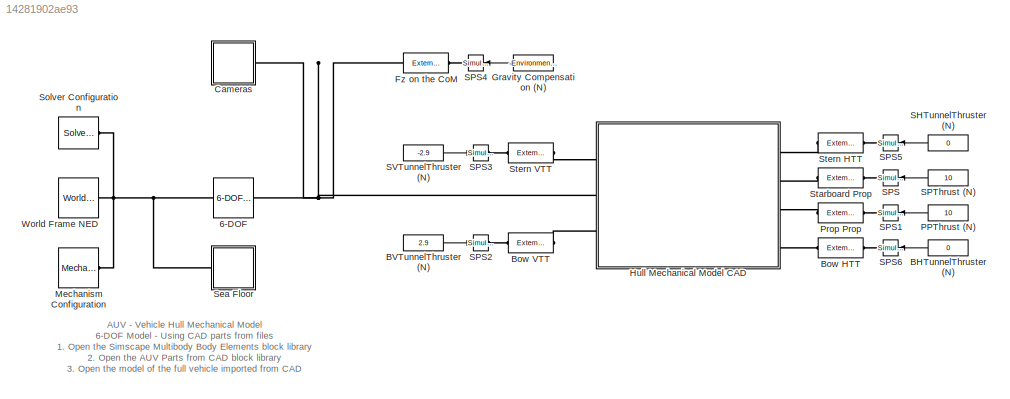
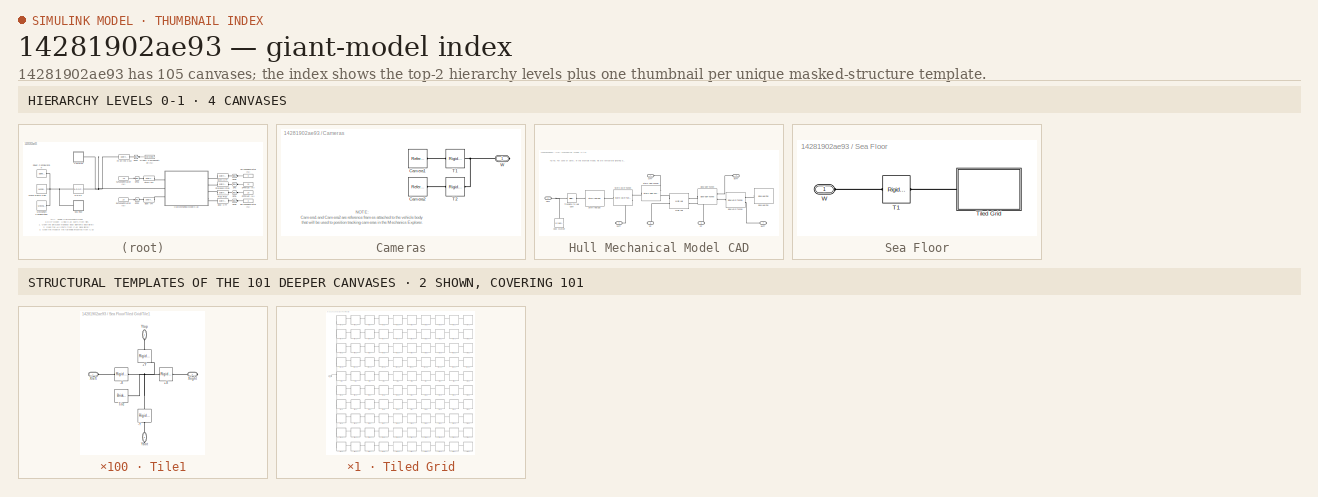
[diagram: thumbnail index - top-2 hierarchy levels (4 canvases) + 2 structural-template representatives of the remaining 101 canvases]
MODEL slx_14281902ae93
KIND model
CONFIG AbsTol = auto
CONFIG EnableMultiTasking = on
CONFIG FixedStep = auto
CONFIG MaxStep = 0.01
CONFIG MinStep = auto
CONFIG PreLoadFcn = AUV_VehicleParameters;
CONFIG RelTol = 1e-3
CONFIG SampleTimeConstraint = Unconstrained
CONFIG Solver = ode23t
CONFIG SolverName = ode23t
CONFIG StartTime = 0.0
CONFIG StopTime = 15
BLOCK [Reference] 6-DOF  REF=sm_lib/Joints/6-DOF Joint
  Ports = [0, 0, 0, 0, 0, 1, 1]
  SourceBlock = sm_lib/Joints/6-DOF Joint
  SourceProductBaseCode = MS
  SourceType = 6-DOF Joint
BLOCK [Constant] BHTunnelThruster (N)
  Value = 0
BLOCK [Constant] BVTunnelThruster (N)
  Value = 2.9
BLOCK [Reference] Bow HTT  REF=sm_lib/Forces and
Torques/External Force
and Torque
  Ports = [0, 0, 0, 0, 0, 1, 1]
  SourceBlock = sm_lib/Forces and\nTorques/External Force\nand Torque
  SourceProductBaseCode = MS
  SourceType = External Force\nand Torque
BLOCK [Reference] Bow VTT  REF=sm_lib/Forces and
Torques/External Force
and Torque
  Ports = [0, 0, 0, 0, 0, 1, 1]
  SourceBlock = sm_lib/Forces and\nTorques/External Force\nand Torque
  SourceProductBaseCode = MS
  SourceType = External Force\nand Torque
BLOCK [SubSystem] Cameras
  Ports = [0, 0, 0, 0, 0, 0, 1]
  RequestExecContextInheritance = off
BLOCK [Reference] Cameras/Camera1  REF=sm_lib/Frames and
Transforms/Reference
Frame
  Ports = [0, 0, 0, 0, 0, 0, 1]
  SourceBlock = sm_lib/Frames and\nTransforms/Reference\nFrame
  SourceProductBaseCode = MS
  SourceType = Reference\nFrame
BLOCK [Reference] Cameras/Camera2  REF=sm_lib/Frames and
Transforms/Reference
Frame
  Ports = [0, 0, 0, 0, 0, 0, 1]
  SourceBlock = sm_lib/Frames and\nTransforms/Reference\nFrame
  SourceProductBaseCode = MS
  SourceType = Reference\nFrame
BLOCK [Reference] Cameras/T1  REF=sm_lib/Frames and
Transforms/Rigid
Transform
  Ports = [0, 0, 0, 0, 0, 1, 1]
  SourceBlock = sm_lib/Frames and\nTransforms/Rigid\nTransform
  SourceProductBaseCode = MS
  SourceType = Rigid\nTransform
BLOCK [Reference] Cameras/T2  REF=sm_lib/Frames and
Transforms/Rigid
Transform
  Ports = [0, 0, 0, 0, 0, 1, 1]
  SourceBlock = sm_lib/Frames and\nTransforms/Rigid\nTransform
  SourceProductBaseCode = MS
  SourceType = Rigid\nTransform
BLOCK [PMIOPort] Cameras/W
  Side = Right
BLOCK [Reference] Fz on the CoM  REF=sm_lib/Forces and
Torques/External Force
and Torque
  Ports = [0, 0, 0, 0, 0, 1, 1]
  SourceBlock = sm_lib/Forces and\nTorques/External Force\nand Torque
  SourceProductBaseCode = MS
  SourceType = External Force\nand Torque
BLOCK [Constant] Gravity Compensation (N)
  Value = -Environment.gravity*Vehicle.Body.HullCAD.mass
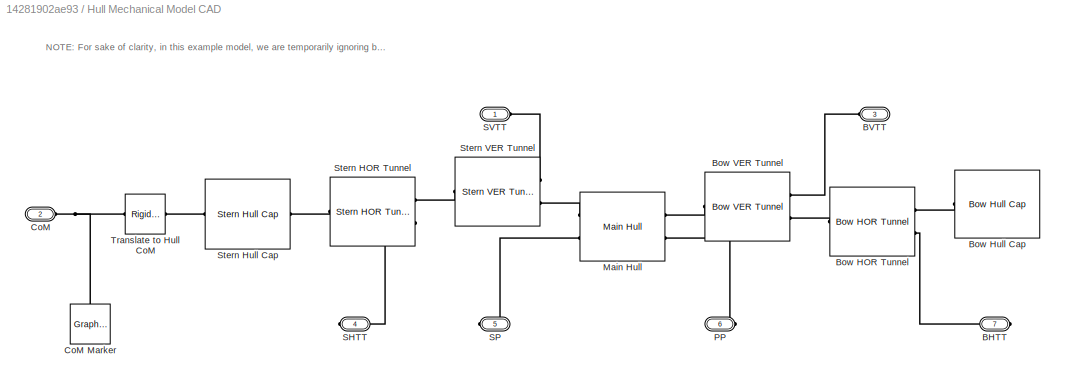
BLOCK [SubSystem] Hull Mechanical Model CAD
  Ports = [0, 0, 0, 0, 0, 3, 4]
  RequestExecContextInheritance = off
BLOCK [PMIOPort] Hull Mechanical Model CAD/BHTT
  Port = 7
  Side = Right
BLOCK [PMIOPort] Hull Mechanical Model CAD/BVTT
  Port = 3
  Side = Left
BLOCK [Reference] Hull Mechanical Model CAD/Bow HOR Tunnel  REF=AUVCADBodyParts_Lib/Bow HOR Tunnel
  Ports = [0, 0, 0, 0, 0, 2, 1]
  SourceBlock = AUVCADBodyParts_Lib/Bow HOR Tunnel
  SourceType = Bow Horizontal Tunnel
BLOCK [Reference] Hull Mechanical Model CAD/Bow Hull Cap  REF=AUVCADBodyParts_Lib/Bow Hull Cap
  Ports = [0, 0, 0, 0, 0, 1, 1]
  SourceBlock = AUVCADBodyParts_Lib/Bow Hull Cap
  SourceType = Bow Hull Cap
BLOCK [Reference] Hull Mechanical Model CAD/Bow VER Tunnel  REF=AUVCADBodyParts_Lib/Bow VER Tunnel
  Ports = [0, 0, 0, 0, 0, 2, 1]
  SourceBlock = AUVCADBodyParts_Lib/Bow VER Tunnel
  SourceType = Bow Vertical Tunnel
BLOCK [PMIOPort] Hull Mechanical Model CAD/CoM
  Port = 2
  Side = Left
BLOCK [Reference] Hull Mechanical Model CAD/CoM Marker  REF=sm_lib/Body Elements/Graphic
  NameLocation = right
  Ports = [0, 0, 0, 0, 0, 0, 1]
  SourceBlock = sm_lib/Body Elements/Graphic
  SourceProductBaseCode = MS
  SourceType = Graphic
BLOCK [Reference] Hull Mechanical Model CAD/Main Hull  REF=AUVCADBodyParts_Lib/Main Hull
  Ports = [0, 0, 0, 0, 0, 2, 2]
  SourceBlock = AUVCADBodyParts_Lib/Main Hull
  SourceType = Main Hull
BLOCK [PMIOPort] Hull Mechanical Model CAD/PP
  Port = 6
  Side = Right
BLOCK [PMIOPort] Hull Mechanical Model CAD/SHTT
  Port = 4
  Side = Right
BLOCK [PMIOPort] Hull Mechanical Model CAD/SP
  Port = 5
  Side = Right
BLOCK [PMIOPort] Hull Mechanical Model CAD/SVTT
  Side = Left
BLOCK [Reference] Hull Mechanical Model CAD/Stern HOR Tunnel  REF=AUVCADBodyParts_Lib/Stern HOR Tunnel
  Ports = [0, 0, 0, 0, 0, 2, 1]
  SourceBlock = AUVCADBodyParts_Lib/Stern HOR Tunnel
  SourceType = Stern Horizontal Tunnel
BLOCK [Reference] Hull Mechanical Model CAD/Stern Hull Cap  REF=AUVCADBodyParts_Lib/Stern Hull Cap
  Ports = [0, 0, 0, 0, 0, 1, 1]
  SourceBlock = AUVCADBodyParts_Lib/Stern Hull Cap
  SourceType = Stern Hull Cap
BLOCK [Reference] Hull Mechanical Model CAD/Stern VER Tunnel  REF=AUVCADBodyParts_Lib/Stern VER Tunnel
  Ports = [0, 0, 0, 0, 0, 2, 1]
  SourceBlock = AUVCADBodyParts_Lib/Stern VER Tunnel
  SourceType = Stern Vertical Tunnel
BLOCK [Reference] Hull Mechanical Model CAD/Translate to Hull CoM  REF=sm_lib/Frames and
Transforms/Rigid
Transform
  Ports = [0, 0, 0, 0, 0, 1, 1]
  SourceBlock = sm_lib/Frames and\nTransforms/Rigid\nTransform
  SourceProductBaseCode = MS
  SourceType = Rigid\nTransform
BLOCK [Reference] Mechanism Configuration  REF=sm_lib/Utilities/Mechanism
Configuration
  Ports = [0, 0, 0, 0, 0, 0, 1]
  SourceBlock = sm_lib/Utilities/Mechanism\nConfiguration
  SourceProductBaseCode = MS
  SourceType = Mechanism\nConfiguration
BLOCK [Constant] PPThrust (N)
  Value = 10
BLOCK [Reference] Prop Prop  REF=sm_lib/Forces and
Torques/External Force
and Torque
  Ports = [0, 0, 0, 0, 0, 1, 1]
  SourceBlock = sm_lib/Forces and\nTorques/External Force\nand Torque
  SourceProductBaseCode = MS
  SourceType = External Force\nand Torque
BLOCK [Constant] SHTunnelThruster (N)
  Value = 0
BLOCK [Reference] SPS  REF=nesl_utility/Simulink-PS
Converter
  Ports = [1, 0, 0, 0, 0, 0, 1]
  SourceBlock = nesl_utility/Simulink-PS\nConverter
  SourceProductBaseCode = SS
  SourceType = Simulink-PS\nConverter
BLOCK [Reference] SPS1  REF=nesl_utility/Simulink-PS
Converter
  Ports = [1, 0, 0, 0, 0, 0, 1]
  SourceBlock = nesl_utility/Simulink-PS\nConverter
  SourceProductBaseCode = SS
  SourceType = Simulink-PS\nConverter
BLOCK [Reference] SPS2  REF=nesl_utility/Simulink-PS
Converter
  Ports = [1, 0, 0, 0, 0, 0, 1]
  SourceBlock = nesl_utility/Simulink-PS\nConverter
  SourceProductBaseCode = SS
  SourceType = Simulink-PS\nConverter
BLOCK [Reference] SPS3  REF=nesl_utility/Simulink-PS
Converter
  Ports = [1, 0, 0, 0, 0, 0, 1]
  SourceBlock = nesl_utility/Simulink-PS\nConverter
  SourceProductBaseCode = SS
  SourceType = Simulink-PS\nConverter
BLOCK [Reference] SPS4  REF=nesl_utility/Simulink-PS
Converter
  Ports = [1, 0, 0, 0, 0, 0, 1]
  SourceBlock = nesl_utility/Simulink-PS\nConverter
  SourceProductBaseCode = SS
  SourceType = Simulink-PS\nConverter
BLOCK [Reference] SPS5  REF=nesl_utility/Simulink-PS
Converter
  Ports = [1, 0, 0, 0, 0, 0, 1]
  SourceBlock = nesl_utility/Simulink-PS\nConverter
  SourceProductBaseCode = SS
  SourceType = Simulink-PS\nConverter
BLOCK [Reference] SPS6  REF=nesl_utility/Simulink-PS
Converter
  Ports = [1, 0, 0, 0, 0, 0, 1]
  SourceBlock = nesl_utility/Simulink-PS\nConverter
  SourceProductBaseCode = SS
  SourceType = Simulink-PS\nConverter
BLOCK [Constant] SPThrust (N)
  Value = 10
BLOCK [Constant] SVTunnelThruster (N)
  Value = -2.9
BLOCK [SubSystem] Sea Floor
  Ports = [0, 0, 0, 0, 0, 1]
  RequestExecContextInheritance = off
BLOCK [Reference] Sea Floor/T1  REF=sm_lib/Frames and
Transforms/Rigid
Transform
  Ports = [0, 0, 0, 0, 0, 1, 1]
  SourceBlock = sm_lib/Frames and\nTransforms/Rigid\nTransform
  SourceProductBaseCode = MS
  SourceType = Rigid\nTransform
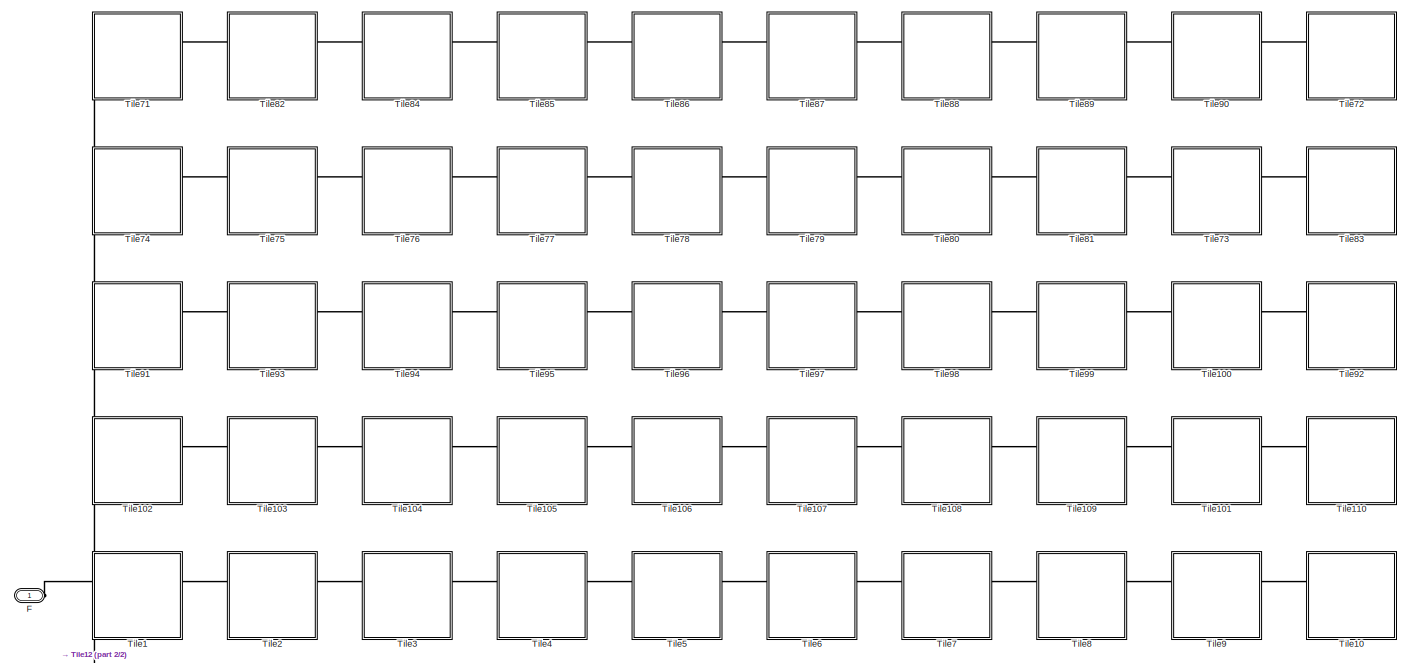
[diagram: Sea Floor/Tiled Grid - part 1/2, full width, top band]
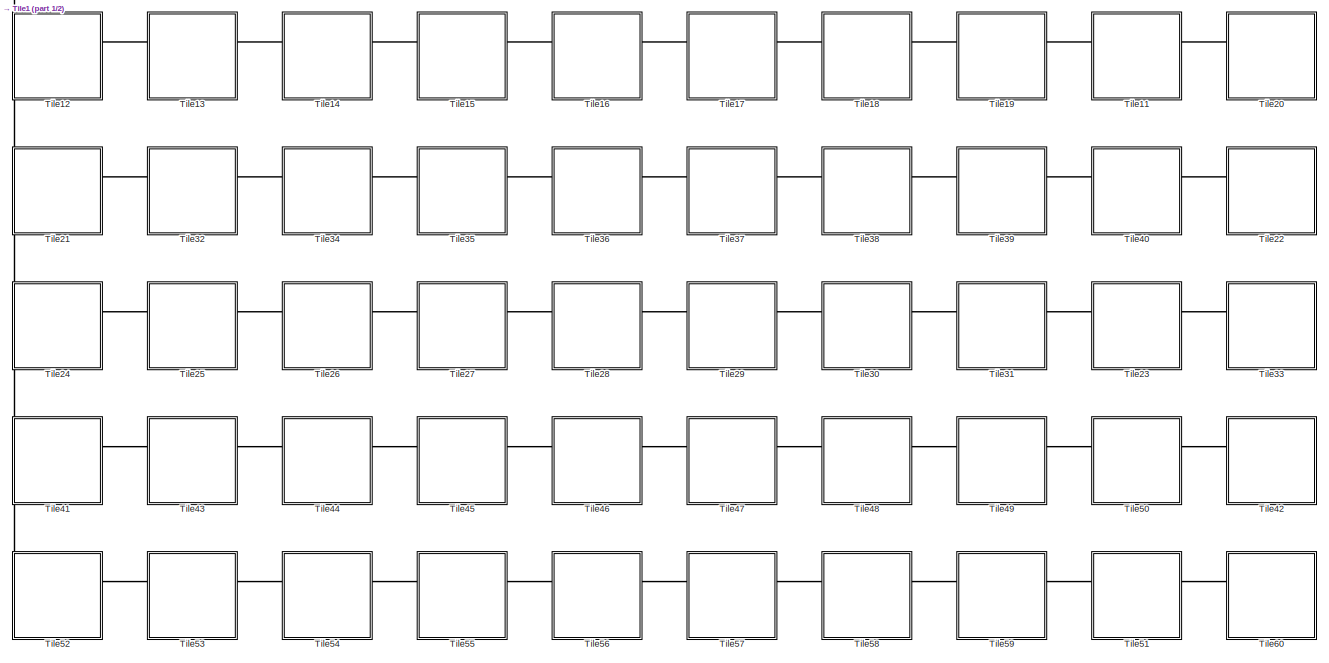
[diagram: Sea Floor/Tiled Grid - part 2/2, full width, bottom band]
BLOCK [SubSystem] Sea Floor/Tiled Grid
  Ports = [0, 0, 0, 0, 0, 1]
  RequestExecContextInheritance = off
BLOCK [PMIOPort] Sea Floor/Tiled Grid/F
  Side = Left
BLOCK [SubSystem] Sea Floor/Tiled Grid/Tile1
  PortSchema = {"entries":[{"content":{"sides":[{"content":{"connectorIds":["LConn1"]},"type":"ConnectorPlacement.EquallySpacedRectSide","uuid":"a971723f-ea37-4e9b-910b-501b94fb0ba2"},{"content":{"connectorIds":["RConn1"],"side":"RIGHT"},"type":"ConnectorPlacement.EquallySpacedRectSide","uuid":"e50175c1-005c-4b0b-bced-b882197eaab2"},{"content":{"connectorIds":["LConn2"],"side":"TOP"},"type":"ConnectorPlacement.E...<+407ch>  <repeated x100 — deduplicated; at blocks: Tile1, Tile10, Tile100, Tile101, Tile102, Tile103, Tile104, Tile105, Tile106, Tile107, Tile108, Tile109, Tile11, Tile110, Tile12, Tile13, +84 more>
  Ports = [0, 0, 0, 0, 0, 2, 2]
  RequestExecContextInheritance = off
BLOCK [Reference] Sea Floor/Tiled Grid/Tile1/+X  REF=sm_lib/Frames and
Transforms/Rigid
Transform
  Ports = [0, 0, 0, 0, 0, 1, 1]
  SourceBlock = sm_lib/Frames and\nTransforms/Rigid\nTransform
  SourceProductBaseCode = MS
  SourceType = Rigid\nTransform
BLOCK [Reference] Sea Floor/Tiled Grid/Tile1/+Y  REF=sm_lib/Frames and
Transforms/Rigid
Transform
  NameLocation = right
  Ports = [0, 0, 0, 0, 0, 1, 1]
  SourceBlock = sm_lib/Frames and\nTransforms/Rigid\nTransform
  SourceProductBaseCode = MS
  SourceType = Rigid\nTransform
BLOCK [Reference] Sea Floor/Tiled Grid/Tile1/-X  REF=sm_lib/Frames and
Transforms/Rigid
Transform
  Ports = [0, 0, 0, 0, 0, 1, 1]
  SourceBlock = sm_lib/Frames and\nTransforms/Rigid\nTransform
  SourceProductBaseCode = MS
  SourceType = Rigid\nTransform
BLOCK [Reference] Sea Floor/Tiled Grid/Tile1/-Y  REF=sm_lib/Frames and
Transforms/Rigid
Transform
  NameLocation = right
  Ports = [0, 0, 0, 0, 0, 1, 1]
  SourceBlock = sm_lib/Frames and\nTransforms/Rigid\nTransform
  SourceProductBaseCode = MS
  SourceType = Rigid\nTransform
BLOCK [Reference] Sea Floor/Tiled Grid/Tile1/Tile  REF=sm_lib/Body Elements/Brick Solid
  NameLocation = left
  Ports = [0, 0, 0, 0, 0, 0, 1]
  SourceBlock = sm_lib/Body Elements/Brick Solid
  SourceProductBaseCode = MS
  SourceType = Brick Solid
BLOCK [PMIOPort] Sea Floor/Tiled Grid/Tile1/Xleft
  Side = Left
BLOCK [PMIOPort] Sea Floor/Tiled Grid/Tile1/Xright
  Port = 3
  Side = Right
BLOCK [PMIOPort] Sea Floor/Tiled Grid/Tile1/Ybot
  NameLocation = left
  Port = 4
  Side = Right
BLOCK [PMIOPort] Sea Floor/Tiled Grid/Tile1/Ytop
  NameLocation = right
  Port = 2
  Side = Left
BLOCK [SubSystem] Sea Floor/Tiled Grid/Tile10
  Ports = [0, 0, 0, 0, 0, 2, 2]
  RequestExecContextInheritance = off
BLOCK [Reference] Sea Floor/Tiled Grid/Tile10/+X  REF=sm_lib/Frames and
Transforms/Rigid
Transform
  Ports = [0, 0, 0, 0, 0, 1, 1]
  SourceBlock = sm_lib/Frames and\nTransforms/Rigid\nTransform
  SourceProductBaseCode = MS
  SourceType = Rigid\nTransform
BLOCK [Reference] Sea Floor/Tiled Grid/Tile10/+Y  REF=sm_lib/Frames and
Transforms/Rigid
Transform
  NameLocation = right
  Ports = [0, 0, 0, 0, 0, 1, 1]
  SourceBlock = sm_lib/Frames and\nTransforms/Rigid\nTransform
  SourceProductBaseCode = MS
  SourceType = Rigid\nTransform
BLOCK [Reference] Sea Floor/Tiled Grid/Tile10/-X  REF=sm_lib/Frames and
Transforms/Rigid
Transform
  Ports = [0, 0, 0, 0, 0, 1, 1]
  SourceBlock = sm_lib/Frames and\nTransforms/Rigid\nTransform
  SourceProductBaseCode = MS
  SourceType = Rigid\nTransform
BLOCK [Reference] Sea Floor/Tiled Grid/Tile10/-Y  REF=sm_lib/Frames and
Transforms/Rigid
Transform
  NameLocation = right
  Ports = [0, 0, 0, 0, 0, 1, 1]
  SourceBlock = sm_lib/Frames and\nTransforms/Rigid\nTransform
  SourceProductBaseCode = MS
  SourceType = Rigid\nTransform
BLOCK [Reference] Sea Floor/Tiled Grid/Tile10/Tile  REF=sm_lib/Body Elements/Brick Solid
  NameLocation = left
  Ports = [0, 0, 0, 0, 0, 0, 1]
  SourceBlock = sm_lib/Body Elements/Brick Solid
  SourceProductBaseCode = MS
  SourceType = Brick Solid
BLOCK [PMIOPort] Sea Floor/Tiled Grid/Tile10/Xleft
  Side = Left
BLOCK [PMIOPort] Sea Floor/Tiled Grid/Tile10/Xright
  Port = 3
  Side = Right
BLOCK [PMIOPort] Sea Floor/Tiled Grid/Tile10/Ybot
  NameLocation = left
  Port = 4
  Side = Right
BLOCK [PMIOPort] Sea Floor/Tiled Grid/Tile10/Ytop
  NameLocation = right
  Port = 2
  Side = Left
BLOCK [SubSystem] Sea Floor/Tiled Grid/Tile100
  Ports = [0, 0, 0, 0, 0, 2, 2]
  RequestExecContextInheritance = off
BLOCK [Reference] Sea Floor/Tiled Grid/Tile100/+X  REF=sm_lib/Frames and
Transforms/Rigid
Transform
  Ports = [0, 0, 0, 0, 0, 1, 1]
  SourceBlock = sm_lib/Frames and\nTransforms/Rigid\nTransform
  SourceProductBaseCode = MS
  SourceType = Rigid\nTransform
BLOCK [Reference] Sea Floor/Tiled Grid/Tile100/+Y  REF=sm_lib/Frames and
Transforms/Rigid
Transform
  NameLocation = right
  Ports = [0, 0, 0, 0, 0, 1, 1]
  SourceBlock = sm_lib/Frames and\nTransforms/Rigid\nTransform
  SourceProductBaseCode = MS
  SourceType = Rigid\nTransform
BLOCK [Reference] Sea Floor/Tiled Grid/Tile100/-X  REF=sm_lib/Frames and
Transforms/Rigid
Transform
  Ports = [0, 0, 0, 0, 0, 1, 1]
  SourceBlock = sm_lib/Frames and\nTransforms/Rigid\nTransform
  SourceProductBaseCode = MS
  SourceType = Rigid\nTransform
BLOCK [Reference] Sea Floor/Tiled Grid/Tile100/-Y  REF=sm_lib/Frames and
Transforms/Rigid
Transform
  NameLocation = right
  Ports = [0, 0, 0, 0, 0, 1, 1]
  SourceBlock = sm_lib/Frames and\nTransforms/Rigid\nTransform
  SourceProductBaseCode = MS
  SourceType = Rigid\nTransform
BLOCK [Reference] Sea Floor/Tiled Grid/Tile100/Tile  REF=sm_lib/Body Elements/Brick Solid
  NameLocation = left
  Ports = [0, 0, 0, 0, 0, 0, 1]
  SourceBlock = sm_lib/Body Elements/Brick Solid
  SourceProductBaseCode = MS
  SourceType = Brick Solid
BLOCK [PMIOPort] Sea Floor/Tiled Grid/Tile100/Xleft
  Side = Left
BLOCK [PMIOPort] Sea Floor/Tiled Grid/Tile100/Xright
  Port = 3
  Side = Right
BLOCK [PMIOPort] Sea Floor/Tiled Grid/Tile100/Ybot
  NameLocation = left
  Port = 4
  Side = Right
BLOCK [PMIOPort] Sea Floor/Tiled Grid/Tile100/Ytop
  NameLocation = right
  Port = 2
  Side = Left
BLOCK [SubSystem] Sea Floor/Tiled Grid/Tile101
  Ports = [0, 0, 0, 0, 0, 2, 2]
  RequestExecContextInheritance = off
BLOCK [Reference] Sea Floor/Tiled Grid/Tile101/+X  REF=sm_lib/Frames and
Transforms/Rigid
Transform
  Ports = [0, 0, 0, 0, 0, 1, 1]
  SourceBlock = sm_lib/Frames and\nTransforms/Rigid\nTransform
  SourceProductBaseCode = MS
  SourceType = Rigid\nTransform
BLOCK [Reference] Sea Floor/Tiled Grid/Tile101/+Y  REF=sm_lib/Frames and
Transforms/Rigid
Transform
  NameLocation = right
  Ports = [0, 0, 0, 0, 0, 1, 1]
  SourceBlock = sm_lib/Frames and\nTransforms/Rigid\nTransform
  SourceProductBaseCode = MS
  SourceType = Rigid\nTransform
BLOCK [Reference] Sea Floor/Tiled Grid/Tile101/-X  REF=sm_lib/Frames and
Transforms/Rigid
Transform
  Ports = [0, 0, 0, 0, 0, 1, 1]
  SourceBlock = sm_lib/Frames and\nTransforms/Rigid\nTransform
  SourceProductBaseCode = MS
  SourceType = Rigid\nTransform
BLOCK [Reference] Sea Floor/Tiled Grid/Tile101/-Y  REF=sm_lib/Frames and
Transforms/Rigid
Transform
  NameLocation = right
  Ports = [0, 0, 0, 0, 0, 1, 1]
  SourceBlock = sm_lib/Frames and\nTransforms/Rigid\nTransform
  SourceProductBaseCode = MS
  SourceType = Rigid\nTransform
BLOCK [Reference] Sea Floor/Tiled Grid/Tile101/Tile  REF=sm_lib/Body Elements/Brick Solid
  NameLocation = left
  Ports = [0, 0, 0, 0, 0, 0, 1]
  SourceBlock = sm_lib/Body Elements/Brick Solid
  SourceProductBaseCode = MS
  SourceType = Brick Solid
BLOCK [PMIOPort] Sea Floor/Tiled Grid/Tile101/Xleft
  Side = Left
BLOCK [PMIOPort] Sea Floor/Tiled Grid/Tile101/Xright
  Port = 3
  Side = Right
BLOCK [PMIOPort] Sea Floor/Tiled Grid/Tile101/Ybot
  NameLocation = left
  Port = 4
  Side = Right
BLOCK [PMIOPort] Sea Floor/Tiled Grid/Tile101/Ytop
  NameLocation = right
  Port = 2
  Side = Left
BLOCK [SubSystem] Sea Floor/Tiled Grid/Tile102
  Ports = [0, 0, 0, 0, 0, 2, 2]
  RequestExecContextInheritance = off
BLOCK [Reference] Sea Floor/Tiled Grid/Tile102/+X  REF=sm_lib/Frames and
Transforms/Rigid
Transform
  Ports = [0, 0, 0, 0, 0, 1, 1]
  SourceBlock = sm_lib/Frames and\nTransforms/Rigid\nTransform
  SourceProductBaseCode = MS
  SourceType = Rigid\nTransform
BLOCK [Reference] Sea Floor/Tiled Grid/Tile102/+Y  REF=sm_lib/Frames and
Transforms/Rigid
Transform
  NameLocation = right
  Ports = [0, 0, 0, 0, 0, 1, 1]
  SourceBlock = sm_lib/Frames and\nTransforms/Rigid\nTransform
  SourceProductBaseCode = MS
  SourceType = Rigid\nTransform
BLOCK [Reference] Sea Floor/Tiled Grid/Tile102/-X  REF=sm_lib/Frames and
Transforms/Rigid
Transform
  Ports = [0, 0, 0, 0, 0, 1, 1]
  SourceBlock = sm_lib/Frames and\nTransforms/Rigid\nTransform
  SourceProductBaseCode = MS
  SourceType = Rigid\nTransform
BLOCK [Reference] Sea Floor/Tiled Grid/Tile102/-Y  REF=sm_lib/Frames and
Transforms/Rigid
Transform
  NameLocation = right
  Ports = [0, 0, 0, 0, 0, 1, 1]
  SourceBlock = sm_lib/Frames and\nTransforms/Rigid\nTransform
  SourceProductBaseCode = MS
  SourceType = Rigid\nTransform
BLOCK [Reference] Sea Floor/Tiled Grid/Tile102/Tile  REF=sm_lib/Body Elements/Brick Solid
  NameLocation = left
  Ports = [0, 0, 0, 0, 0, 0, 1]
  SourceBlock = sm_lib/Body Elements/Brick Solid
  SourceProductBaseCode = MS
  SourceType = Brick Solid
BLOCK [PMIOPort] Sea Floor/Tiled Grid/Tile102/Xleft
  Side = Left
BLOCK [PMIOPort] Sea Floor/Tiled Grid/Tile102/Xright
  Port = 3
  Side = Right
BLOCK [PMIOPort] Sea Floor/Tiled Grid/Tile102/Ybot
  NameLocation = left
  Port = 4
  Side = Right
BLOCK [PMIOPort] Sea Floor/Tiled Grid/Tile102/Ytop
  NameLocation = right
  Port = 2
  Side = Left
BLOCK [SubSystem] Sea Floor/Tiled Grid/Tile103
  Ports = [0, 0, 0, 0, 0, 2, 2]
  RequestExecContextInheritance = off
BLOCK [Reference] Sea Floor/Tiled Grid/Tile103/+X  REF=sm_lib/Frames and
Transforms/Rigid
Transform
  Ports = [0, 0, 0, 0, 0, 1, 1]
  SourceBlock = sm_lib/Frames and\nTransforms/Rigid\nTransform
  SourceProductBaseCode = MS
  SourceType = Rigid\nTransform
BLOCK [Reference] Sea Floor/Tiled Grid/Tile103/+Y  REF=sm_lib/Frames and
Transforms/Rigid
Transform
  NameLocation = right
  Ports = [0, 0, 0, 0, 0, 1, 1]
  SourceBlock = sm_lib/Frames and\nTransforms/Rigid\nTransform
  SourceProductBaseCode = MS
  SourceType = Rigid\nTransform
BLOCK [Reference] Sea Floor/Tiled Grid/Tile103/-X  REF=sm_lib/Frames and
Transforms/Rigid
Transform
  Ports = [0, 0, 0, 0, 0, 1, 1]
  SourceBlock = sm_lib/Frames and\nTransforms/Rigid\nTransform
  SourceProductBaseCode = MS
  SourceType = Rigid\nTransform
BLOCK [Reference] Sea Floor/Tiled Grid/Tile103/-Y  REF=sm_lib/Frames and
Transforms/Rigid
Transform
  NameLocation = right
  Ports = [0, 0, 0, 0, 0, 1, 1]
  SourceBlock = sm_lib/Frames and\nTransforms/Rigid\nTransform
  SourceProductBaseCode = MS
  SourceType = Rigid\nTransform
BLOCK [Reference] Sea Floor/Tiled Grid/Tile103/Tile  REF=sm_lib/Body Elements/Brick Solid
  NameLocation = left
  Ports = [0, 0, 0, 0, 0, 0, 1]
  SourceBlock = sm_lib/Body Elements/Brick Solid
  SourceProductBaseCode = MS
  SourceType = Brick Solid
BLOCK [PMIOPort] Sea Floor/Tiled Grid/Tile103/Xleft
  Side = Left
BLOCK [PMIOPort] Sea Floor/Tiled Grid/Tile103/Xright
  Port = 3
  Side = Right
BLOCK [PMIOPort] Sea Floor/Tiled Grid/Tile103/Ybot
  NameLocation = left
  Port = 4
  Side = Right
BLOCK [PMIOPort] Sea Floor/Tiled Grid/Tile103/Ytop
  NameLocation = right
  Port = 2
  Side = Left
BLOCK [SubSystem] Sea Floor/Tiled Grid/Tile104
  Ports = [0, 0, 0, 0, 0, 2, 2]
  RequestExecContextInheritance = off
BLOCK [Reference] Sea Floor/Tiled Grid/Tile104/+X  REF=sm_lib/Frames and
Transforms/Rigid
Transform
  Ports = [0, 0, 0, 0, 0, 1, 1]
  SourceBlock = sm_lib/Frames and\nTransforms/Rigid\nTransform
  SourceProductBaseCode = MS
  SourceType = Rigid\nTransform
BLOCK [Reference] Sea Floor/Tiled Grid/Tile104/+Y  REF=sm_lib/Frames and
Transforms/Rigid
Transform
  NameLocation = right
  Ports = [0, 0, 0, 0, 0, 1, 1]
  SourceBlock = sm_lib/Frames and\nTransforms/Rigid\nTransform
  SourceProductBaseCode = MS
  SourceType = Rigid\nTransform
BLOCK [Reference] Sea Floor/Tiled Grid/Tile104/-X  REF=sm_lib/Frames and
Transforms/Rigid
Transform
  Ports = [0, 0, 0, 0, 0, 1, 1]
  SourceBlock = sm_lib/Frames and\nTransforms/Rigid\nTransform
  SourceProductBaseCode = MS
  SourceType = Rigid\nTransform
BLOCK [Reference] Sea Floor/Tiled Grid/Tile104/-Y  REF=sm_lib/Frames and
Transforms/Rigid
Transform
  NameLocation = right
  Ports = [0, 0, 0, 0, 0, 1, 1]
  SourceBlock = sm_lib/Frames and\nTransforms/Rigid\nTransform
  SourceProductBaseCode = MS
  SourceType = Rigid\nTransform
BLOCK [Reference] Sea Floor/Tiled Grid/Tile104/Tile  REF=sm_lib/Body Elements/Brick Solid
  NameLocation = left
  Ports = [0, 0, 0, 0, 0, 0, 1]
  SourceBlock = sm_lib/Body Elements/Brick Solid
  SourceProductBaseCode = MS
  SourceType = Brick Solid
BLOCK [PMIOPort] Sea Floor/Tiled Grid/Tile104/Xleft
  Side = Left
BLOCK [PMIOPort] Sea Floor/Tiled Grid/Tile104/Xright
  Port = 3
  Side = Right
BLOCK [PMIOPort] Sea Floor/Tiled Grid/Tile104/Ybot
  NameLocation = left
  Port = 4
  Side = Right
BLOCK [PMIOPort] Sea Floor/Tiled Grid/Tile104/Ytop
  NameLocation = right
  Port = 2
  Side = Left
BLOCK [SubSystem] Sea Floor/Tiled Grid/Tile105
  Ports = [0, 0, 0, 0, 0, 2, 2]
  RequestExecContextInheritance = off
BLOCK [Reference] Sea Floor/Tiled Grid/Tile105/+X  REF=sm_lib/Frames and
Transforms/Rigid
Transform
  Ports = [0, 0, 0, 0, 0, 1, 1]
  SourceBlock = sm_lib/Frames and\nTransforms/Rigid\nTransform
  SourceProductBaseCode = MS
  SourceType = Rigid\nTransform
BLOCK [Reference] Sea Floor/Tiled Grid/Tile105/+Y  REF=sm_lib/Frames and
Transforms/Rigid
Transform
  NameLocation = right
  Ports = [0, 0, 0, 0, 0, 1, 1]
  SourceBlock = sm_lib/Frames and\nTransforms/Rigid\nTransform
  SourceProductBaseCode = MS
  SourceType = Rigid\nTransform
BLOCK [Reference] Sea Floor/Tiled Grid/Tile105/-X  REF=sm_lib/Frames and
Transforms/Rigid
Transform
  Ports = [0, 0, 0, 0, 0, 1, 1]
  SourceBlock = sm_lib/Frames and\nTransforms/Rigid\nTransform
  SourceProductBaseCode = MS
  SourceType = Rigid\nTransform
BLOCK [Reference] Sea Floor/Tiled Grid/Tile105/-Y  REF=sm_lib/Frames and
Transforms/Rigid
Transform
  NameLocation = right
  Ports = [0, 0, 0, 0, 0, 1, 1]
  SourceBlock = sm_lib/Frames and\nTransforms/Rigid\nTransform
  SourceProductBaseCode = MS
  SourceType = Rigid\nTransform
BLOCK [Reference] Sea Floor/Tiled Grid/Tile105/Tile  REF=sm_lib/Body Elements/Brick Solid
  NameLocation = left
  Ports = [0, 0, 0, 0, 0, 0, 1]
  SourceBlock = sm_lib/Body Elements/Brick Solid
  SourceProductBaseCode = MS
  SourceType = Brick Solid
BLOCK [PMIOPort] Sea Floor/Tiled Grid/Tile105/Xleft
  Side = Left
BLOCK [PMIOPort] Sea Floor/Tiled Grid/Tile105/Xright
  Port = 3
  Side = Right
BLOCK [PMIOPort] Sea Floor/Tiled Grid/Tile105/Ybot
  NameLocation = left
  Port = 4
  Side = Right
BLOCK [PMIOPort] Sea Floor/Tiled Grid/Tile105/Ytop
  NameLocation = right
  Port = 2
  Side = Left
BLOCK [SubSystem] Sea Floor/Tiled Grid/Tile106
  Ports = [0, 0, 0, 0, 0, 2, 2]
  RequestExecContextInheritance = off
BLOCK [Reference] Sea Floor/Tiled Grid/Tile106/+X  REF=sm_lib/Frames and
Transforms/Rigid
Transform
  Ports = [0, 0, 0, 0, 0, 1, 1]
  SourceBlock = sm_lib/Frames and\nTransforms/Rigid\nTransform
  SourceProductBaseCode = MS
  SourceType = Rigid\nTransform
BLOCK [Reference] Sea Floor/Tiled Grid/Tile106/+Y  REF=sm_lib/Frames and
Transforms/Rigid
Transform
  NameLocation = right
  Ports = [0, 0, 0, 0, 0, 1, 1]
  SourceBlock = sm_lib/Frames and\nTransforms/Rigid\nTransform
  SourceProductBaseCode = MS
  SourceType = Rigid\nTransform
BLOCK [Reference] Sea Floor/Tiled Grid/Tile106/-X  REF=sm_lib/Frames and
Transforms/Rigid
Transform
  Ports = [0, 0, 0, 0, 0, 1, 1]
  SourceBlock = sm_lib/Frames and\nTransforms/Rigid\nTransform
  SourceProductBaseCode = MS
  SourceType = Rigid\nTransform
BLOCK [Reference] Sea Floor/Tiled Grid/Tile106/-Y  REF=sm_lib/Frames and
Transforms/Rigid
Transform
  NameLocation = right
  Ports = [0, 0, 0, 0, 0, 1, 1]
  SourceBlock = sm_lib/Frames and\nTransforms/Rigid\nTransform
  SourceProductBaseCode = MS
  SourceType = Rigid\nTransform
BLOCK [Reference] Sea Floor/Tiled Grid/Tile106/Tile  REF=sm_lib/Body Elements/Brick Solid
  NameLocation = left
  Ports = [0, 0, 0, 0, 0, 0, 1]
  SourceBlock = sm_lib/Body Elements/Brick Solid
  SourceProductBaseCode = MS
  SourceType = Brick Solid
BLOCK [PMIOPort] Sea Floor/Tiled Grid/Tile106/Xleft
  Side = Left
BLOCK [PMIOPort] Sea Floor/Tiled Grid/Tile106/Xright
  Port = 3
  Side = Right
BLOCK [PMIOPort] Sea Floor/Tiled Grid/Tile106/Ybot
  NameLocation = left
  Port = 4
  Side = Right
BLOCK [PMIOPort] Sea Floor/Tiled Grid/Tile106/Ytop
  NameLocation = right
  Port = 2
  Side = Left
BLOCK [SubSystem] Sea Floor/Tiled Grid/Tile107
  Ports = [0, 0, 0, 0, 0, 2, 2]
  RequestExecContextInheritance = off
BLOCK [Reference] Sea Floor/Tiled Grid/Tile107/+X  REF=sm_lib/Frames and
Transforms/Rigid
Transform
  Ports = [0, 0, 0, 0, 0, 1, 1]
  SourceBlock = sm_lib/Frames and\nTransforms/Rigid\nTransform
  SourceProductBaseCode = MS
  SourceType = Rigid\nTransform
BLOCK [Reference] Sea Floor/Tiled Grid/Tile107/+Y  REF=sm_lib/Frames and
Transforms/Rigid
Transform
  NameLocation = right
  Ports = [0, 0, 0, 0, 0, 1, 1]
  SourceBlock = sm_lib/Frames and\nTransforms/Rigid\nTransform
  SourceProductBaseCode = MS
  SourceType = Rigid\nTransform
BLOCK [Reference] Sea Floor/Tiled Grid/Tile107/-X  REF=sm_lib/Frames and
Transforms/Rigid
Transform
  Ports = [0, 0, 0, 0, 0, 1, 1]
  SourceBlock = sm_lib/Frames and\nTransforms/Rigid\nTransform
  SourceProductBaseCode = MS
  SourceType = Rigid\nTransform
BLOCK [Reference] Sea Floor/Tiled Grid/Tile107/-Y  REF=sm_lib/Frames and
Transforms/Rigid
Transform
  NameLocation = right
  Ports = [0, 0, 0, 0, 0, 1, 1]
  SourceBlock = sm_lib/Frames and\nTransforms/Rigid\nTransform
  SourceProductBaseCode = MS
  SourceType = Rigid\nTransform
BLOCK [Reference] Sea Floor/Tiled Grid/Tile107/Tile  REF=sm_lib/Body Elements/Brick Solid
  NameLocation = left
  Ports = [0, 0, 0, 0, 0, 0, 1]
  SourceBlock = sm_lib/Body Elements/Brick Solid
  SourceProductBaseCode = MS
  SourceType = Brick Solid
BLOCK [PMIOPort] Sea Floor/Tiled Grid/Tile107/Xleft
  Side = Left
BLOCK [PMIOPort] Sea Floor/Tiled Grid/Tile107/Xright
  Port = 3
  Side = Right
BLOCK [PMIOPort] Sea Floor/Tiled Grid/Tile107/Ybot
  NameLocation = left
  Port = 4
  Side = Right
BLOCK [PMIOPort] Sea Floor/Tiled Grid/Tile107/Ytop
  NameLocation = right
  Port = 2
  Side = Left
BLOCK [SubSystem] Sea Floor/Tiled Grid/Tile108
  Ports = [0, 0, 0, 0, 0, 2, 2]
  RequestExecContextInheritance = off
BLOCK [Reference] Sea Floor/Tiled Grid/Tile108/+X  REF=sm_lib/Frames and
Transforms/Rigid
Transform
  Ports = [0, 0, 0, 0, 0, 1, 1]
  SourceBlock = sm_lib/Frames and\nTransforms/Rigid\nTransform
  SourceProductBaseCode = MS
  SourceType = Rigid\nTransform
BLOCK [Reference] Sea Floor/Tiled Grid/Tile108/+Y  REF=sm_lib/Frames and
Transforms/Rigid
Transform
  NameLocation = right
  Ports = [0, 0, 0, 0, 0, 1, 1]
  SourceBlock = sm_lib/Frames and\nTransforms/Rigid\nTransform
  SourceProductBaseCode = MS
  SourceType = Rigid\nTransform
BLOCK [Reference] Sea Floor/Tiled Grid/Tile108/-X  REF=sm_lib/Frames and
Transforms/Rigid
Transform
  Ports = [0, 0, 0, 0, 0, 1, 1]
  SourceBlock = sm_lib/Frames and\nTransforms/Rigid\nTransform
  SourceProductBaseCode = MS
  SourceType = Rigid\nTransform
BLOCK [Reference] Sea Floor/Tiled Grid/Tile108/-Y  REF=sm_lib/Frames and
Transforms/Rigid
Transform
  NameLocation = right
  Ports = [0, 0, 0, 0, 0, 1, 1]
  SourceBlock = sm_lib/Frames and\nTransforms/Rigid\nTransform
  SourceProductBaseCode = MS
  SourceType = Rigid\nTransform
BLOCK [Reference] Sea Floor/Tiled Grid/Tile108/Tile  REF=sm_lib/Body Elements/Brick Solid
  NameLocation = left
  Ports = [0, 0, 0, 0, 0, 0, 1]
  SourceBlock = sm_lib/Body Elements/Brick Solid
  SourceProductBaseCode = MS
  SourceType = Brick Solid
BLOCK [PMIOPort] Sea Floor/Tiled Grid/Tile108/Xleft
  Side = Left
BLOCK [PMIOPort] Sea Floor/Tiled Grid/Tile108/Xright
  Port = 3
  Side = Right
BLOCK [PMIOPort] Sea Floor/Tiled Grid/Tile108/Ybot
  NameLocation = left
  Port = 4
  Side = Right
BLOCK [PMIOPort] Sea Floor/Tiled Grid/Tile108/Ytop
  NameLocation = right
  Port = 2
  Side = Left
BLOCK [SubSystem] Sea Floor/Tiled Grid/Tile109
  Ports = [0, 0, 0, 0, 0, 2, 2]
  RequestExecContextInheritance = off
BLOCK [Reference] Sea Floor/Tiled Grid/Tile109/+X  REF=sm_lib/Frames and
Transforms/Rigid
Transform
  Ports = [0, 0, 0, 0, 0, 1, 1]
  SourceBlock = sm_lib/Frames and\nTransforms/Rigid\nTransform
  SourceProductBaseCode = MS
  SourceType = Rigid\nTransform
BLOCK [Reference] Sea Floor/Tiled Grid/Tile109/+Y  REF=sm_lib/Frames and
Transforms/Rigid
Transform
  NameLocation = right
  Ports = [0, 0, 0, 0, 0, 1, 1]
  SourceBlock = sm_lib/Frames and\nTransforms/Rigid\nTransform
  SourceProductBaseCode = MS
  SourceType = Rigid\nTransform
BLOCK [Reference] Sea Floor/Tiled Grid/Tile109/-X  REF=sm_lib/Frames and
Transforms/Rigid
Transform
  Ports = [0, 0, 0, 0, 0, 1, 1]
  SourceBlock = sm_lib/Frames and\nTransforms/Rigid\nTransform
  SourceProductBaseCode = MS
  SourceType = Rigid\nTransform
BLOCK [Reference] Sea Floor/Tiled Grid/Tile109/-Y  REF=sm_lib/Frames and
Transforms/Rigid
Transform
  NameLocation = right
  Ports = [0, 0, 0, 0, 0, 1, 1]
  SourceBlock = sm_lib/Frames and\nTransforms/Rigid\nTransform
  SourceProductBaseCode = MS
  SourceType = Rigid\nTransform
BLOCK [Reference] Sea Floor/Tiled Grid/Tile109/Tile  REF=sm_lib/Body Elements/Brick Solid
  NameLocation = left
  Ports = [0, 0, 0, 0, 0, 0, 1]
  SourceBlock = sm_lib/Body Elements/Brick Solid
  SourceProductBaseCode = MS
  SourceType = Brick Solid
BLOCK [PMIOPort] Sea Floor/Tiled Grid/Tile109/Xleft
  Side = Left
BLOCK [PMIOPort] Sea Floor/Tiled Grid/Tile109/Xright
  Port = 3
  Side = Right
BLOCK [PMIOPort] Sea Floor/Tiled Grid/Tile109/Ybot
  NameLocation = left
  Port = 4
  Side = Right
BLOCK [PMIOPort] Sea Floor/Tiled Grid/Tile109/Ytop
  NameLocation = right
  Port = 2
  Side = Left
BLOCK [SubSystem] Sea Floor/Tiled Grid/Tile11
  Ports = [0, 0, 0, 0, 0, 2, 2]
  RequestExecContextInheritance = off
BLOCK [Reference] Sea Floor/Tiled Grid/Tile11/+X  REF=sm_lib/Frames and
Transforms/Rigid
Transform
  Ports = [0, 0, 0, 0, 0, 1, 1]
  SourceBlock = sm_lib/Frames and\nTransforms/Rigid\nTransform
  SourceProductBaseCode = MS
  SourceType = Rigid\nTransform
BLOCK [Reference] Sea Floor/Tiled Grid/Tile11/+Y  REF=sm_lib/Frames and
Transforms/Rigid
Transform
  NameLocation = right
  Ports = [0, 0, 0, 0, 0, 1, 1]
  SourceBlock = sm_lib/Frames and\nTransforms/Rigid\nTransform
  SourceProductBaseCode = MS
  SourceType = Rigid\nTransform
BLOCK [Reference] Sea Floor/Tiled Grid/Tile11/-X  REF=sm_lib/Frames and
Transforms/Rigid
Transform
  Ports = [0, 0, 0, 0, 0, 1, 1]
  SourceBlock = sm_lib/Frames and\nTransforms/Rigid\nTransform
  SourceProductBaseCode = MS
  SourceType = Rigid\nTransform
BLOCK [Reference] Sea Floor/Tiled Grid/Tile11/-Y  REF=sm_lib/Frames and
Transforms/Rigid
Transform
  NameLocation = right
  Ports = [0, 0, 0, 0, 0, 1, 1]
  SourceBlock = sm_lib/Frames and\nTransforms/Rigid\nTransform
  SourceProductBaseCode = MS
  SourceType = Rigid\nTransform
BLOCK [Reference] Sea Floor/Tiled Grid/Tile11/Tile  REF=sm_lib/Body Elements/Brick Solid
  NameLocation = left
  Ports = [0, 0, 0, 0, 0, 0, 1]
  SourceBlock = sm_lib/Body Elements/Brick Solid
  SourceProductBaseCode = MS
  SourceType = Brick Solid
BLOCK [PMIOPort] Sea Floor/Tiled Grid/Tile11/Xleft
  Side = Left
BLOCK [PMIOPort] Sea Floor/Tiled Grid/Tile11/Xright
  Port = 3
  Side = Right
BLOCK [PMIOPort] Sea Floor/Tiled Grid/Tile11/Ybot
  NameLocation = left
  Port = 4
  Side = Right
BLOCK [PMIOPort] Sea Floor/Tiled Grid/Tile11/Ytop
  NameLocation = right
  Port = 2
  Side = Left
BLOCK [SubSystem] Sea Floor/Tiled Grid/Tile110
  Ports = [0, 0, 0, 0, 0, 2, 2]
  RequestExecContextInheritance = off
BLOCK [Reference] Sea Floor/Tiled Grid/Tile110/+X  REF=sm_lib/Frames and
Transforms/Rigid
Transform
  Ports = [0, 0, 0, 0, 0, 1, 1]
  SourceBlock = sm_lib/Frames and\nTransforms/Rigid\nTransform
  SourceProductBaseCode = MS
  SourceType = Rigid\nTransform
BLOCK [Reference] Sea Floor/Tiled Grid/Tile110/+Y  REF=sm_lib/Frames and
Transforms/Rigid
Transform
  NameLocation = right
  Ports = [0, 0, 0, 0, 0, 1, 1]
  SourceBlock = sm_lib/Frames and\nTransforms/Rigid\nTransform
  SourceProductBaseCode = MS
  SourceType = Rigid\nTransform
BLOCK [Reference] Sea Floor/Tiled Grid/Tile110/-X  REF=sm_lib/Frames and
Transforms/Rigid
Transform
  Ports = [0, 0, 0, 0, 0, 1, 1]
  SourceBlock = sm_lib/Frames and\nTransforms/Rigid\nTransform
  SourceProductBaseCode = MS
  SourceType = Rigid\nTransform
BLOCK [Reference] Sea Floor/Tiled Grid/Tile110/-Y  REF=sm_lib/Frames and
Transforms/Rigid
Transform
  NameLocation = right
  Ports = [0, 0, 0, 0, 0, 1, 1]
  SourceBlock = sm_lib/Frames and\nTransforms/Rigid\nTransform
  SourceProductBaseCode = MS
  SourceType = Rigid\nTransform
BLOCK [Reference] Sea Floor/Tiled Grid/Tile110/Tile  REF=sm_lib/Body Elements/Brick Solid
  NameLocation = left
  Ports = [0, 0, 0, 0, 0, 0, 1]
  SourceBlock = sm_lib/Body Elements/Brick Solid
  SourceProductBaseCode = MS
  SourceType = Brick Solid
BLOCK [PMIOPort] Sea Floor/Tiled Grid/Tile110/Xleft
  Side = Left
BLOCK [PMIOPort] Sea Floor/Tiled Grid/Tile110/Xright
  Port = 3
  Side = Right
BLOCK [PMIOPort] Sea Floor/Tiled Grid/Tile110/Ybot
  NameLocation = left
  Port = 4
  Side = Right
BLOCK [PMIOPort] Sea Floor/Tiled Grid/Tile110/Ytop
  NameLocation = right
  Port = 2
  Side = Left
BLOCK [SubSystem] Sea Floor/Tiled Grid/Tile12
  Ports = [0, 0, 0, 0, 0, 2, 2]
  RequestExecContextInheritance = off
BLOCK [Reference] Sea Floor/Tiled Grid/Tile12/+X  REF=sm_lib/Frames and
Transforms/Rigid
Transform
  Ports = [0, 0, 0, 0, 0, 1, 1]
  SourceBlock = sm_lib/Frames and\nTransforms/Rigid\nTransform
  SourceProductBaseCode = MS
  SourceType = Rigid\nTransform
BLOCK [Reference] Sea Floor/Tiled Grid/Tile12/+Y  REF=sm_lib/Frames and
Transforms/Rigid
Transform
  NameLocation = right
  Ports = [0, 0, 0, 0, 0, 1, 1]
  SourceBlock = sm_lib/Frames and\nTransforms/Rigid\nTransform
  SourceProductBaseCode = MS
  SourceType = Rigid\nTransform
BLOCK [Reference] Sea Floor/Tiled Grid/Tile12/-X  REF=sm_lib/Frames and
Transforms/Rigid
Transform
  Ports = [0, 0, 0, 0, 0, 1, 1]
  SourceBlock = sm_lib/Frames and\nTransforms/Rigid\nTransform
  SourceProductBaseCode = MS
  SourceType = Rigid\nTransform
BLOCK [Reference] Sea Floor/Tiled Grid/Tile12/-Y  REF=sm_lib/Frames and
Transforms/Rigid
Transform
  NameLocation = right
  Ports = [0, 0, 0, 0, 0, 1, 1]
  SourceBlock = sm_lib/Frames and\nTransforms/Rigid\nTransform
  SourceProductBaseCode = MS
  SourceType = Rigid\nTransform
BLOCK [Reference] Sea Floor/Tiled Grid/Tile12/Tile  REF=sm_lib/Body Elements/Brick Solid
  NameLocation = left
  Ports = [0, 0, 0, 0, 0, 0, 1]
  SourceBlock = sm_lib/Body Elements/Brick Solid
  SourceProductBaseCode = MS
  SourceType = Brick Solid
BLOCK [PMIOPort] Sea Floor/Tiled Grid/Tile12/Xleft
  Side = Left
BLOCK [PMIOPort] Sea Floor/Tiled Grid/Tile12/Xright
  Port = 3
  Side = Right
BLOCK [PMIOPort] Sea Floor/Tiled Grid/Tile12/Ybot
  NameLocation = left
  Port = 4
  Side = Right
BLOCK [PMIOPort] Sea Floor/Tiled Grid/Tile12/Ytop
  NameLocation = right
  Port = 2
  Side = Left
BLOCK [SubSystem] Sea Floor/Tiled Grid/Tile13
  Ports = [0, 0, 0, 0, 0, 2, 2]
  RequestExecContextInheritance = off
BLOCK [Reference] Sea Floor/Tiled Grid/Tile13/+X  REF=sm_lib/Frames and
Transforms/Rigid
Transform
  Ports = [0, 0, 0, 0, 0, 1, 1]
  SourceBlock = sm_lib/Frames and\nTransforms/Rigid\nTransform
  SourceProductBaseCode = MS
  SourceType = Rigid\nTransform
BLOCK [Reference] Sea Floor/Tiled Grid/Tile13/+Y  REF=sm_lib/Frames and
Transforms/Rigid
Transform
  NameLocation = right
  Ports = [0, 0, 0, 0, 0, 1, 1]
  SourceBlock = sm_lib/Frames and\nTransforms/Rigid\nTransform
  SourceProductBaseCode = MS
  SourceType = Rigid\nTransform
BLOCK [Reference] Sea Floor/Tiled Grid/Tile13/-X  REF=sm_lib/Frames and
Transforms/Rigid
Transform
  Ports = [0, 0, 0, 0, 0, 1, 1]
  SourceBlock = sm_lib/Frames and\nTransforms/Rigid\nTransform
  SourceProductBaseCode = MS
  SourceType = Rigid\nTransform
BLOCK [Reference] Sea Floor/Tiled Grid/Tile13/-Y  REF=sm_lib/Frames and
Transforms/Rigid
Transform
  NameLocation = right
  Ports = [0, 0, 0, 0, 0, 1, 1]
  SourceBlock = sm_lib/Frames and\nTransforms/Rigid\nTransform
  SourceProductBaseCode = MS
  SourceType = Rigid\nTransform
BLOCK [Reference] Sea Floor/Tiled Grid/Tile13/Tile  REF=sm_lib/Body Elements/Brick Solid
  NameLocation = left
  Ports = [0, 0, 0, 0, 0, 0, 1]
  SourceBlock = sm_lib/Body Elements/Brick Solid
  SourceProductBaseCode = MS
  SourceType = Brick Solid
BLOCK [PMIOPort] Sea Floor/Tiled Grid/Tile13/Xleft
  Side = Left
BLOCK [PMIOPort] Sea Floor/Tiled Grid/Tile13/Xright
  Port = 3
  Side = Right
BLOCK [PMIOPort] Sea Floor/Tiled Grid/Tile13/Ybot
  NameLocation = left
  Port = 4
  Side = Right
BLOCK [PMIOPort] Sea Floor/Tiled Grid/Tile13/Ytop
  NameLocation = right
  Port = 2
  Side = Left
BLOCK [SubSystem] Sea Floor/Tiled Grid/Tile14
  Ports = [0, 0, 0, 0, 0, 2, 2]
  RequestExecContextInheritance = off
BLOCK [Reference] Sea Floor/Tiled Grid/Tile14/+X  REF=sm_lib/Frames and
Transforms/Rigid
Transform
  Ports = [0, 0, 0, 0, 0, 1, 1]
  SourceBlock = sm_lib/Frames and\nTransforms/Rigid\nTransform
  SourceProductBaseCode = MS
  SourceType = Rigid\nTransform
BLOCK [Reference] Sea Floor/Tiled Grid/Tile14/+Y  REF=sm_lib/Frames and
Transforms/Rigid
Transform
  NameLocation = right
  Ports = [0, 0, 0, 0, 0, 1, 1]
  SourceBlock = sm_lib/Frames and\nTransforms/Rigid\nTransform
  SourceProductBaseCode = MS
  SourceType = Rigid\nTransform
BLOCK [Reference] Sea Floor/Tiled Grid/Tile14/-X  REF=sm_lib/Frames and
Transforms/Rigid
Transform
  Ports = [0, 0, 0, 0, 0, 1, 1]
  SourceBlock = sm_lib/Frames and\nTransforms/Rigid\nTransform
  SourceProductBaseCode = MS
  SourceType = Rigid\nTransform
BLOCK [Reference] Sea Floor/Tiled Grid/Tile14/-Y  REF=sm_lib/Frames and
Transforms/Rigid
Transform
  NameLocation = right
  Ports = [0, 0, 0, 0, 0, 1, 1]
  SourceBlock = sm_lib/Frames and\nTransforms/Rigid\nTransform
  SourceProductBaseCode = MS
  SourceType = Rigid\nTransform
BLOCK [Reference] Sea Floor/Tiled Grid/Tile14/Tile  REF=sm_lib/Body Elements/Brick Solid
  NameLocation = left
  Ports = [0, 0, 0, 0, 0, 0, 1]
  SourceBlock = sm_lib/Body Elements/Brick Solid
  SourceProductBaseCode = MS
  SourceType = Brick Solid
BLOCK [PMIOPort] Sea Floor/Tiled Grid/Tile14/Xleft
  Side = Left
BLOCK [PMIOPort] Sea Floor/Tiled Grid/Tile14/Xright
  Port = 3
  Side = Right
BLOCK [PMIOPort] Sea Floor/Tiled Grid/Tile14/Ybot
  NameLocation = left
  Port = 4
  Side = Right
BLOCK [PMIOPort] Sea Floor/Tiled Grid/Tile14/Ytop
  NameLocation = right
  Port = 2
  Side = Left
BLOCK [SubSystem] Sea Floor/Tiled Grid/Tile15
  Ports = [0, 0, 0, 0, 0, 2, 2]
  RequestExecContextInheritance = off
BLOCK [Reference] Sea Floor/Tiled Grid/Tile15/+X  REF=sm_lib/Frames and
Transforms/Rigid
Transform
  Ports = [0, 0, 0, 0, 0, 1, 1]
  SourceBlock = sm_lib/Frames and\nTransforms/Rigid\nTransform
  SourceProductBaseCode = MS
  SourceType = Rigid\nTransform
BLOCK [Reference] Sea Floor/Tiled Grid/Tile15/+Y  REF=sm_lib/Frames and
Transforms/Rigid
Transform
  NameLocation = right
  Ports = [0, 0, 0, 0, 0, 1, 1]
  SourceBlock = sm_lib/Frames and\nTransforms/Rigid\nTransform
  SourceProductBaseCode = MS
  SourceType = Rigid\nTransform
BLOCK [Reference] Sea Floor/Tiled Grid/Tile15/-X  REF=sm_lib/Frames and
Transforms/Rigid
Transform
  Ports = [0, 0, 0, 0, 0, 1, 1]
  SourceBlock = sm_lib/Frames and\nTransforms/Rigid\nTransform
  SourceProductBaseCode = MS
  SourceType = Rigid\nTransform
BLOCK [Reference] Sea Floor/Tiled Grid/Tile15/-Y  REF=sm_lib/Frames and
Transforms/Rigid
Transform
  NameLocation = right
  Ports = [0, 0, 0, 0, 0, 1, 1]
  SourceBlock = sm_lib/Frames and\nTransforms/Rigid\nTransform
  SourceProductBaseCode = MS
  SourceType = Rigid\nTransform
BLOCK [Reference] Sea Floor/Tiled Grid/Tile15/Tile  REF=sm_lib/Body Elements/Brick Solid
  NameLocation = left
  Ports = [0, 0, 0, 0, 0, 0, 1]
  SourceBlock = sm_lib/Body Elements/Brick Solid
  SourceProductBaseCode = MS
  SourceType = Brick Solid
BLOCK [PMIOPort] Sea Floor/Tiled Grid/Tile15/Xleft
  Side = Left
BLOCK [PMIOPort] Sea Floor/Tiled Grid/Tile15/Xright
  Port = 3
  Side = Right
BLOCK [PMIOPort] Sea Floor/Tiled Grid/Tile15/Ybot
  NameLocation = left
  Port = 4
  Side = Right
BLOCK [PMIOPort] Sea Floor/Tiled Grid/Tile15/Ytop
  NameLocation = right
  Port = 2
  Side = Left
BLOCK [SubSystem] Sea Floor/Tiled Grid/Tile16
  Ports = [0, 0, 0, 0, 0, 2, 2]
  RequestExecContextInheritance = off
BLOCK [Reference] Sea Floor/Tiled Grid/Tile16/+X  REF=sm_lib/Frames and
Transforms/Rigid
Transform
  Ports = [0, 0, 0, 0, 0, 1, 1]
  SourceBlock = sm_lib/Frames and\nTransforms/Rigid\nTransform
  SourceProductBaseCode = MS
  SourceType = Rigid\nTransform
BLOCK [Reference] Sea Floor/Tiled Grid/Tile16/+Y  REF=sm_lib/Frames and
Transforms/Rigid
Transform
  NameLocation = right
  Ports = [0, 0, 0, 0, 0, 1, 1]
  SourceBlock = sm_lib/Frames and\nTransforms/Rigid\nTransform
  SourceProductBaseCode = MS
  SourceType = Rigid\nTransform
BLOCK [Reference] Sea Floor/Tiled Grid/Tile16/-X  REF=sm_lib/Frames and
Transforms/Rigid
Transform
  Ports = [0, 0, 0, 0, 0, 1, 1]
  SourceBlock = sm_lib/Frames and\nTransforms/Rigid\nTransform
  SourceProductBaseCode = MS
  SourceType = Rigid\nTransform
BLOCK [Reference] Sea Floor/Tiled Grid/Tile16/-Y  REF=sm_lib/Frames and
Transforms/Rigid
Transform
  NameLocation = right
  Ports = [0, 0, 0, 0, 0, 1, 1]
  SourceBlock = sm_lib/Frames and\nTransforms/Rigid\nTransform
  SourceProductBaseCode = MS
  SourceType = Rigid\nTransform
BLOCK [Reference] Sea Floor/Tiled Grid/Tile16/Tile  REF=sm_lib/Body Elements/Brick Solid
  NameLocation = left
  Ports = [0, 0, 0, 0, 0, 0, 1]
  SourceBlock = sm_lib/Body Elements/Brick Solid
  SourceProductBaseCode = MS
  SourceType = Brick Solid
BLOCK [PMIOPort] Sea Floor/Tiled Grid/Tile16/Xleft
  Side = Left
BLOCK [PMIOPort] Sea Floor/Tiled Grid/Tile16/Xright
  Port = 3
  Side = Right
BLOCK [PMIOPort] Sea Floor/Tiled Grid/Tile16/Ybot
  NameLocation = left
  Port = 4
  Side = Right
BLOCK [PMIOPort] Sea Floor/Tiled Grid/Tile16/Ytop
  NameLocation = right
  Port = 2
  Side = Left
BLOCK [SubSystem] Sea Floor/Tiled Grid/Tile17
  Ports = [0, 0, 0, 0, 0, 2, 2]
  RequestExecContextInheritance = off
BLOCK [Reference] Sea Floor/Tiled Grid/Tile17/+X  REF=sm_lib/Frames and
Transforms/Rigid
Transform
  Ports = [0, 0, 0, 0, 0, 1, 1]
  SourceBlock = sm_lib/Frames and\nTransforms/Rigid\nTransform
  SourceProductBaseCode = MS
  SourceType = Rigid\nTransform
BLOCK [Reference] Sea Floor/Tiled Grid/Tile17/+Y  REF=sm_lib/Frames and
Transforms/Rigid
Transform
  NameLocation = right
  Ports = [0, 0, 0, 0, 0, 1, 1]
  SourceBlock = sm_lib/Frames and\nTransforms/Rigid\nTransform
  SourceProductBaseCode = MS
  SourceType = Rigid\nTransform
BLOCK [Reference] Sea Floor/Tiled Grid/Tile17/-X  REF=sm_lib/Frames and
Transforms/Rigid
Transform
  Ports = [0, 0, 0, 0, 0, 1, 1]
  SourceBlock = sm_lib/Frames and\nTransforms/Rigid\nTransform
  SourceProductBaseCode = MS
  SourceType = Rigid\nTransform
BLOCK [Reference] Sea Floor/Tiled Grid/Tile17/-Y  REF=sm_lib/Frames and
Transforms/Rigid
Transform
  NameLocation = right
  Ports = [0, 0, 0, 0, 0, 1, 1]
  SourceBlock = sm_lib/Frames and\nTransforms/Rigid\nTransform
  SourceProductBaseCode = MS
  SourceType = Rigid\nTransform
BLOCK [Reference] Sea Floor/Tiled Grid/Tile17/Tile  REF=sm_lib/Body Elements/Brick Solid
  NameLocation = left
  Ports = [0, 0, 0, 0, 0, 0, 1]
  SourceBlock = sm_lib/Body Elements/Brick Solid
  SourceProductBaseCode = MS
  SourceType = Brick Solid
BLOCK [PMIOPort] Sea Floor/Tiled Grid/Tile17/Xleft
  Side = Left
BLOCK [PMIOPort] Sea Floor/Tiled Grid/Tile17/Xright
  Port = 3
  Side = Right
BLOCK [PMIOPort] Sea Floor/Tiled Grid/Tile17/Ybot
  NameLocation = left
  Port = 4
  Side = Right
BLOCK [PMIOPort] Sea Floor/Tiled Grid/Tile17/Ytop
  NameLocation = right
  Port = 2
  Side = Left
BLOCK [SubSystem] Sea Floor/Tiled Grid/Tile18
  Ports = [0, 0, 0, 0, 0, 2, 2]
  RequestExecContextInheritance = off
BLOCK [Reference] Sea Floor/Tiled Grid/Tile18/+X  REF=sm_lib/Frames and
Transforms/Rigid
Transform
  Ports = [0, 0, 0, 0, 0, 1, 1]
  SourceBlock = sm_lib/Frames and\nTransforms/Rigid\nTransform
  SourceProductBaseCode = MS
  SourceType = Rigid\nTransform
BLOCK [Reference] Sea Floor/Tiled Grid/Tile18/+Y  REF=sm_lib/Frames and
Transforms/Rigid
Transform
  NameLocation = right
  Ports = [0, 0, 0, 0, 0, 1, 1]
  SourceBlock = sm_lib/Frames and\nTransforms/Rigid\nTransform
  SourceProductBaseCode = MS
  SourceType = Rigid\nTransform
BLOCK [Reference] Sea Floor/Tiled Grid/Tile18/-X  REF=sm_lib/Frames and
Transforms/Rigid
Transform
  Ports = [0, 0, 0, 0, 0, 1, 1]
  SourceBlock = sm_lib/Frames and\nTransforms/Rigid\nTransform
  SourceProductBaseCode = MS
  SourceType = Rigid\nTransform
BLOCK [Reference] Sea Floor/Tiled Grid/Tile18/-Y  REF=sm_lib/Frames and
Transforms/Rigid
Transform
  NameLocation = right
  Ports = [0, 0, 0, 0, 0, 1, 1]
  SourceBlock = sm_lib/Frames and\nTransforms/Rigid\nTransform
  SourceProductBaseCode = MS
  SourceType = Rigid\nTransform
BLOCK [Reference] Sea Floor/Tiled Grid/Tile18/Tile  REF=sm_lib/Body Elements/Brick Solid
  NameLocation = left
  Ports = [0, 0, 0, 0, 0, 0, 1]
  SourceBlock = sm_lib/Body Elements/Brick Solid
  SourceProductBaseCode = MS
  SourceType = Brick Solid
BLOCK [PMIOPort] Sea Floor/Tiled Grid/Tile18/Xleft
  Side = Left
BLOCK [PMIOPort] Sea Floor/Tiled Grid/Tile18/Xright
  Port = 3
  Side = Right
BLOCK [PMIOPort] Sea Floor/Tiled Grid/Tile18/Ybot
  NameLocation = left
  Port = 4
  Side = Right
BLOCK [PMIOPort] Sea Floor/Tiled Grid/Tile18/Ytop
  NameLocation = right
  Port = 2
  Side = Left
BLOCK [SubSystem] Sea Floor/Tiled Grid/Tile19
  Ports = [0, 0, 0, 0, 0, 2, 2]
  RequestExecContextInheritance = off
BLOCK [Reference] Sea Floor/Tiled Grid/Tile19/+X  REF=sm_lib/Frames and
Transforms/Rigid
Transform
  Ports = [0, 0, 0, 0, 0, 1, 1]
  SourceBlock = sm_lib/Frames and\nTransforms/Rigid\nTransform
  SourceProductBaseCode = MS
  SourceType = Rigid\nTransform
BLOCK [Reference] Sea Floor/Tiled Grid/Tile19/+Y  REF=sm_lib/Frames and
Transforms/Rigid
Transform
  NameLocation = right
  Ports = [0, 0, 0, 0, 0, 1, 1]
  SourceBlock = sm_lib/Frames and\nTransforms/Rigid\nTransform
  SourceProductBaseCode = MS
  SourceType = Rigid\nTransform
BLOCK [Reference] Sea Floor/Tiled Grid/Tile19/-X  REF=sm_lib/Frames and
Transforms/Rigid
Transform
  Ports = [0, 0, 0, 0, 0, 1, 1]
  SourceBlock = sm_lib/Frames and\nTransforms/Rigid\nTransform
  SourceProductBaseCode = MS
  SourceType = Rigid\nTransform
BLOCK [Reference] Sea Floor/Tiled Grid/Tile19/-Y  REF=sm_lib/Frames and
Transforms/Rigid
Transform
  NameLocation = right
  Ports = [0, 0, 0, 0, 0, 1, 1]
  SourceBlock = sm_lib/Frames and\nTransforms/Rigid\nTransform
  SourceProductBaseCode = MS
  SourceType = Rigid\nTransform
BLOCK [Reference] Sea Floor/Tiled Grid/Tile19/Tile  REF=sm_lib/Body Elements/Brick Solid
  NameLocation = left
  Ports = [0, 0, 0, 0, 0, 0, 1]
  SourceBlock = sm_lib/Body Elements/Brick Solid
  SourceProductBaseCode = MS
  SourceType = Brick Solid
BLOCK [PMIOPort] Sea Floor/Tiled Grid/Tile19/Xleft
  Side = Left
BLOCK [PMIOPort] Sea Floor/Tiled Grid/Tile19/Xright
  Port = 3
  Side = Right
BLOCK [PMIOPort] Sea Floor/Tiled Grid/Tile19/Ybot
  NameLocation = left
  Port = 4
  Side = Right
BLOCK [PMIOPort] Sea Floor/Tiled Grid/Tile19/Ytop
  NameLocation = right
  Port = 2
  Side = Left
BLOCK [SubSystem] Sea Floor/Tiled Grid/Tile2
  Ports = [0, 0, 0, 0, 0, 2, 2]
  RequestExecContextInheritance = off
BLOCK [Reference] Sea Floor/Tiled Grid/Tile2/+X  REF=sm_lib/Frames and
Transforms/Rigid
Transform
  Ports = [0, 0, 0, 0, 0, 1, 1]
  SourceBlock = sm_lib/Frames and\nTransforms/Rigid\nTransform
  SourceProductBaseCode = MS
  SourceType = Rigid\nTransform
BLOCK [Reference] Sea Floor/Tiled Grid/Tile2/+Y  REF=sm_lib/Frames and
Transforms/Rigid
Transform
  NameLocation = right
  Ports = [0, 0, 0, 0, 0, 1, 1]
  SourceBlock = sm_lib/Frames and\nTransforms/Rigid\nTransform
  SourceProductBaseCode = MS
  SourceType = Rigid\nTransform
BLOCK [Reference] Sea Floor/Tiled Grid/Tile2/-X  REF=sm_lib/Frames and
Transforms/Rigid
Transform
  Ports = [0, 0, 0, 0, 0, 1, 1]
  SourceBlock = sm_lib/Frames and\nTransforms/Rigid\nTransform
  SourceProductBaseCode = MS
  SourceType = Rigid\nTransform
BLOCK [Reference] Sea Floor/Tiled Grid/Tile2/-Y  REF=sm_lib/Frames and
Transforms/Rigid
Transform
  NameLocation = right
  Ports = [0, 0, 0, 0, 0, 1, 1]
  SourceBlock = sm_lib/Frames and\nTransforms/Rigid\nTransform
  SourceProductBaseCode = MS
  SourceType = Rigid\nTransform
BLOCK [Reference] Sea Floor/Tiled Grid/Tile2/Tile  REF=sm_lib/Body Elements/Brick Solid
  NameLocation = left
  Ports = [0, 0, 0, 0, 0, 0, 1]
  SourceBlock = sm_lib/Body Elements/Brick Solid
  SourceProductBaseCode = MS
  SourceType = Brick Solid
BLOCK [PMIOPort] Sea Floor/Tiled Grid/Tile2/Xleft
  Side = Left
BLOCK [PMIOPort] Sea Floor/Tiled Grid/Tile2/Xright
  Port = 3
  Side = Right
BLOCK [PMIOPort] Sea Floor/Tiled Grid/Tile2/Ybot
  NameLocation = left
  Port = 4
  Side = Right
BLOCK [PMIOPort] Sea Floor/Tiled Grid/Tile2/Ytop
  NameLocation = right
  Port = 2
  Side = Left
BLOCK [SubSystem] Sea Floor/Tiled Grid/Tile20
  Ports = [0, 0, 0, 0, 0, 2, 2]
  RequestExecContextInheritance = off
BLOCK [Reference] Sea Floor/Tiled Grid/Tile20/+X  REF=sm_lib/Frames and
Transforms/Rigid
Transform
  Ports = [0, 0, 0, 0, 0, 1, 1]
  SourceBlock = sm_lib/Frames and\nTransforms/Rigid\nTransform
  SourceProductBaseCode = MS
  SourceType = Rigid\nTransform
BLOCK [Reference] Sea Floor/Tiled Grid/Tile20/+Y  REF=sm_lib/Frames and
Transforms/Rigid
Transform
  NameLocation = right
  Ports = [0, 0, 0, 0, 0, 1, 1]
  SourceBlock = sm_lib/Frames and\nTransforms/Rigid\nTransform
  SourceProductBaseCode = MS
  SourceType = Rigid\nTransform
BLOCK [Reference] Sea Floor/Tiled Grid/Tile20/-X  REF=sm_lib/Frames and
Transforms/Rigid
Transform
  Ports = [0, 0, 0, 0, 0, 1, 1]
  SourceBlock = sm_lib/Frames and\nTransforms/Rigid\nTransform
  SourceProductBaseCode = MS
  SourceType = Rigid\nTransform
BLOCK [Reference] Sea Floor/Tiled Grid/Tile20/-Y  REF=sm_lib/Frames and
Transforms/Rigid
Transform
  NameLocation = right
  Ports = [0, 0, 0, 0, 0, 1, 1]
  SourceBlock = sm_lib/Frames and\nTransforms/Rigid\nTransform
  SourceProductBaseCode = MS
  SourceType = Rigid\nTransform
BLOCK [Reference] Sea Floor/Tiled Grid/Tile20/Tile  REF=sm_lib/Body Elements/Brick Solid
  NameLocation = left
  Ports = [0, 0, 0, 0, 0, 0, 1]
  SourceBlock = sm_lib/Body Elements/Brick Solid
  SourceProductBaseCode = MS
  SourceType = Brick Solid
BLOCK [PMIOPort] Sea Floor/Tiled Grid/Tile20/Xleft
  Side = Left
BLOCK [PMIOPort] Sea Floor/Tiled Grid/Tile20/Xright
  Port = 3
  Side = Right
BLOCK [PMIOPort] Sea Floor/Tiled Grid/Tile20/Ybot
  NameLocation = left
  Port = 4
  Side = Right
BLOCK [PMIOPort] Sea Floor/Tiled Grid/Tile20/Ytop
  NameLocation = right
  Port = 2
  Side = Left
BLOCK [SubSystem] Sea Floor/Tiled Grid/Tile21
  Ports = [0, 0, 0, 0, 0, 2, 2]
  RequestExecContextInheritance = off
BLOCK [Reference] Sea Floor/Tiled Grid/Tile21/+X  REF=sm_lib/Frames and
Transforms/Rigid
Transform
  Ports = [0, 0, 0, 0, 0, 1, 1]
  SourceBlock = sm_lib/Frames and\nTransforms/Rigid\nTransform
  SourceProductBaseCode = MS
  SourceType = Rigid\nTransform
BLOCK [Reference] Sea Floor/Tiled Grid/Tile21/+Y  REF=sm_lib/Frames and
Transforms/Rigid
Transform
  NameLocation = right
  Ports = [0, 0, 0, 0, 0, 1, 1]
  SourceBlock = sm_lib/Frames and\nTransforms/Rigid\nTransform
  SourceProductBaseCode = MS
  SourceType = Rigid\nTransform
BLOCK [Reference] Sea Floor/Tiled Grid/Tile21/-X  REF=sm_lib/Frames and
Transforms/Rigid
Transform
  Ports = [0, 0, 0, 0, 0, 1, 1]
  SourceBlock = sm_lib/Frames and\nTransforms/Rigid\nTransform
  SourceProductBaseCode = MS
  SourceType = Rigid\nTransform
BLOCK [Reference] Sea Floor/Tiled Grid/Tile21/-Y  REF=sm_lib/Frames and
Transforms/Rigid
Transform
  NameLocation = right
  Ports = [0, 0, 0, 0, 0, 1, 1]
  SourceBlock = sm_lib/Frames and\nTransforms/Rigid\nTransform
  SourceProductBaseCode = MS
  SourceType = Rigid\nTransform
BLOCK [Reference] Sea Floor/Tiled Grid/Tile21/Tile  REF=sm_lib/Body Elements/Brick Solid
  NameLocation = left
  Ports = [0, 0, 0, 0, 0, 0, 1]
  SourceBlock = sm_lib/Body Elements/Brick Solid
  SourceProductBaseCode = MS
  SourceType = Brick Solid
BLOCK [PMIOPort] Sea Floor/Tiled Grid/Tile21/Xleft
  Side = Left
BLOCK [PMIOPort] Sea Floor/Tiled Grid/Tile21/Xright
  Port = 3
  Side = Right
BLOCK [PMIOPort] Sea Floor/Tiled Grid/Tile21/Ybot
  NameLocation = left
  Port = 4
  Side = Right
BLOCK [PMIOPort] Sea Floor/Tiled Grid/Tile21/Ytop
  NameLocation = right
  Port = 2
  Side = Left
BLOCK [SubSystem] Sea Floor/Tiled Grid/Tile22
  Ports = [0, 0, 0, 0, 0, 2, 2]
  RequestExecContextInheritance = off
BLOCK [Reference] Sea Floor/Tiled Grid/Tile22/+X  REF=sm_lib/Frames and
Transforms/Rigid
Transform
  Ports = [0, 0, 0, 0, 0, 1, 1]
  SourceBlock = sm_lib/Frames and\nTransforms/Rigid\nTransform
  SourceProductBaseCode = MS
  SourceType = Rigid\nTransform
BLOCK [Reference] Sea Floor/Tiled Grid/Tile22/+Y  REF=sm_lib/Frames and
Transforms/Rigid
Transform
  NameLocation = right
  Ports = [0, 0, 0, 0, 0, 1, 1]
  SourceBlock = sm_lib/Frames and\nTransforms/Rigid\nTransform
  SourceProductBaseCode = MS
  SourceType = Rigid\nTransform
BLOCK [Reference] Sea Floor/Tiled Grid/Tile22/-X  REF=sm_lib/Frames and
Transforms/Rigid
Transform
  Ports = [0, 0, 0, 0, 0, 1, 1]
  SourceBlock = sm_lib/Frames and\nTransforms/Rigid\nTransform
  SourceProductBaseCode = MS
  SourceType = Rigid\nTransform
BLOCK [Reference] Sea Floor/Tiled Grid/Tile22/-Y  REF=sm_lib/Frames and
Transforms/Rigid
Transform
  NameLocation = right
  Ports = [0, 0, 0, 0, 0, 1, 1]
  SourceBlock = sm_lib/Frames and\nTransforms/Rigid\nTransform
  SourceProductBaseCode = MS
  SourceType = Rigid\nTransform
BLOCK [Reference] Sea Floor/Tiled Grid/Tile22/Tile  REF=sm_lib/Body Elements/Brick Solid
  NameLocation = left
  Ports = [0, 0, 0, 0, 0, 0, 1]
  SourceBlock = sm_lib/Body Elements/Brick Solid
  SourceProductBaseCode = MS
  SourceType = Brick Solid
BLOCK [PMIOPort] Sea Floor/Tiled Grid/Tile22/Xleft
  Side = Left
BLOCK [PMIOPort] Sea Floor/Tiled Grid/Tile22/Xright
  Port = 3
  Side = Right
BLOCK [PMIOPort] Sea Floor/Tiled Grid/Tile22/Ybot
  NameLocation = left
  Port = 4
  Side = Right
BLOCK [PMIOPort] Sea Floor/Tiled Grid/Tile22/Ytop
  NameLocation = right
  Port = 2
  Side = Left
BLOCK [SubSystem] Sea Floor/Tiled Grid/Tile23
  Ports = [0, 0, 0, 0, 0, 2, 2]
  RequestExecContextInheritance = off
BLOCK [Reference] Sea Floor/Tiled Grid/Tile23/+X  REF=sm_lib/Frames and
Transforms/Rigid
Transform
  Ports = [0, 0, 0, 0, 0, 1, 1]
  SourceBlock = sm_lib/Frames and\nTransforms/Rigid\nTransform
  SourceProductBaseCode = MS
  SourceType = Rigid\nTransform
BLOCK [Reference] Sea Floor/Tiled Grid/Tile23/+Y  REF=sm_lib/Frames and
Transforms/Rigid
Transform
  NameLocation = right
  Ports = [0, 0, 0, 0, 0, 1, 1]
  SourceBlock = sm_lib/Frames and\nTransforms/Rigid\nTransform
  SourceProductBaseCode = MS
  SourceType = Rigid\nTransform
BLOCK [Reference] Sea Floor/Tiled Grid/Tile23/-X  REF=sm_lib/Frames and
Transforms/Rigid
Transform
  Ports = [0, 0, 0, 0, 0, 1, 1]
  SourceBlock = sm_lib/Frames and\nTransforms/Rigid\nTransform
  SourceProductBaseCode = MS
  SourceType = Rigid\nTransform
BLOCK [Reference] Sea Floor/Tiled Grid/Tile23/-Y  REF=sm_lib/Frames and
Transforms/Rigid
Transform
  NameLocation = right
  Ports = [0, 0, 0, 0, 0, 1, 1]
  SourceBlock = sm_lib/Frames and\nTransforms/Rigid\nTransform
  SourceProductBaseCode = MS
  SourceType = Rigid\nTransform
BLOCK [Reference] Sea Floor/Tiled Grid/Tile23/Tile  REF=sm_lib/Body Elements/Brick Solid
  NameLocation = left
  Ports = [0, 0, 0, 0, 0, 0, 1]
  SourceBlock = sm_lib/Body Elements/Brick Solid
  SourceProductBaseCode = MS
  SourceType = Brick Solid
BLOCK [PMIOPort] Sea Floor/Tiled Grid/Tile23/Xleft
  Side = Left
BLOCK [PMIOPort] Sea Floor/Tiled Grid/Tile23/Xright
  Port = 3
  Side = Right
BLOCK [PMIOPort] Sea Floor/Tiled Grid/Tile23/Ybot
  NameLocation = left
  Port = 4
  Side = Right
BLOCK [PMIOPort] Sea Floor/Tiled Grid/Tile23/Ytop
  NameLocation = right
  Port = 2
  Side = Left
BLOCK [SubSystem] Sea Floor/Tiled Grid/Tile24
  Ports = [0, 0, 0, 0, 0, 2, 2]
  RequestExecContextInheritance = off
BLOCK [Reference] Sea Floor/Tiled Grid/Tile24/+X  REF=sm_lib/Frames and
Transforms/Rigid
Transform
  Ports = [0, 0, 0, 0, 0, 1, 1]
  SourceBlock = sm_lib/Frames and\nTransforms/Rigid\nTransform
  SourceProductBaseCode = MS
  SourceType = Rigid\nTransform
BLOCK [Reference] Sea Floor/Tiled Grid/Tile24/+Y  REF=sm_lib/Frames and
Transforms/Rigid
Transform
  NameLocation = right
  Ports = [0, 0, 0, 0, 0, 1, 1]
  SourceBlock = sm_lib/Frames and\nTransforms/Rigid\nTransform
  SourceProductBaseCode = MS
  SourceType = Rigid\nTransform
BLOCK [Reference] Sea Floor/Tiled Grid/Tile24/-X  REF=sm_lib/Frames and
Transforms/Rigid
Transform
  Ports = [0, 0, 0, 0, 0, 1, 1]
  SourceBlock = sm_lib/Frames and\nTransforms/Rigid\nTransform
  SourceProductBaseCode = MS
  SourceType = Rigid\nTransform
BLOCK [Reference] Sea Floor/Tiled Grid/Tile24/-Y  REF=sm_lib/Frames and
Transforms/Rigid
Transform
  NameLocation = right
  Ports = [0, 0, 0, 0, 0, 1, 1]
  SourceBlock = sm_lib/Frames and\nTransforms/Rigid\nTransform
  SourceProductBaseCode = MS
  SourceType = Rigid\nTransform
BLOCK [Reference] Sea Floor/Tiled Grid/Tile24/Tile  REF=sm_lib/Body Elements/Brick Solid
  NameLocation = left
  Ports = [0, 0, 0, 0, 0, 0, 1]
  SourceBlock = sm_lib/Body Elements/Brick Solid
  SourceProductBaseCode = MS
  SourceType = Brick Solid
BLOCK [PMIOPort] Sea Floor/Tiled Grid/Tile24/Xleft
  Side = Left
BLOCK [PMIOPort] Sea Floor/Tiled Grid/Tile24/Xright
  Port = 3
  Side = Right
BLOCK [PMIOPort] Sea Floor/Tiled Grid/Tile24/Ybot
  NameLocation = left
  Port = 4
  Side = Right
BLOCK [PMIOPort] Sea Floor/Tiled Grid/Tile24/Ytop
  NameLocation = right
  Port = 2
  Side = Left
BLOCK [SubSystem] Sea Floor/Tiled Grid/Tile25
  Ports = [0, 0, 0, 0, 0, 2, 2]
  RequestExecContextInheritance = off
BLOCK [Reference] Sea Floor/Tiled Grid/Tile25/+X  REF=sm_lib/Frames and
Transforms/Rigid
Transform
  Ports = [0, 0, 0, 0, 0, 1, 1]
  SourceBlock = sm_lib/Frames and\nTransforms/Rigid\nTransform
  SourceProductBaseCode = MS
  SourceType = Rigid\nTransform
BLOCK [Reference] Sea Floor/Tiled Grid/Tile25/+Y  REF=sm_lib/Frames and
Transforms/Rigid
Transform
  NameLocation = right
  Ports = [0, 0, 0, 0, 0, 1, 1]
  SourceBlock = sm_lib/Frames and\nTransforms/Rigid\nTransform
  SourceProductBaseCode = MS
  SourceType = Rigid\nTransform
BLOCK [Reference] Sea Floor/Tiled Grid/Tile25/-X  REF=sm_lib/Frames and
Transforms/Rigid
Transform
  Ports = [0, 0, 0, 0, 0, 1, 1]
  SourceBlock = sm_lib/Frames and\nTransforms/Rigid\nTransform
  SourceProductBaseCode = MS
  SourceType = Rigid\nTransform
BLOCK [Reference] Sea Floor/Tiled Grid/Tile25/-Y  REF=sm_lib/Frames and
Transforms/Rigid
Transform
  NameLocation = right
  Ports = [0, 0, 0, 0, 0, 1, 1]
  SourceBlock = sm_lib/Frames and\nTransforms/Rigid\nTransform
  SourceProductBaseCode = MS
  SourceType = Rigid\nTransform
BLOCK [Reference] Sea Floor/Tiled Grid/Tile25/Tile  REF=sm_lib/Body Elements/Brick Solid
  NameLocation = left
  Ports = [0, 0, 0, 0, 0, 0, 1]
  SourceBlock = sm_lib/Body Elements/Brick Solid
  SourceProductBaseCode = MS
  SourceType = Brick Solid
BLOCK [PMIOPort] Sea Floor/Tiled Grid/Tile25/Xleft
  Side = Left
BLOCK [PMIOPort] Sea Floor/Tiled Grid/Tile25/Xright
  Port = 3
  Side = Right
BLOCK [PMIOPort] Sea Floor/Tiled Grid/Tile25/Ybot
  NameLocation = left
  Port = 4
  Side = Right
BLOCK [PMIOPort] Sea Floor/Tiled Grid/Tile25/Ytop
  NameLocation = right
  Port = 2
  Side = Left
BLOCK [SubSystem] Sea Floor/Tiled Grid/Tile26
  Ports = [0, 0, 0, 0, 0, 2, 2]
  RequestExecContextInheritance = off
BLOCK [Reference] Sea Floor/Tiled Grid/Tile26/+X  REF=sm_lib/Frames and
Transforms/Rigid
Transform
  Ports = [0, 0, 0, 0, 0, 1, 1]
  SourceBlock = sm_lib/Frames and\nTransforms/Rigid\nTransform
  SourceProductBaseCode = MS
  SourceType = Rigid\nTransform
BLOCK [Reference] Sea Floor/Tiled Grid/Tile26/+Y  REF=sm_lib/Frames and
Transforms/Rigid
Transform
  NameLocation = right
  Ports = [0, 0, 0, 0, 0, 1, 1]
  SourceBlock = sm_lib/Frames and\nTransforms/Rigid\nTransform
  SourceProductBaseCode = MS
  SourceType = Rigid\nTransform
BLOCK [Reference] Sea Floor/Tiled Grid/Tile26/-X  REF=sm_lib/Frames and
Transforms/Rigid
Transform
  Ports = [0, 0, 0, 0, 0, 1, 1]
  SourceBlock = sm_lib/Frames and\nTransforms/Rigid\nTransform
  SourceProductBaseCode = MS
  SourceType = Rigid\nTransform
BLOCK [Reference] Sea Floor/Tiled Grid/Tile26/-Y  REF=sm_lib/Frames and
Transforms/Rigid
Transform
  NameLocation = right
  Ports = [0, 0, 0, 0, 0, 1, 1]
  SourceBlock = sm_lib/Frames and\nTransforms/Rigid\nTransform
  SourceProductBaseCode = MS
  SourceType = Rigid\nTransform
BLOCK [Reference] Sea Floor/Tiled Grid/Tile26/Tile  REF=sm_lib/Body Elements/Brick Solid
  NameLocation = left
  Ports = [0, 0, 0, 0, 0, 0, 1]
  SourceBlock = sm_lib/Body Elements/Brick Solid
  SourceProductBaseCode = MS
  SourceType = Brick Solid
BLOCK [PMIOPort] Sea Floor/Tiled Grid/Tile26/Xleft
  Side = Left
BLOCK [PMIOPort] Sea Floor/Tiled Grid/Tile26/Xright
  Port = 3
  Side = Right
BLOCK [PMIOPort] Sea Floor/Tiled Grid/Tile26/Ybot
  NameLocation = left
  Port = 4
  Side = Right
BLOCK [PMIOPort] Sea Floor/Tiled Grid/Tile26/Ytop
  NameLocation = right
  Port = 2
  Side = Left
BLOCK [SubSystem] Sea Floor/Tiled Grid/Tile27
  Ports = [0, 0, 0, 0, 0, 2, 2]
  RequestExecContextInheritance = off
BLOCK [Reference] Sea Floor/Tiled Grid/Tile27/+X  REF=sm_lib/Frames and
Transforms/Rigid
Transform
  Ports = [0, 0, 0, 0, 0, 1, 1]
  SourceBlock = sm_lib/Frames and\nTransforms/Rigid\nTransform
  SourceProductBaseCode = MS
  SourceType = Rigid\nTransform
BLOCK [Reference] Sea Floor/Tiled Grid/Tile27/+Y  REF=sm_lib/Frames and
Transforms/Rigid
Transform
  NameLocation = right
  Ports = [0, 0, 0, 0, 0, 1, 1]
  SourceBlock = sm_lib/Frames and\nTransforms/Rigid\nTransform
  SourceProductBaseCode = MS
  SourceType = Rigid\nTransform
BLOCK [Reference] Sea Floor/Tiled Grid/Tile27/-X  REF=sm_lib/Frames and
Transforms/Rigid
Transform
  Ports = [0, 0, 0, 0, 0, 1, 1]
  SourceBlock = sm_lib/Frames and\nTransforms/Rigid\nTransform
  SourceProductBaseCode = MS
  SourceType = Rigid\nTransform
BLOCK [Reference] Sea Floor/Tiled Grid/Tile27/-Y  REF=sm_lib/Frames and
Transforms/Rigid
Transform
  NameLocation = right
  Ports = [0, 0, 0, 0, 0, 1, 1]
  SourceBlock = sm_lib/Frames and\nTransforms/Rigid\nTransform
  SourceProductBaseCode = MS
  SourceType = Rigid\nTransform
BLOCK [Reference] Sea Floor/Tiled Grid/Tile27/Tile  REF=sm_lib/Body Elements/Brick Solid
  NameLocation = left
  Ports = [0, 0, 0, 0, 0, 0, 1]
  SourceBlock = sm_lib/Body Elements/Brick Solid
  SourceProductBaseCode = MS
  SourceType = Brick Solid
BLOCK [PMIOPort] Sea Floor/Tiled Grid/Tile27/Xleft
  Side = Left
BLOCK [PMIOPort] Sea Floor/Tiled Grid/Tile27/Xright
  Port = 3
  Side = Right
BLOCK [PMIOPort] Sea Floor/Tiled Grid/Tile27/Ybot
  NameLocation = left
  Port = 4
  Side = Right
BLOCK [PMIOPort] Sea Floor/Tiled Grid/Tile27/Ytop
  NameLocation = right
  Port = 2
  Side = Left
BLOCK [SubSystem] Sea Floor/Tiled Grid/Tile28
  Ports = [0, 0, 0, 0, 0, 2, 2]
  RequestExecContextInheritance = off
BLOCK [Reference] Sea Floor/Tiled Grid/Tile28/+X  REF=sm_lib/Frames and
Transforms/Rigid
Transform
  Ports = [0, 0, 0, 0, 0, 1, 1]
  SourceBlock = sm_lib/Frames and\nTransforms/Rigid\nTransform
  SourceProductBaseCode = MS
  SourceType = Rigid\nTransform
BLOCK [Reference] Sea Floor/Tiled Grid/Tile28/+Y  REF=sm_lib/Frames and
Transforms/Rigid
Transform
  NameLocation = right
  Ports = [0, 0, 0, 0, 0, 1, 1]
  SourceBlock = sm_lib/Frames and\nTransforms/Rigid\nTransform
  SourceProductBaseCode = MS
  SourceType = Rigid\nTransform
BLOCK [Reference] Sea Floor/Tiled Grid/Tile28/-X  REF=sm_lib/Frames and
Transforms/Rigid
Transform
  Ports = [0, 0, 0, 0, 0, 1, 1]
  SourceBlock = sm_lib/Frames and\nTransforms/Rigid\nTransform
  SourceProductBaseCode = MS
  SourceType = Rigid\nTransform
BLOCK [Reference] Sea Floor/Tiled Grid/Tile28/-Y  REF=sm_lib/Frames and
Transforms/Rigid
Transform
  NameLocation = right
  Ports = [0, 0, 0, 0, 0, 1, 1]
  SourceBlock = sm_lib/Frames and\nTransforms/Rigid\nTransform
  SourceProductBaseCode = MS
  SourceType = Rigid\nTransform
BLOCK [Reference] Sea Floor/Tiled Grid/Tile28/Tile  REF=sm_lib/Body Elements/Brick Solid
  NameLocation = left
  Ports = [0, 0, 0, 0, 0, 0, 1]
  SourceBlock = sm_lib/Body Elements/Brick Solid
  SourceProductBaseCode = MS
  SourceType = Brick Solid
BLOCK [PMIOPort] Sea Floor/Tiled Grid/Tile28/Xleft
  Side = Left
BLOCK [PMIOPort] Sea Floor/Tiled Grid/Tile28/Xright
  Port = 3
  Side = Right
BLOCK [PMIOPort] Sea Floor/Tiled Grid/Tile28/Ybot
  NameLocation = left
  Port = 4
  Side = Right
BLOCK [PMIOPort] Sea Floor/Tiled Grid/Tile28/Ytop
  NameLocation = right
  Port = 2
  Side = Left
BLOCK [SubSystem] Sea Floor/Tiled Grid/Tile29
  Ports = [0, 0, 0, 0, 0, 2, 2]
  RequestExecContextInheritance = off
BLOCK [Reference] Sea Floor/Tiled Grid/Tile29/+X  REF=sm_lib/Frames and
Transforms/Rigid
Transform
  Ports = [0, 0, 0, 0, 0, 1, 1]
  SourceBlock = sm_lib/Frames and\nTransforms/Rigid\nTransform
  SourceProductBaseCode = MS
  SourceType = Rigid\nTransform
BLOCK [Reference] Sea Floor/Tiled Grid/Tile29/+Y  REF=sm_lib/Frames and
Transforms/Rigid
Transform
  NameLocation = right
  Ports = [0, 0, 0, 0, 0, 1, 1]
  SourceBlock = sm_lib/Frames and\nTransforms/Rigid\nTransform
  SourceProductBaseCode = MS
  SourceType = Rigid\nTransform
BLOCK [Reference] Sea Floor/Tiled Grid/Tile29/-X  REF=sm_lib/Frames and
Transforms/Rigid
Transform
  Ports = [0, 0, 0, 0, 0, 1, 1]
  SourceBlock = sm_lib/Frames and\nTransforms/Rigid\nTransform
  SourceProductBaseCode = MS
  SourceType = Rigid\nTransform
BLOCK [Reference] Sea Floor/Tiled Grid/Tile29/-Y  REF=sm_lib/Frames and
Transforms/Rigid
Transform
  NameLocation = right
  Ports = [0, 0, 0, 0, 0, 1, 1]
  SourceBlock = sm_lib/Frames and\nTransforms/Rigid\nTransform
  SourceProductBaseCode = MS
  SourceType = Rigid\nTransform
BLOCK [Reference] Sea Floor/Tiled Grid/Tile29/Tile  REF=sm_lib/Body Elements/Brick Solid
  NameLocation = left
  Ports = [0, 0, 0, 0, 0, 0, 1]
  SourceBlock = sm_lib/Body Elements/Brick Solid
  SourceProductBaseCode = MS
  SourceType = Brick Solid
BLOCK [PMIOPort] Sea Floor/Tiled Grid/Tile29/Xleft
  Side = Left
BLOCK [PMIOPort] Sea Floor/Tiled Grid/Tile29/Xright
  Port = 3
  Side = Right
BLOCK [PMIOPort] Sea Floor/Tiled Grid/Tile29/Ybot
  NameLocation = left
  Port = 4
  Side = Right
BLOCK [PMIOPort] Sea Floor/Tiled Grid/Tile29/Ytop
  NameLocation = right
  Port = 2
  Side = Left
BLOCK [SubSystem] Sea Floor/Tiled Grid/Tile3
  Ports = [0, 0, 0, 0, 0, 2, 2]
  RequestExecContextInheritance = off
BLOCK [Reference] Sea Floor/Tiled Grid/Tile3/+X  REF=sm_lib/Frames and
Transforms/Rigid
Transform
  Ports = [0, 0, 0, 0, 0, 1, 1]
  SourceBlock = sm_lib/Frames and\nTransforms/Rigid\nTransform
  SourceProductBaseCode = MS
  SourceType = Rigid\nTransform
BLOCK [Reference] Sea Floor/Tiled Grid/Tile3/+Y  REF=sm_lib/Frames and
Transforms/Rigid
Transform
  NameLocation = right
  Ports = [0, 0, 0, 0, 0, 1, 1]
  SourceBlock = sm_lib/Frames and\nTransforms/Rigid\nTransform
  SourceProductBaseCode = MS
  SourceType = Rigid\nTransform
BLOCK [Reference] Sea Floor/Tiled Grid/Tile3/-X  REF=sm_lib/Frames and
Transforms/Rigid
Transform
  Ports = [0, 0, 0, 0, 0, 1, 1]
  SourceBlock = sm_lib/Frames and\nTransforms/Rigid\nTransform
  SourceProductBaseCode = MS
  SourceType = Rigid\nTransform
BLOCK [Reference] Sea Floor/Tiled Grid/Tile3/-Y  REF=sm_lib/Frames and
Transforms/Rigid
Transform
  NameLocation = right
  Ports = [0, 0, 0, 0, 0, 1, 1]
  SourceBlock = sm_lib/Frames and\nTransforms/Rigid\nTransform
  SourceProductBaseCode = MS
  SourceType = Rigid\nTransform
BLOCK [Reference] Sea Floor/Tiled Grid/Tile3/Tile  REF=sm_lib/Body Elements/Brick Solid
  NameLocation = left
  Ports = [0, 0, 0, 0, 0, 0, 1]
  SourceBlock = sm_lib/Body Elements/Brick Solid
  SourceProductBaseCode = MS
  SourceType = Brick Solid
BLOCK [PMIOPort] Sea Floor/Tiled Grid/Tile3/Xleft
  Side = Left
BLOCK [PMIOPort] Sea Floor/Tiled Grid/Tile3/Xright
  Port = 3
  Side = Right
BLOCK [PMIOPort] Sea Floor/Tiled Grid/Tile3/Ybot
  NameLocation = left
  Port = 4
  Side = Right
BLOCK [PMIOPort] Sea Floor/Tiled Grid/Tile3/Ytop
  NameLocation = right
  Port = 2
  Side = Left
BLOCK [SubSystem] Sea Floor/Tiled Grid/Tile30
  Ports = [0, 0, 0, 0, 0, 2, 2]
  RequestExecContextInheritance = off
BLOCK [Reference] Sea Floor/Tiled Grid/Tile30/+X  REF=sm_lib/Frames and
Transforms/Rigid
Transform
  Ports = [0, 0, 0, 0, 0, 1, 1]
  SourceBlock = sm_lib/Frames and\nTransforms/Rigid\nTransform
  SourceProductBaseCode = MS
  SourceType = Rigid\nTransform
BLOCK [Reference] Sea Floor/Tiled Grid/Tile30/+Y  REF=sm_lib/Frames and
Transforms/Rigid
Transform
  NameLocation = right
  Ports = [0, 0, 0, 0, 0, 1, 1]
  SourceBlock = sm_lib/Frames and\nTransforms/Rigid\nTransform
  SourceProductBaseCode = MS
  SourceType = Rigid\nTransform
BLOCK [Reference] Sea Floor/Tiled Grid/Tile30/-X  REF=sm_lib/Frames and
Transforms/Rigid
Transform
  Ports = [0, 0, 0, 0, 0, 1, 1]
  SourceBlock = sm_lib/Frames and\nTransforms/Rigid\nTransform
  SourceProductBaseCode = MS
  SourceType = Rigid\nTransform
BLOCK [Reference] Sea Floor/Tiled Grid/Tile30/-Y  REF=sm_lib/Frames and
Transforms/Rigid
Transform
  NameLocation = right
  Ports = [0, 0, 0, 0, 0, 1, 1]
  SourceBlock = sm_lib/Frames and\nTransforms/Rigid\nTransform
  SourceProductBaseCode = MS
  SourceType = Rigid\nTransform
BLOCK [Reference] Sea Floor/Tiled Grid/Tile30/Tile  REF=sm_lib/Body Elements/Brick Solid
  NameLocation = left
  Ports = [0, 0, 0, 0, 0, 0, 1]
  SourceBlock = sm_lib/Body Elements/Brick Solid
  SourceProductBaseCode = MS
  SourceType = Brick Solid
BLOCK [PMIOPort] Sea Floor/Tiled Grid/Tile30/Xleft
  Side = Left
BLOCK [PMIOPort] Sea Floor/Tiled Grid/Tile30/Xright
  Port = 3
  Side = Right
BLOCK [PMIOPort] Sea Floor/Tiled Grid/Tile30/Ybot
  NameLocation = left
  Port = 4
  Side = Right
BLOCK [PMIOPort] Sea Floor/Tiled Grid/Tile30/Ytop
  NameLocation = right
  Port = 2
  Side = Left
BLOCK [SubSystem] Sea Floor/Tiled Grid/Tile31
  Ports = [0, 0, 0, 0, 0, 2, 2]
  RequestExecContextInheritance = off
BLOCK [Reference] Sea Floor/Tiled Grid/Tile31/+X  REF=sm_lib/Frames and
Transforms/Rigid
Transform
  Ports = [0, 0, 0, 0, 0, 1, 1]
  SourceBlock = sm_lib/Frames and\nTransforms/Rigid\nTransform
  SourceProductBaseCode = MS
  SourceType = Rigid\nTransform
BLOCK [Reference] Sea Floor/Tiled Grid/Tile31/+Y  REF=sm_lib/Frames and
Transforms/Rigid
Transform
  NameLocation = right
  Ports = [0, 0, 0, 0, 0, 1, 1]
  SourceBlock = sm_lib/Frames and\nTransforms/Rigid\nTransform
  SourceProductBaseCode = MS
  SourceType = Rigid\nTransform
BLOCK [Reference] Sea Floor/Tiled Grid/Tile31/-X  REF=sm_lib/Frames and
Transforms/Rigid
Transform
  Ports = [0, 0, 0, 0, 0, 1, 1]
  SourceBlock = sm_lib/Frames and\nTransforms/Rigid\nTransform
  SourceProductBaseCode = MS
  SourceType = Rigid\nTransform
BLOCK [Reference] Sea Floor/Tiled Grid/Tile31/-Y  REF=sm_lib/Frames and
Transforms/Rigid
Transform
  NameLocation = right
  Ports = [0, 0, 0, 0, 0, 1, 1]
  SourceBlock = sm_lib/Frames and\nTransforms/Rigid\nTransform
  SourceProductBaseCode = MS
  SourceType = Rigid\nTransform
BLOCK [Reference] Sea Floor/Tiled Grid/Tile31/Tile  REF=sm_lib/Body Elements/Brick Solid
  NameLocation = left
  Ports = [0, 0, 0, 0, 0, 0, 1]
  SourceBlock = sm_lib/Body Elements/Brick Solid
  SourceProductBaseCode = MS
  SourceType = Brick Solid
BLOCK [PMIOPort] Sea Floor/Tiled Grid/Tile31/Xleft
  Side = Left
BLOCK [PMIOPort] Sea Floor/Tiled Grid/Tile31/Xright
  Port = 3
  Side = Right
BLOCK [PMIOPort] Sea Floor/Tiled Grid/Tile31/Ybot
  NameLocation = left
  Port = 4
  Side = Right
BLOCK [PMIOPort] Sea Floor/Tiled Grid/Tile31/Ytop
  NameLocation = right
  Port = 2
  Side = Left
BLOCK [SubSystem] Sea Floor/Tiled Grid/Tile32
  Ports = [0, 0, 0, 0, 0, 2, 2]
  RequestExecContextInheritance = off
BLOCK [Reference] Sea Floor/Tiled Grid/Tile32/+X  REF=sm_lib/Frames and
Transforms/Rigid
Transform
  Ports = [0, 0, 0, 0, 0, 1, 1]
  SourceBlock = sm_lib/Frames and\nTransforms/Rigid\nTransform
  SourceProductBaseCode = MS
  SourceType = Rigid\nTransform
BLOCK [Reference] Sea Floor/Tiled Grid/Tile32/+Y  REF=sm_lib/Frames and
Transforms/Rigid
Transform
  NameLocation = right
  Ports = [0, 0, 0, 0, 0, 1, 1]
  SourceBlock = sm_lib/Frames and\nTransforms/Rigid\nTransform
  SourceProductBaseCode = MS
  SourceType = Rigid\nTransform
BLOCK [Reference] Sea Floor/Tiled Grid/Tile32/-X  REF=sm_lib/Frames and
Transforms/Rigid
Transform
  Ports = [0, 0, 0, 0, 0, 1, 1]
  SourceBlock = sm_lib/Frames and\nTransforms/Rigid\nTransform
  SourceProductBaseCode = MS
  SourceType = Rigid\nTransform
BLOCK [Reference] Sea Floor/Tiled Grid/Tile32/-Y  REF=sm_lib/Frames and
Transforms/Rigid
Transform
  NameLocation = right
  Ports = [0, 0, 0, 0, 0, 1, 1]
  SourceBlock = sm_lib/Frames and\nTransforms/Rigid\nTransform
  SourceProductBaseCode = MS
  SourceType = Rigid\nTransform
BLOCK [Reference] Sea Floor/Tiled Grid/Tile32/Tile  REF=sm_lib/Body Elements/Brick Solid
  NameLocation = left
  Ports = [0, 0, 0, 0, 0, 0, 1]
  SourceBlock = sm_lib/Body Elements/Brick Solid
  SourceProductBaseCode = MS
  SourceType = Brick Solid
BLOCK [PMIOPort] Sea Floor/Tiled Grid/Tile32/Xleft
  Side = Left
BLOCK [PMIOPort] Sea Floor/Tiled Grid/Tile32/Xright
  Port = 3
  Side = Right
BLOCK [PMIOPort] Sea Floor/Tiled Grid/Tile32/Ybot
  NameLocation = left
  Port = 4
  Side = Right
BLOCK [PMIOPort] Sea Floor/Tiled Grid/Tile32/Ytop
  NameLocation = right
  Port = 2
  Side = Left
BLOCK [SubSystem] Sea Floor/Tiled Grid/Tile33
  Ports = [0, 0, 0, 0, 0, 2, 2]
  RequestExecContextInheritance = off
BLOCK [Reference] Sea Floor/Tiled Grid/Tile33/+X  REF=sm_lib/Frames and
Transforms/Rigid
Transform
  Ports = [0, 0, 0, 0, 0, 1, 1]
  SourceBlock = sm_lib/Frames and\nTransforms/Rigid\nTransform
  SourceProductBaseCode = MS
  SourceType = Rigid\nTransform
BLOCK [Reference] Sea Floor/Tiled Grid/Tile33/+Y  REF=sm_lib/Frames and
Transforms/Rigid
Transform
  NameLocation = right
  Ports = [0, 0, 0, 0, 0, 1, 1]
  SourceBlock = sm_lib/Frames and\nTransforms/Rigid\nTransform
  SourceProductBaseCode = MS
  SourceType = Rigid\nTransform
BLOCK [Reference] Sea Floor/Tiled Grid/Tile33/-X  REF=sm_lib/Frames and
Transforms/Rigid
Transform
  Ports = [0, 0, 0, 0, 0, 1, 1]
  SourceBlock = sm_lib/Frames and\nTransforms/Rigid\nTransform
  SourceProductBaseCode = MS
  SourceType = Rigid\nTransform
BLOCK [Reference] Sea Floor/Tiled Grid/Tile33/-Y  REF=sm_lib/Frames and
Transforms/Rigid
Transform
  NameLocation = right
  Ports = [0, 0, 0, 0, 0, 1, 1]
  SourceBlock = sm_lib/Frames and\nTransforms/Rigid\nTransform
  SourceProductBaseCode = MS
  SourceType = Rigid\nTransform
BLOCK [Reference] Sea Floor/Tiled Grid/Tile33/Tile  REF=sm_lib/Body Elements/Brick Solid
  NameLocation = left
  Ports = [0, 0, 0, 0, 0, 0, 1]
  SourceBlock = sm_lib/Body Elements/Brick Solid
  SourceProductBaseCode = MS
  SourceType = Brick Solid
BLOCK [PMIOPort] Sea Floor/Tiled Grid/Tile33/Xleft
  Side = Left
BLOCK [PMIOPort] Sea Floor/Tiled Grid/Tile33/Xright
  Port = 3
  Side = Right
BLOCK [PMIOPort] Sea Floor/Tiled Grid/Tile33/Ybot
  NameLocation = left
  Port = 4
  Side = Right
BLOCK [PMIOPort] Sea Floor/Tiled Grid/Tile33/Ytop
  NameLocation = right
  Port = 2
  Side = Left
BLOCK [SubSystem] Sea Floor/Tiled Grid/Tile34
  Ports = [0, 0, 0, 0, 0, 2, 2]
  RequestExecContextInheritance = off
BLOCK [Reference] Sea Floor/Tiled Grid/Tile34/+X  REF=sm_lib/Frames and
Transforms/Rigid
Transform
  Ports = [0, 0, 0, 0, 0, 1, 1]
  SourceBlock = sm_lib/Frames and\nTransforms/Rigid\nTransform
  SourceProductBaseCode = MS
  SourceType = Rigid\nTransform
BLOCK [Reference] Sea Floor/Tiled Grid/Tile34/+Y  REF=sm_lib/Frames and
Transforms/Rigid
Transform
  NameLocation = right
  Ports = [0, 0, 0, 0, 0, 1, 1]
  SourceBlock = sm_lib/Frames and\nTransforms/Rigid\nTransform
  SourceProductBaseCode = MS
  SourceType = Rigid\nTransform
BLOCK [Reference] Sea Floor/Tiled Grid/Tile34/-X  REF=sm_lib/Frames and
Transforms/Rigid
Transform
  Ports = [0, 0, 0, 0, 0, 1, 1]
  SourceBlock = sm_lib/Frames and\nTransforms/Rigid\nTransform
  SourceProductBaseCode = MS
  SourceType = Rigid\nTransform
BLOCK [Reference] Sea Floor/Tiled Grid/Tile34/-Y  REF=sm_lib/Frames and
Transforms/Rigid
Transform
  NameLocation = right
  Ports = [0, 0, 0, 0, 0, 1, 1]
  SourceBlock = sm_lib/Frames and\nTransforms/Rigid\nTransform
  SourceProductBaseCode = MS
  SourceType = Rigid\nTransform
BLOCK [Reference] Sea Floor/Tiled Grid/Tile34/Tile  REF=sm_lib/Body Elements/Brick Solid
  NameLocation = left
  Ports = [0, 0, 0, 0, 0, 0, 1]
  SourceBlock = sm_lib/Body Elements/Brick Solid
  SourceProductBaseCode = MS
  SourceType = Brick Solid
BLOCK [PMIOPort] Sea Floor/Tiled Grid/Tile34/Xleft
  Side = Left
BLOCK [PMIOPort] Sea Floor/Tiled Grid/Tile34/Xright
  Port = 3
  Side = Right
BLOCK [PMIOPort] Sea Floor/Tiled Grid/Tile34/Ybot
  NameLocation = left
  Port = 4
  Side = Right
BLOCK [PMIOPort] Sea Floor/Tiled Grid/Tile34/Ytop
  NameLocation = right
  Port = 2
  Side = Left
BLOCK [SubSystem] Sea Floor/Tiled Grid/Tile35
  Ports = [0, 0, 0, 0, 0, 2, 2]
  RequestExecContextInheritance = off
BLOCK [Reference] Sea Floor/Tiled Grid/Tile35/+X  REF=sm_lib/Frames and
Transforms/Rigid
Transform
  Ports = [0, 0, 0, 0, 0, 1, 1]
  SourceBlock = sm_lib/Frames and\nTransforms/Rigid\nTransform
  SourceProductBaseCode = MS
  SourceType = Rigid\nTransform
BLOCK [Reference] Sea Floor/Tiled Grid/Tile35/+Y  REF=sm_lib/Frames and
Transforms/Rigid
Transform
  NameLocation = right
  Ports = [0, 0, 0, 0, 0, 1, 1]
  SourceBlock = sm_lib/Frames and\nTransforms/Rigid\nTransform
  SourceProductBaseCode = MS
  SourceType = Rigid\nTransform
BLOCK [Reference] Sea Floor/Tiled Grid/Tile35/-X  REF=sm_lib/Frames and
Transforms/Rigid
Transform
  Ports = [0, 0, 0, 0, 0, 1, 1]
  SourceBlock = sm_lib/Frames and\nTransforms/Rigid\nTransform
  SourceProductBaseCode = MS
  SourceType = Rigid\nTransform
BLOCK [Reference] Sea Floor/Tiled Grid/Tile35/-Y  REF=sm_lib/Frames and
Transforms/Rigid
Transform
  NameLocation = right
  Ports = [0, 0, 0, 0, 0, 1, 1]
  SourceBlock = sm_lib/Frames and\nTransforms/Rigid\nTransform
  SourceProductBaseCode = MS
  SourceType = Rigid\nTransform
BLOCK [Reference] Sea Floor/Tiled Grid/Tile35/Tile  REF=sm_lib/Body Elements/Brick Solid
  NameLocation = left
  Ports = [0, 0, 0, 0, 0, 0, 1]
  SourceBlock = sm_lib/Body Elements/Brick Solid
  SourceProductBaseCode = MS
  SourceType = Brick Solid
BLOCK [PMIOPort] Sea Floor/Tiled Grid/Tile35/Xleft
  Side = Left
BLOCK [PMIOPort] Sea Floor/Tiled Grid/Tile35/Xright
  Port = 3
  Side = Right
BLOCK [PMIOPort] Sea Floor/Tiled Grid/Tile35/Ybot
  NameLocation = left
  Port = 4
  Side = Right
BLOCK [PMIOPort] Sea Floor/Tiled Grid/Tile35/Ytop
  NameLocation = right
  Port = 2
  Side = Left
BLOCK [SubSystem] Sea Floor/Tiled Grid/Tile36
  Ports = [0, 0, 0, 0, 0, 2, 2]
  RequestExecContextInheritance = off
BLOCK [Reference] Sea Floor/Tiled Grid/Tile36/+X  REF=sm_lib/Frames and
Transforms/Rigid
Transform
  Ports = [0, 0, 0, 0, 0, 1, 1]
  SourceBlock = sm_lib/Frames and\nTransforms/Rigid\nTransform
  SourceProductBaseCode = MS
  SourceType = Rigid\nTransform
BLOCK [Reference] Sea Floor/Tiled Grid/Tile36/+Y  REF=sm_lib/Frames and
Transforms/Rigid
Transform
  NameLocation = right
  Ports = [0, 0, 0, 0, 0, 1, 1]
  SourceBlock = sm_lib/Frames and\nTransforms/Rigid\nTransform
  SourceProductBaseCode = MS
  SourceType = Rigid\nTransform
BLOCK [Reference] Sea Floor/Tiled Grid/Tile36/-X  REF=sm_lib/Frames and
Transforms/Rigid
Transform
  Ports = [0, 0, 0, 0, 0, 1, 1]
  SourceBlock = sm_lib/Frames and\nTransforms/Rigid\nTransform
  SourceProductBaseCode = MS
  SourceType = Rigid\nTransform
BLOCK [Reference] Sea Floor/Tiled Grid/Tile36/-Y  REF=sm_lib/Frames and
Transforms/Rigid
Transform
  NameLocation = right
  Ports = [0, 0, 0, 0, 0, 1, 1]
  SourceBlock = sm_lib/Frames and\nTransforms/Rigid\nTransform
  SourceProductBaseCode = MS
  SourceType = Rigid\nTransform
BLOCK [Reference] Sea Floor/Tiled Grid/Tile36/Tile  REF=sm_lib/Body Elements/Brick Solid
  NameLocation = left
  Ports = [0, 0, 0, 0, 0, 0, 1]
  SourceBlock = sm_lib/Body Elements/Brick Solid
  SourceProductBaseCode = MS
  SourceType = Brick Solid
BLOCK [PMIOPort] Sea Floor/Tiled Grid/Tile36/Xleft
  Side = Left
BLOCK [PMIOPort] Sea Floor/Tiled Grid/Tile36/Xright
  Port = 3
  Side = Right
BLOCK [PMIOPort] Sea Floor/Tiled Grid/Tile36/Ybot
  NameLocation = left
  Port = 4
  Side = Right
BLOCK [PMIOPort] Sea Floor/Tiled Grid/Tile36/Ytop
  NameLocation = right
  Port = 2
  Side = Left
BLOCK [SubSystem] Sea Floor/Tiled Grid/Tile37
  Ports = [0, 0, 0, 0, 0, 2, 2]
  RequestExecContextInheritance = off
BLOCK [Reference] Sea Floor/Tiled Grid/Tile37/+X  REF=sm_lib/Frames and
Transforms/Rigid
Transform
  Ports = [0, 0, 0, 0, 0, 1, 1]
  SourceBlock = sm_lib/Frames and\nTransforms/Rigid\nTransform
  SourceProductBaseCode = MS
  SourceType = Rigid\nTransform
BLOCK [Reference] Sea Floor/Tiled Grid/Tile37/+Y  REF=sm_lib/Frames and
Transforms/Rigid
Transform
  NameLocation = right
  Ports = [0, 0, 0, 0, 0, 1, 1]
  SourceBlock = sm_lib/Frames and\nTransforms/Rigid\nTransform
  SourceProductBaseCode = MS
  SourceType = Rigid\nTransform
BLOCK [Reference] Sea Floor/Tiled Grid/Tile37/-X  REF=sm_lib/Frames and
Transforms/Rigid
Transform
  Ports = [0, 0, 0, 0, 0, 1, 1]
  SourceBlock = sm_lib/Frames and\nTransforms/Rigid\nTransform
  SourceProductBaseCode = MS
  SourceType = Rigid\nTransform
BLOCK [Reference] Sea Floor/Tiled Grid/Tile37/-Y  REF=sm_lib/Frames and
Transforms/Rigid
Transform
  NameLocation = right
  Ports = [0, 0, 0, 0, 0, 1, 1]
  SourceBlock = sm_lib/Frames and\nTransforms/Rigid\nTransform
  SourceProductBaseCode = MS
  SourceType = Rigid\nTransform
BLOCK [Reference] Sea Floor/Tiled Grid/Tile37/Tile  REF=sm_lib/Body Elements/Brick Solid
  NameLocation = left
  Ports = [0, 0, 0, 0, 0, 0, 1]
  SourceBlock = sm_lib/Body Elements/Brick Solid
  SourceProductBaseCode = MS
  SourceType = Brick Solid
BLOCK [PMIOPort] Sea Floor/Tiled Grid/Tile37/Xleft
  Side = Left
BLOCK [PMIOPort] Sea Floor/Tiled Grid/Tile37/Xright
  Port = 3
  Side = Right
BLOCK [PMIOPort] Sea Floor/Tiled Grid/Tile37/Ybot
  NameLocation = left
  Port = 4
  Side = Right
BLOCK [PMIOPort] Sea Floor/Tiled Grid/Tile37/Ytop
  NameLocation = right
  Port = 2
  Side = Left
BLOCK [SubSystem] Sea Floor/Tiled Grid/Tile38
  Ports = [0, 0, 0, 0, 0, 2, 2]
  RequestExecContextInheritance = off
BLOCK [Reference] Sea Floor/Tiled Grid/Tile38/+X  REF=sm_lib/Frames and
Transforms/Rigid
Transform
  Ports = [0, 0, 0, 0, 0, 1, 1]
  SourceBlock = sm_lib/Frames and\nTransforms/Rigid\nTransform
  SourceProductBaseCode = MS
  SourceType = Rigid\nTransform
BLOCK [Reference] Sea Floor/Tiled Grid/Tile38/+Y  REF=sm_lib/Frames and
Transforms/Rigid
Transform
  NameLocation = right
  Ports = [0, 0, 0, 0, 0, 1, 1]
  SourceBlock = sm_lib/Frames and\nTransforms/Rigid\nTransform
  SourceProductBaseCode = MS
  SourceType = Rigid\nTransform
BLOCK [Reference] Sea Floor/Tiled Grid/Tile38/-X  REF=sm_lib/Frames and
Transforms/Rigid
Transform
  Ports = [0, 0, 0, 0, 0, 1, 1]
  SourceBlock = sm_lib/Frames and\nTransforms/Rigid\nTransform
  SourceProductBaseCode = MS
  SourceType = Rigid\nTransform
BLOCK [Reference] Sea Floor/Tiled Grid/Tile38/-Y  REF=sm_lib/Frames and
Transforms/Rigid
Transform
  NameLocation = right
  Ports = [0, 0, 0, 0, 0, 1, 1]
  SourceBlock = sm_lib/Frames and\nTransforms/Rigid\nTransform
  SourceProductBaseCode = MS
  SourceType = Rigid\nTransform
BLOCK [Reference] Sea Floor/Tiled Grid/Tile38/Tile  REF=sm_lib/Body Elements/Brick Solid
  NameLocation = left
  Ports = [0, 0, 0, 0, 0, 0, 1]
  SourceBlock = sm_lib/Body Elements/Brick Solid
  SourceProductBaseCode = MS
  SourceType = Brick Solid
BLOCK [PMIOPort] Sea Floor/Tiled Grid/Tile38/Xleft
  Side = Left
BLOCK [PMIOPort] Sea Floor/Tiled Grid/Tile38/Xright
  Port = 3
  Side = Right
BLOCK [PMIOPort] Sea Floor/Tiled Grid/Tile38/Ybot
  NameLocation = left
  Port = 4
  Side = Right
BLOCK [PMIOPort] Sea Floor/Tiled Grid/Tile38/Ytop
  NameLocation = right
  Port = 2
  Side = Left
BLOCK [SubSystem] Sea Floor/Tiled Grid/Tile39
  Ports = [0, 0, 0, 0, 0, 2, 2]
  RequestExecContextInheritance = off
BLOCK [Reference] Sea Floor/Tiled Grid/Tile39/+X  REF=sm_lib/Frames and
Transforms/Rigid
Transform
  Ports = [0, 0, 0, 0, 0, 1, 1]
  SourceBlock = sm_lib/Frames and\nTransforms/Rigid\nTransform
  SourceProductBaseCode = MS
  SourceType = Rigid\nTransform
BLOCK [Reference] Sea Floor/Tiled Grid/Tile39/+Y  REF=sm_lib/Frames and
Transforms/Rigid
Transform
  NameLocation = right
  Ports = [0, 0, 0, 0, 0, 1, 1]
  SourceBlock = sm_lib/Frames and\nTransforms/Rigid\nTransform
  SourceProductBaseCode = MS
  SourceType = Rigid\nTransform
BLOCK [Reference] Sea Floor/Tiled Grid/Tile39/-X  REF=sm_lib/Frames and
Transforms/Rigid
Transform
  Ports = [0, 0, 0, 0, 0, 1, 1]
  SourceBlock = sm_lib/Frames and\nTransforms/Rigid\nTransform
  SourceProductBaseCode = MS
  SourceType = Rigid\nTransform
BLOCK [Reference] Sea Floor/Tiled Grid/Tile39/-Y  REF=sm_lib/Frames and
Transforms/Rigid
Transform
  NameLocation = right
  Ports = [0, 0, 0, 0, 0, 1, 1]
  SourceBlock = sm_lib/Frames and\nTransforms/Rigid\nTransform
  SourceProductBaseCode = MS
  SourceType = Rigid\nTransform
BLOCK [Reference] Sea Floor/Tiled Grid/Tile39/Tile  REF=sm_lib/Body Elements/Brick Solid
  NameLocation = left
  Ports = [0, 0, 0, 0, 0, 0, 1]
  SourceBlock = sm_lib/Body Elements/Brick Solid
  SourceProductBaseCode = MS
  SourceType = Brick Solid
BLOCK [PMIOPort] Sea Floor/Tiled Grid/Tile39/Xleft
  Side = Left
BLOCK [PMIOPort] Sea Floor/Tiled Grid/Tile39/Xright
  Port = 3
  Side = Right
BLOCK [PMIOPort] Sea Floor/Tiled Grid/Tile39/Ybot
  NameLocation = left
  Port = 4
  Side = Right
BLOCK [PMIOPort] Sea Floor/Tiled Grid/Tile39/Ytop
  NameLocation = right
  Port = 2
  Side = Left
BLOCK [SubSystem] Sea Floor/Tiled Grid/Tile4
  Ports = [0, 0, 0, 0, 0, 2, 2]
  RequestExecContextInheritance = off
BLOCK [Reference] Sea Floor/Tiled Grid/Tile4/+X  REF=sm_lib/Frames and
Transforms/Rigid
Transform
  Ports = [0, 0, 0, 0, 0, 1, 1]
  SourceBlock = sm_lib/Frames and\nTransforms/Rigid\nTransform
  SourceProductBaseCode = MS
  SourceType = Rigid\nTransform
BLOCK [Reference] Sea Floor/Tiled Grid/Tile4/+Y  REF=sm_lib/Frames and
Transforms/Rigid
Transform
  NameLocation = right
  Ports = [0, 0, 0, 0, 0, 1, 1]
  SourceBlock = sm_lib/Frames and\nTransforms/Rigid\nTransform
  SourceProductBaseCode = MS
  SourceType = Rigid\nTransform
BLOCK [Reference] Sea Floor/Tiled Grid/Tile4/-X  REF=sm_lib/Frames and
Transforms/Rigid
Transform
  Ports = [0, 0, 0, 0, 0, 1, 1]
  SourceBlock = sm_lib/Frames and\nTransforms/Rigid\nTransform
  SourceProductBaseCode = MS
  SourceType = Rigid\nTransform
BLOCK [Reference] Sea Floor/Tiled Grid/Tile4/-Y  REF=sm_lib/Frames and
Transforms/Rigid
Transform
  NameLocation = right
  Ports = [0, 0, 0, 0, 0, 1, 1]
  SourceBlock = sm_lib/Frames and\nTransforms/Rigid\nTransform
  SourceProductBaseCode = MS
  SourceType = Rigid\nTransform
BLOCK [Reference] Sea Floor/Tiled Grid/Tile4/Tile  REF=sm_lib/Body Elements/Brick Solid
  NameLocation = left
  Ports = [0, 0, 0, 0, 0, 0, 1]
  SourceBlock = sm_lib/Body Elements/Brick Solid
  SourceProductBaseCode = MS
  SourceType = Brick Solid
BLOCK [PMIOPort] Sea Floor/Tiled Grid/Tile4/Xleft
  Side = Left
BLOCK [PMIOPort] Sea Floor/Tiled Grid/Tile4/Xright
  Port = 3
  Side = Right
BLOCK [PMIOPort] Sea Floor/Tiled Grid/Tile4/Ybot
  NameLocation = left
  Port = 4
  Side = Right
BLOCK [PMIOPort] Sea Floor/Tiled Grid/Tile4/Ytop
  NameLocation = right
  Port = 2
  Side = Left
BLOCK [SubSystem] Sea Floor/Tiled Grid/Tile40
  Ports = [0, 0, 0, 0, 0, 2, 2]
  RequestExecContextInheritance = off
BLOCK [Reference] Sea Floor/Tiled Grid/Tile40/+X  REF=sm_lib/Frames and
Transforms/Rigid
Transform
  Ports = [0, 0, 0, 0, 0, 1, 1]
  SourceBlock = sm_lib/Frames and\nTransforms/Rigid\nTransform
  SourceProductBaseCode = MS
  SourceType = Rigid\nTransform
BLOCK [Reference] Sea Floor/Tiled Grid/Tile40/+Y  REF=sm_lib/Frames and
Transforms/Rigid
Transform
  NameLocation = right
  Ports = [0, 0, 0, 0, 0, 1, 1]
  SourceBlock = sm_lib/Frames and\nTransforms/Rigid\nTransform
  SourceProductBaseCode = MS
  SourceType = Rigid\nTransform
BLOCK [Reference] Sea Floor/Tiled Grid/Tile40/-X  REF=sm_lib/Frames and
Transforms/Rigid
Transform
  Ports = [0, 0, 0, 0, 0, 1, 1]
  SourceBlock = sm_lib/Frames and\nTransforms/Rigid\nTransform
  SourceProductBaseCode = MS
  SourceType = Rigid\nTransform
BLOCK [Reference] Sea Floor/Tiled Grid/Tile40/-Y  REF=sm_lib/Frames and
Transforms/Rigid
Transform
  NameLocation = right
  Ports = [0, 0, 0, 0, 0, 1, 1]
  SourceBlock = sm_lib/Frames and\nTransforms/Rigid\nTransform
  SourceProductBaseCode = MS
  SourceType = Rigid\nTransform
BLOCK [Reference] Sea Floor/Tiled Grid/Tile40/Tile  REF=sm_lib/Body Elements/Brick Solid
  NameLocation = left
  Ports = [0, 0, 0, 0, 0, 0, 1]
  SourceBlock = sm_lib/Body Elements/Brick Solid
  SourceProductBaseCode = MS
  SourceType = Brick Solid
BLOCK [PMIOPort] Sea Floor/Tiled Grid/Tile40/Xleft
  Side = Left
BLOCK [PMIOPort] Sea Floor/Tiled Grid/Tile40/Xright
  Port = 3
  Side = Right
BLOCK [PMIOPort] Sea Floor/Tiled Grid/Tile40/Ybot
  NameLocation = left
  Port = 4
  Side = Right
BLOCK [PMIOPort] Sea Floor/Tiled Grid/Tile40/Ytop
  NameLocation = right
  Port = 2
  Side = Left
BLOCK [SubSystem] Sea Floor/Tiled Grid/Tile41
  Ports = [0, 0, 0, 0, 0, 2, 2]
  RequestExecContextInheritance = off
BLOCK [Reference] Sea Floor/Tiled Grid/Tile41/+X  REF=sm_lib/Frames and
Transforms/Rigid
Transform
  Ports = [0, 0, 0, 0, 0, 1, 1]
  SourceBlock = sm_lib/Frames and\nTransforms/Rigid\nTransform
  SourceProductBaseCode = MS
  SourceType = Rigid\nTransform
BLOCK [Reference] Sea Floor/Tiled Grid/Tile41/+Y  REF=sm_lib/Frames and
Transforms/Rigid
Transform
  NameLocation = right
  Ports = [0, 0, 0, 0, 0, 1, 1]
  SourceBlock = sm_lib/Frames and\nTransforms/Rigid\nTransform
  SourceProductBaseCode = MS
  SourceType = Rigid\nTransform
BLOCK [Reference] Sea Floor/Tiled Grid/Tile41/-X  REF=sm_lib/Frames and
Transforms/Rigid
Transform
  Ports = [0, 0, 0, 0, 0, 1, 1]
  SourceBlock = sm_lib/Frames and\nTransforms/Rigid\nTransform
  SourceProductBaseCode = MS
  SourceType = Rigid\nTransform
BLOCK [Reference] Sea Floor/Tiled Grid/Tile41/-Y  REF=sm_lib/Frames and
Transforms/Rigid
Transform
  NameLocation = right
  Ports = [0, 0, 0, 0, 0, 1, 1]
  SourceBlock = sm_lib/Frames and\nTransforms/Rigid\nTransform
  SourceProductBaseCode = MS
  SourceType = Rigid\nTransform
BLOCK [Reference] Sea Floor/Tiled Grid/Tile41/Tile  REF=sm_lib/Body Elements/Brick Solid
  NameLocation = left
  Ports = [0, 0, 0, 0, 0, 0, 1]
  SourceBlock = sm_lib/Body Elements/Brick Solid
  SourceProductBaseCode = MS
  SourceType = Brick Solid
BLOCK [PMIOPort] Sea Floor/Tiled Grid/Tile41/Xleft
  Side = Left
BLOCK [PMIOPort] Sea Floor/Tiled Grid/Tile41/Xright
  Port = 3
  Side = Right
BLOCK [PMIOPort] Sea Floor/Tiled Grid/Tile41/Ybot
  NameLocation = left
  Port = 4
  Side = Right
BLOCK [PMIOPort] Sea Floor/Tiled Grid/Tile41/Ytop
  NameLocation = right
  Port = 2
  Side = Left
BLOCK [SubSystem] Sea Floor/Tiled Grid/Tile42
  Ports = [0, 0, 0, 0, 0, 2, 2]
  RequestExecContextInheritance = off
BLOCK [Reference] Sea Floor/Tiled Grid/Tile42/+X  REF=sm_lib/Frames and
Transforms/Rigid
Transform
  Ports = [0, 0, 0, 0, 0, 1, 1]
  SourceBlock = sm_lib/Frames and\nTransforms/Rigid\nTransform
  SourceProductBaseCode = MS
  SourceType = Rigid\nTransform
BLOCK [Reference] Sea Floor/Tiled Grid/Tile42/+Y  REF=sm_lib/Frames and
Transforms/Rigid
Transform
  NameLocation = right
  Ports = [0, 0, 0, 0, 0, 1, 1]
  SourceBlock = sm_lib/Frames and\nTransforms/Rigid\nTransform
  SourceProductBaseCode = MS
  SourceType = Rigid\nTransform
BLOCK [Reference] Sea Floor/Tiled Grid/Tile42/-X  REF=sm_lib/Frames and
Transforms/Rigid
Transform
  Ports = [0, 0, 0, 0, 0, 1, 1]
  SourceBlock = sm_lib/Frames and\nTransforms/Rigid\nTransform
  SourceProductBaseCode = MS
  SourceType = Rigid\nTransform
BLOCK [Reference] Sea Floor/Tiled Grid/Tile42/-Y  REF=sm_lib/Frames and
Transforms/Rigid
Transform
  NameLocation = right
  Ports = [0, 0, 0, 0, 0, 1, 1]
  SourceBlock = sm_lib/Frames and\nTransforms/Rigid\nTransform
  SourceProductBaseCode = MS
  SourceType = Rigid\nTransform
BLOCK [Reference] Sea Floor/Tiled Grid/Tile42/Tile  REF=sm_lib/Body Elements/Brick Solid
  NameLocation = left
  Ports = [0, 0, 0, 0, 0, 0, 1]
  SourceBlock = sm_lib/Body Elements/Brick Solid
  SourceProductBaseCode = MS
  SourceType = Brick Solid
BLOCK [PMIOPort] Sea Floor/Tiled Grid/Tile42/Xleft
  Side = Left
BLOCK [PMIOPort] Sea Floor/Tiled Grid/Tile42/Xright
  Port = 3
  Side = Right
BLOCK [PMIOPort] Sea Floor/Tiled Grid/Tile42/Ybot
  NameLocation = left
  Port = 4
  Side = Right
BLOCK [PMIOPort] Sea Floor/Tiled Grid/Tile42/Ytop
  NameLocation = right
  Port = 2
  Side = Left
BLOCK [SubSystem] Sea Floor/Tiled Grid/Tile43
  Ports = [0, 0, 0, 0, 0, 2, 2]
  RequestExecContextInheritance = off
BLOCK [Reference] Sea Floor/Tiled Grid/Tile43/+X  REF=sm_lib/Frames and
Transforms/Rigid
Transform
  Ports = [0, 0, 0, 0, 0, 1, 1]
  SourceBlock = sm_lib/Frames and\nTransforms/Rigid\nTransform
  SourceProductBaseCode = MS
  SourceType = Rigid\nTransform
BLOCK [Reference] Sea Floor/Tiled Grid/Tile43/+Y  REF=sm_lib/Frames and
Transforms/Rigid
Transform
  NameLocation = right
  Ports = [0, 0, 0, 0, 0, 1, 1]
  SourceBlock = sm_lib/Frames and\nTransforms/Rigid\nTransform
  SourceProductBaseCode = MS
  SourceType = Rigid\nTransform
BLOCK [Reference] Sea Floor/Tiled Grid/Tile43/-X  REF=sm_lib/Frames and
Transforms/Rigid
Transform
  Ports = [0, 0, 0, 0, 0, 1, 1]
  SourceBlock = sm_lib/Frames and\nTransforms/Rigid\nTransform
  SourceProductBaseCode = MS
  SourceType = Rigid\nTransform
BLOCK [Reference] Sea Floor/Tiled Grid/Tile43/-Y  REF=sm_lib/Frames and
Transforms/Rigid
Transform
  NameLocation = right
  Ports = [0, 0, 0, 0, 0, 1, 1]
  SourceBlock = sm_lib/Frames and\nTransforms/Rigid\nTransform
  SourceProductBaseCode = MS
  SourceType = Rigid\nTransform
BLOCK [Reference] Sea Floor/Tiled Grid/Tile43/Tile  REF=sm_lib/Body Elements/Brick Solid
  NameLocation = left
  Ports = [0, 0, 0, 0, 0, 0, 1]
  SourceBlock = sm_lib/Body Elements/Brick Solid
  SourceProductBaseCode = MS
  SourceType = Brick Solid
BLOCK [PMIOPort] Sea Floor/Tiled Grid/Tile43/Xleft
  Side = Left
BLOCK [PMIOPort] Sea Floor/Tiled Grid/Tile43/Xright
  Port = 3
  Side = Right
BLOCK [PMIOPort] Sea Floor/Tiled Grid/Tile43/Ybot
  NameLocation = left
  Port = 4
  Side = Right
BLOCK [PMIOPort] Sea Floor/Tiled Grid/Tile43/Ytop
  NameLocation = right
  Port = 2
  Side = Left
BLOCK [SubSystem] Sea Floor/Tiled Grid/Tile44
  Ports = [0, 0, 0, 0, 0, 2, 2]
  RequestExecContextInheritance = off
BLOCK [Reference] Sea Floor/Tiled Grid/Tile44/+X  REF=sm_lib/Frames and
Transforms/Rigid
Transform
  Ports = [0, 0, 0, 0, 0, 1, 1]
  SourceBlock = sm_lib/Frames and\nTransforms/Rigid\nTransform
  SourceProductBaseCode = MS
  SourceType = Rigid\nTransform
BLOCK [Reference] Sea Floor/Tiled Grid/Tile44/+Y  REF=sm_lib/Frames and
Transforms/Rigid
Transform
  NameLocation = right
  Ports = [0, 0, 0, 0, 0, 1, 1]
  SourceBlock = sm_lib/Frames and\nTransforms/Rigid\nTransform
  SourceProductBaseCode = MS
  SourceType = Rigid\nTransform
BLOCK [Reference] Sea Floor/Tiled Grid/Tile44/-X  REF=sm_lib/Frames and
Transforms/Rigid
Transform
  Ports = [0, 0, 0, 0, 0, 1, 1]
  SourceBlock = sm_lib/Frames and\nTransforms/Rigid\nTransform
  SourceProductBaseCode = MS
  SourceType = Rigid\nTransform
BLOCK [Reference] Sea Floor/Tiled Grid/Tile44/-Y  REF=sm_lib/Frames and
Transforms/Rigid
Transform
  NameLocation = right
  Ports = [0, 0, 0, 0, 0, 1, 1]
  SourceBlock = sm_lib/Frames and\nTransforms/Rigid\nTransform
  SourceProductBaseCode = MS
  SourceType = Rigid\nTransform
BLOCK [Reference] Sea Floor/Tiled Grid/Tile44/Tile  REF=sm_lib/Body Elements/Brick Solid
  NameLocation = left
  Ports = [0, 0, 0, 0, 0, 0, 1]
  SourceBlock = sm_lib/Body Elements/Brick Solid
  SourceProductBaseCode = MS
  SourceType = Brick Solid
BLOCK [PMIOPort] Sea Floor/Tiled Grid/Tile44/Xleft
  Side = Left
BLOCK [PMIOPort] Sea Floor/Tiled Grid/Tile44/Xright
  Port = 3
  Side = Right
BLOCK [PMIOPort] Sea Floor/Tiled Grid/Tile44/Ybot
  NameLocation = left
  Port = 4
  Side = Right
BLOCK [PMIOPort] Sea Floor/Tiled Grid/Tile44/Ytop
  NameLocation = right
  Port = 2
  Side = Left
BLOCK [SubSystem] Sea Floor/Tiled Grid/Tile45
  Ports = [0, 0, 0, 0, 0, 2, 2]
  RequestExecContextInheritance = off
BLOCK [Reference] Sea Floor/Tiled Grid/Tile45/+X  REF=sm_lib/Frames and
Transforms/Rigid
Transform
  Ports = [0, 0, 0, 0, 0, 1, 1]
  SourceBlock = sm_lib/Frames and\nTransforms/Rigid\nTransform
  SourceProductBaseCode = MS
  SourceType = Rigid\nTransform
BLOCK [Reference] Sea Floor/Tiled Grid/Tile45/+Y  REF=sm_lib/Frames and
Transforms/Rigid
Transform
  NameLocation = right
  Ports = [0, 0, 0, 0, 0, 1, 1]
  SourceBlock = sm_lib/Frames and\nTransforms/Rigid\nTransform
  SourceProductBaseCode = MS
  SourceType = Rigid\nTransform
BLOCK [Reference] Sea Floor/Tiled Grid/Tile45/-X  REF=sm_lib/Frames and
Transforms/Rigid
Transform
  Ports = [0, 0, 0, 0, 0, 1, 1]
  SourceBlock = sm_lib/Frames and\nTransforms/Rigid\nTransform
  SourceProductBaseCode = MS
  SourceType = Rigid\nTransform
BLOCK [Reference] Sea Floor/Tiled Grid/Tile45/-Y  REF=sm_lib/Frames and
Transforms/Rigid
Transform
  NameLocation = right
  Ports = [0, 0, 0, 0, 0, 1, 1]
  SourceBlock = sm_lib/Frames and\nTransforms/Rigid\nTransform
  SourceProductBaseCode = MS
  SourceType = Rigid\nTransform
BLOCK [Reference] Sea Floor/Tiled Grid/Tile45/Tile  REF=sm_lib/Body Elements/Brick Solid
  NameLocation = left
  Ports = [0, 0, 0, 0, 0, 0, 1]
  SourceBlock = sm_lib/Body Elements/Brick Solid
  SourceProductBaseCode = MS
  SourceType = Brick Solid
BLOCK [PMIOPort] Sea Floor/Tiled Grid/Tile45/Xleft
  Side = Left
BLOCK [PMIOPort] Sea Floor/Tiled Grid/Tile45/Xright
  Port = 3
  Side = Right
BLOCK [PMIOPort] Sea Floor/Tiled Grid/Tile45/Ybot
  NameLocation = left
  Port = 4
  Side = Right
BLOCK [PMIOPort] Sea Floor/Tiled Grid/Tile45/Ytop
  NameLocation = right
  Port = 2
  Side = Left
BLOCK [SubSystem] Sea Floor/Tiled Grid/Tile46
  Ports = [0, 0, 0, 0, 0, 2, 2]
  RequestExecContextInheritance = off
BLOCK [Reference] Sea Floor/Tiled Grid/Tile46/+X  REF=sm_lib/Frames and
Transforms/Rigid
Transform
  Ports = [0, 0, 0, 0, 0, 1, 1]
  SourceBlock = sm_lib/Frames and\nTransforms/Rigid\nTransform
  SourceProductBaseCode = MS
  SourceType = Rigid\nTransform
BLOCK [Reference] Sea Floor/Tiled Grid/Tile46/+Y  REF=sm_lib/Frames and
Transforms/Rigid
Transform
  NameLocation = right
  Ports = [0, 0, 0, 0, 0, 1, 1]
  SourceBlock = sm_lib/Frames and\nTransforms/Rigid\nTransform
  SourceProductBaseCode = MS
  SourceType = Rigid\nTransform
BLOCK [Reference] Sea Floor/Tiled Grid/Tile46/-X  REF=sm_lib/Frames and
Transforms/Rigid
Transform
  Ports = [0, 0, 0, 0, 0, 1, 1]
  SourceBlock = sm_lib/Frames and\nTransforms/Rigid\nTransform
  SourceProductBaseCode = MS
  SourceType = Rigid\nTransform
BLOCK [Reference] Sea Floor/Tiled Grid/Tile46/-Y  REF=sm_lib/Frames and
Transforms/Rigid
Transform
  NameLocation = right
  Ports = [0, 0, 0, 0, 0, 1, 1]
  SourceBlock = sm_lib/Frames and\nTransforms/Rigid\nTransform
  SourceProductBaseCode = MS
  SourceType = Rigid\nTransform
BLOCK [Reference] Sea Floor/Tiled Grid/Tile46/Tile  REF=sm_lib/Body Elements/Brick Solid
  NameLocation = left
  Ports = [0, 0, 0, 0, 0, 0, 1]
  SourceBlock = sm_lib/Body Elements/Brick Solid
  SourceProductBaseCode = MS
  SourceType = Brick Solid
BLOCK [PMIOPort] Sea Floor/Tiled Grid/Tile46/Xleft
  Side = Left
BLOCK [PMIOPort] Sea Floor/Tiled Grid/Tile46/Xright
  Port = 3
  Side = Right
BLOCK [PMIOPort] Sea Floor/Tiled Grid/Tile46/Ybot
  NameLocation = left
  Port = 4
  Side = Right
BLOCK [PMIOPort] Sea Floor/Tiled Grid/Tile46/Ytop
  NameLocation = right
  Port = 2
  Side = Left
BLOCK [SubSystem] Sea Floor/Tiled Grid/Tile47
  Ports = [0, 0, 0, 0, 0, 2, 2]
  RequestExecContextInheritance = off
BLOCK [Reference] Sea Floor/Tiled Grid/Tile47/+X  REF=sm_lib/Frames and
Transforms/Rigid
Transform
  Ports = [0, 0, 0, 0, 0, 1, 1]
  SourceBlock = sm_lib/Frames and\nTransforms/Rigid\nTransform
  SourceProductBaseCode = MS
  SourceType = Rigid\nTransform
BLOCK [Reference] Sea Floor/Tiled Grid/Tile47/+Y  REF=sm_lib/Frames and
Transforms/Rigid
Transform
  NameLocation = right
  Ports = [0, 0, 0, 0, 0, 1, 1]
  SourceBlock = sm_lib/Frames and\nTransforms/Rigid\nTransform
  SourceProductBaseCode = MS
  SourceType = Rigid\nTransform
BLOCK [Reference] Sea Floor/Tiled Grid/Tile47/-X  REF=sm_lib/Frames and
Transforms/Rigid
Transform
  Ports = [0, 0, 0, 0, 0, 1, 1]
  SourceBlock = sm_lib/Frames and\nTransforms/Rigid\nTransform
  SourceProductBaseCode = MS
  SourceType = Rigid\nTransform
BLOCK [Reference] Sea Floor/Tiled Grid/Tile47/-Y  REF=sm_lib/Frames and
Transforms/Rigid
Transform
  NameLocation = right
  Ports = [0, 0, 0, 0, 0, 1, 1]
  SourceBlock = sm_lib/Frames and\nTransforms/Rigid\nTransform
  SourceProductBaseCode = MS
  SourceType = Rigid\nTransform
BLOCK [Reference] Sea Floor/Tiled Grid/Tile47/Tile  REF=sm_lib/Body Elements/Brick Solid
  NameLocation = left
  Ports = [0, 0, 0, 0, 0, 0, 1]
  SourceBlock = sm_lib/Body Elements/Brick Solid
  SourceProductBaseCode = MS
  SourceType = Brick Solid
BLOCK [PMIOPort] Sea Floor/Tiled Grid/Tile47/Xleft
  Side = Left
BLOCK [PMIOPort] Sea Floor/Tiled Grid/Tile47/Xright
  Port = 3
  Side = Right
BLOCK [PMIOPort] Sea Floor/Tiled Grid/Tile47/Ybot
  NameLocation = left
  Port = 4
  Side = Right
BLOCK [PMIOPort] Sea Floor/Tiled Grid/Tile47/Ytop
  NameLocation = right
  Port = 2
  Side = Left
BLOCK [SubSystem] Sea Floor/Tiled Grid/Tile48
  Ports = [0, 0, 0, 0, 0, 2, 2]
  RequestExecContextInheritance = off
BLOCK [Reference] Sea Floor/Tiled Grid/Tile48/+X  REF=sm_lib/Frames and
Transforms/Rigid
Transform
  Ports = [0, 0, 0, 0, 0, 1, 1]
  SourceBlock = sm_lib/Frames and\nTransforms/Rigid\nTransform
  SourceProductBaseCode = MS
  SourceType = Rigid\nTransform
BLOCK [Reference] Sea Floor/Tiled Grid/Tile48/+Y  REF=sm_lib/Frames and
Transforms/Rigid
Transform
  NameLocation = right
  Ports = [0, 0, 0, 0, 0, 1, 1]
  SourceBlock = sm_lib/Frames and\nTransforms/Rigid\nTransform
  SourceProductBaseCode = MS
  SourceType = Rigid\nTransform
BLOCK [Reference] Sea Floor/Tiled Grid/Tile48/-X  REF=sm_lib/Frames and
Transforms/Rigid
Transform
  Ports = [0, 0, 0, 0, 0, 1, 1]
  SourceBlock = sm_lib/Frames and\nTransforms/Rigid\nTransform
  SourceProductBaseCode = MS
  SourceType = Rigid\nTransform
BLOCK [Reference] Sea Floor/Tiled Grid/Tile48/-Y  REF=sm_lib/Frames and
Transforms/Rigid
Transform
  NameLocation = right
  Ports = [0, 0, 0, 0, 0, 1, 1]
  SourceBlock = sm_lib/Frames and\nTransforms/Rigid\nTransform
  SourceProductBaseCode = MS
  SourceType = Rigid\nTransform
BLOCK [Reference] Sea Floor/Tiled Grid/Tile48/Tile  REF=sm_lib/Body Elements/Brick Solid
  NameLocation = left
  Ports = [0, 0, 0, 0, 0, 0, 1]
  SourceBlock = sm_lib/Body Elements/Brick Solid
  SourceProductBaseCode = MS
  SourceType = Brick Solid
BLOCK [PMIOPort] Sea Floor/Tiled Grid/Tile48/Xleft
  Side = Left
BLOCK [PMIOPort] Sea Floor/Tiled Grid/Tile48/Xright
  Port = 3
  Side = Right
BLOCK [PMIOPort] Sea Floor/Tiled Grid/Tile48/Ybot
  NameLocation = left
  Port = 4
  Side = Right
BLOCK [PMIOPort] Sea Floor/Tiled Grid/Tile48/Ytop
  NameLocation = right
  Port = 2
  Side = Left
BLOCK [SubSystem] Sea Floor/Tiled Grid/Tile49
  Ports = [0, 0, 0, 0, 0, 2, 2]
  RequestExecContextInheritance = off
BLOCK [Reference] Sea Floor/Tiled Grid/Tile49/+X  REF=sm_lib/Frames and
Transforms/Rigid
Transform
  Ports = [0, 0, 0, 0, 0, 1, 1]
  SourceBlock = sm_lib/Frames and\nTransforms/Rigid\nTransform
  SourceProductBaseCode = MS
  SourceType = Rigid\nTransform
BLOCK [Reference] Sea Floor/Tiled Grid/Tile49/+Y  REF=sm_lib/Frames and
Transforms/Rigid
Transform
  NameLocation = right
  Ports = [0, 0, 0, 0, 0, 1, 1]
  SourceBlock = sm_lib/Frames and\nTransforms/Rigid\nTransform
  SourceProductBaseCode = MS
  SourceType = Rigid\nTransform
BLOCK [Reference] Sea Floor/Tiled Grid/Tile49/-X  REF=sm_lib/Frames and
Transforms/Rigid
Transform
  Ports = [0, 0, 0, 0, 0, 1, 1]
  SourceBlock = sm_lib/Frames and\nTransforms/Rigid\nTransform
  SourceProductBaseCode = MS
  SourceType = Rigid\nTransform
BLOCK [Reference] Sea Floor/Tiled Grid/Tile49/-Y  REF=sm_lib/Frames and
Transforms/Rigid
Transform
  NameLocation = right
  Ports = [0, 0, 0, 0, 0, 1, 1]
  SourceBlock = sm_lib/Frames and\nTransforms/Rigid\nTransform
  SourceProductBaseCode = MS
  SourceType = Rigid\nTransform
BLOCK [Reference] Sea Floor/Tiled Grid/Tile49/Tile  REF=sm_lib/Body Elements/Brick Solid
  NameLocation = left
  Ports = [0, 0, 0, 0, 0, 0, 1]
  SourceBlock = sm_lib/Body Elements/Brick Solid
  SourceProductBaseCode = MS
  SourceType = Brick Solid
BLOCK [PMIOPort] Sea Floor/Tiled Grid/Tile49/Xleft
  Side = Left
BLOCK [PMIOPort] Sea Floor/Tiled Grid/Tile49/Xright
  Port = 3
  Side = Right
BLOCK [PMIOPort] Sea Floor/Tiled Grid/Tile49/Ybot
  NameLocation = left
  Port = 4
  Side = Right
BLOCK [PMIOPort] Sea Floor/Tiled Grid/Tile49/Ytop
  NameLocation = right
  Port = 2
  Side = Left
BLOCK [SubSystem] Sea Floor/Tiled Grid/Tile5
  Ports = [0, 0, 0, 0, 0, 2, 2]
  RequestExecContextInheritance = off
BLOCK [Reference] Sea Floor/Tiled Grid/Tile5/+X  REF=sm_lib/Frames and
Transforms/Rigid
Transform
  Ports = [0, 0, 0, 0, 0, 1, 1]
  SourceBlock = sm_lib/Frames and\nTransforms/Rigid\nTransform
  SourceProductBaseCode = MS
  SourceType = Rigid\nTransform
BLOCK [Reference] Sea Floor/Tiled Grid/Tile5/+Y  REF=sm_lib/Frames and
Transforms/Rigid
Transform
  NameLocation = right
  Ports = [0, 0, 0, 0, 0, 1, 1]
  SourceBlock = sm_lib/Frames and\nTransforms/Rigid\nTransform
  SourceProductBaseCode = MS
  SourceType = Rigid\nTransform
BLOCK [Reference] Sea Floor/Tiled Grid/Tile5/-X  REF=sm_lib/Frames and
Transforms/Rigid
Transform
  Ports = [0, 0, 0, 0, 0, 1, 1]
  SourceBlock = sm_lib/Frames and\nTransforms/Rigid\nTransform
  SourceProductBaseCode = MS
  SourceType = Rigid\nTransform
BLOCK [Reference] Sea Floor/Tiled Grid/Tile5/-Y  REF=sm_lib/Frames and
Transforms/Rigid
Transform
  NameLocation = right
  Ports = [0, 0, 0, 0, 0, 1, 1]
  SourceBlock = sm_lib/Frames and\nTransforms/Rigid\nTransform
  SourceProductBaseCode = MS
  SourceType = Rigid\nTransform
BLOCK [Reference] Sea Floor/Tiled Grid/Tile5/Tile  REF=sm_lib/Body Elements/Brick Solid
  NameLocation = left
  Ports = [0, 0, 0, 0, 0, 0, 1]
  SourceBlock = sm_lib/Body Elements/Brick Solid
  SourceProductBaseCode = MS
  SourceType = Brick Solid
BLOCK [PMIOPort] Sea Floor/Tiled Grid/Tile5/Xleft
  Side = Left
BLOCK [PMIOPort] Sea Floor/Tiled Grid/Tile5/Xright
  Port = 3
  Side = Right
BLOCK [PMIOPort] Sea Floor/Tiled Grid/Tile5/Ybot
  NameLocation = left
  Port = 4
  Side = Right
BLOCK [PMIOPort] Sea Floor/Tiled Grid/Tile5/Ytop
  NameLocation = right
  Port = 2
  Side = Left
BLOCK [SubSystem] Sea Floor/Tiled Grid/Tile50
  Ports = [0, 0, 0, 0, 0, 2, 2]
  RequestExecContextInheritance = off
BLOCK [Reference] Sea Floor/Tiled Grid/Tile50/+X  REF=sm_lib/Frames and
Transforms/Rigid
Transform
  Ports = [0, 0, 0, 0, 0, 1, 1]
  SourceBlock = sm_lib/Frames and\nTransforms/Rigid\nTransform
  SourceProductBaseCode = MS
  SourceType = Rigid\nTransform
BLOCK [Reference] Sea Floor/Tiled Grid/Tile50/+Y  REF=sm_lib/Frames and
Transforms/Rigid
Transform
  NameLocation = right
  Ports = [0, 0, 0, 0, 0, 1, 1]
  SourceBlock = sm_lib/Frames and\nTransforms/Rigid\nTransform
  SourceProductBaseCode = MS
  SourceType = Rigid\nTransform
BLOCK [Reference] Sea Floor/Tiled Grid/Tile50/-X  REF=sm_lib/Frames and
Transforms/Rigid
Transform
  Ports = [0, 0, 0, 0, 0, 1, 1]
  SourceBlock = sm_lib/Frames and\nTransforms/Rigid\nTransform
  SourceProductBaseCode = MS
  SourceType = Rigid\nTransform
BLOCK [Reference] Sea Floor/Tiled Grid/Tile50/-Y  REF=sm_lib/Frames and
Transforms/Rigid
Transform
  NameLocation = right
  Ports = [0, 0, 0, 0, 0, 1, 1]
  SourceBlock = sm_lib/Frames and\nTransforms/Rigid\nTransform
  SourceProductBaseCode = MS
  SourceType = Rigid\nTransform
BLOCK [Reference] Sea Floor/Tiled Grid/Tile50/Tile  REF=sm_lib/Body Elements/Brick Solid
  NameLocation = left
  Ports = [0, 0, 0, 0, 0, 0, 1]
  SourceBlock = sm_lib/Body Elements/Brick Solid
  SourceProductBaseCode = MS
  SourceType = Brick Solid
BLOCK [PMIOPort] Sea Floor/Tiled Grid/Tile50/Xleft
  Side = Left
BLOCK [PMIOPort] Sea Floor/Tiled Grid/Tile50/Xright
  Port = 3
  Side = Right
BLOCK [PMIOPort] Sea Floor/Tiled Grid/Tile50/Ybot
  NameLocation = left
  Port = 4
  Side = Right
BLOCK [PMIOPort] Sea Floor/Tiled Grid/Tile50/Ytop
  NameLocation = right
  Port = 2
  Side = Left
BLOCK [SubSystem] Sea Floor/Tiled Grid/Tile51
  Ports = [0, 0, 0, 0, 0, 2, 2]
  RequestExecContextInheritance = off
BLOCK [Reference] Sea Floor/Tiled Grid/Tile51/+X  REF=sm_lib/Frames and
Transforms/Rigid
Transform
  Ports = [0, 0, 0, 0, 0, 1, 1]
  SourceBlock = sm_lib/Frames and\nTransforms/Rigid\nTransform
  SourceProductBaseCode = MS
  SourceType = Rigid\nTransform
BLOCK [Reference] Sea Floor/Tiled Grid/Tile51/+Y  REF=sm_lib/Frames and
Transforms/Rigid
Transform
  NameLocation = right
  Ports = [0, 0, 0, 0, 0, 1, 1]
  SourceBlock = sm_lib/Frames and\nTransforms/Rigid\nTransform
  SourceProductBaseCode = MS
  SourceType = Rigid\nTransform
BLOCK [Reference] Sea Floor/Tiled Grid/Tile51/-X  REF=sm_lib/Frames and
Transforms/Rigid
Transform
  Ports = [0, 0, 0, 0, 0, 1, 1]
  SourceBlock = sm_lib/Frames and\nTransforms/Rigid\nTransform
  SourceProductBaseCode = MS
  SourceType = Rigid\nTransform
BLOCK [Reference] Sea Floor/Tiled Grid/Tile51/-Y  REF=sm_lib/Frames and
Transforms/Rigid
Transform
  NameLocation = right
  Ports = [0, 0, 0, 0, 0, 1, 1]
  SourceBlock = sm_lib/Frames and\nTransforms/Rigid\nTransform
  SourceProductBaseCode = MS
  SourceType = Rigid\nTransform
BLOCK [Reference] Sea Floor/Tiled Grid/Tile51/Tile  REF=sm_lib/Body Elements/Brick Solid
  NameLocation = left
  Ports = [0, 0, 0, 0, 0, 0, 1]
  SourceBlock = sm_lib/Body Elements/Brick Solid
  SourceProductBaseCode = MS
  SourceType = Brick Solid
BLOCK [PMIOPort] Sea Floor/Tiled Grid/Tile51/Xleft
  Side = Left
BLOCK [PMIOPort] Sea Floor/Tiled Grid/Tile51/Xright
  Port = 3
  Side = Right
BLOCK [PMIOPort] Sea Floor/Tiled Grid/Tile51/Ybot
  NameLocation = left
  Port = 4
  Side = Right
BLOCK [PMIOPort] Sea Floor/Tiled Grid/Tile51/Ytop
  NameLocation = right
  Port = 2
  Side = Left
BLOCK [SubSystem] Sea Floor/Tiled Grid/Tile52
  Ports = [0, 0, 0, 0, 0, 2, 2]
  RequestExecContextInheritance = off
BLOCK [Reference] Sea Floor/Tiled Grid/Tile52/+X  REF=sm_lib/Frames and
Transforms/Rigid
Transform
  Ports = [0, 0, 0, 0, 0, 1, 1]
  SourceBlock = sm_lib/Frames and\nTransforms/Rigid\nTransform
  SourceProductBaseCode = MS
  SourceType = Rigid\nTransform
BLOCK [Reference] Sea Floor/Tiled Grid/Tile52/+Y  REF=sm_lib/Frames and
Transforms/Rigid
Transform
  NameLocation = right
  Ports = [0, 0, 0, 0, 0, 1, 1]
  SourceBlock = sm_lib/Frames and\nTransforms/Rigid\nTransform
  SourceProductBaseCode = MS
  SourceType = Rigid\nTransform
BLOCK [Reference] Sea Floor/Tiled Grid/Tile52/-X  REF=sm_lib/Frames and
Transforms/Rigid
Transform
  Ports = [0, 0, 0, 0, 0, 1, 1]
  SourceBlock = sm_lib/Frames and\nTransforms/Rigid\nTransform
  SourceProductBaseCode = MS
  SourceType = Rigid\nTransform
BLOCK [Reference] Sea Floor/Tiled Grid/Tile52/-Y  REF=sm_lib/Frames and
Transforms/Rigid
Transform
  NameLocation = right
  Ports = [0, 0, 0, 0, 0, 1, 1]
  SourceBlock = sm_lib/Frames and\nTransforms/Rigid\nTransform
  SourceProductBaseCode = MS
  SourceType = Rigid\nTransform
BLOCK [Reference] Sea Floor/Tiled Grid/Tile52/Tile  REF=sm_lib/Body Elements/Brick Solid
  NameLocation = left
  Ports = [0, 0, 0, 0, 0, 0, 1]
  SourceBlock = sm_lib/Body Elements/Brick Solid
  SourceProductBaseCode = MS
  SourceType = Brick Solid
BLOCK [PMIOPort] Sea Floor/Tiled Grid/Tile52/Xleft
  Side = Left
BLOCK [PMIOPort] Sea Floor/Tiled Grid/Tile52/Xright
  Port = 3
  Side = Right
BLOCK [PMIOPort] Sea Floor/Tiled Grid/Tile52/Ybot
  NameLocation = left
  Port = 4
  Side = Right
BLOCK [PMIOPort] Sea Floor/Tiled Grid/Tile52/Ytop
  NameLocation = right
  Port = 2
  Side = Left
BLOCK [SubSystem] Sea Floor/Tiled Grid/Tile53
  Ports = [0, 0, 0, 0, 0, 2, 2]
  RequestExecContextInheritance = off
BLOCK [Reference] Sea Floor/Tiled Grid/Tile53/+X  REF=sm_lib/Frames and
Transforms/Rigid
Transform
  Ports = [0, 0, 0, 0, 0, 1, 1]
  SourceBlock = sm_lib/Frames and\nTransforms/Rigid\nTransform
  SourceProductBaseCode = MS
  SourceType = Rigid\nTransform
BLOCK [Reference] Sea Floor/Tiled Grid/Tile53/+Y  REF=sm_lib/Frames and
Transforms/Rigid
Transform
  NameLocation = right
  Ports = [0, 0, 0, 0, 0, 1, 1]
  SourceBlock = sm_lib/Frames and\nTransforms/Rigid\nTransform
  SourceProductBaseCode = MS
  SourceType = Rigid\nTransform
BLOCK [Reference] Sea Floor/Tiled Grid/Tile53/-X  REF=sm_lib/Frames and
Transforms/Rigid
Transform
  Ports = [0, 0, 0, 0, 0, 1, 1]
  SourceBlock = sm_lib/Frames and\nTransforms/Rigid\nTransform
  SourceProductBaseCode = MS
  SourceType = Rigid\nTransform
BLOCK [Reference] Sea Floor/Tiled Grid/Tile53/-Y  REF=sm_lib/Frames and
Transforms/Rigid
Transform
  NameLocation = right
  Ports = [0, 0, 0, 0, 0, 1, 1]
  SourceBlock = sm_lib/Frames and\nTransforms/Rigid\nTransform
  SourceProductBaseCode = MS
  SourceType = Rigid\nTransform
BLOCK [Reference] Sea Floor/Tiled Grid/Tile53/Tile  REF=sm_lib/Body Elements/Brick Solid
  NameLocation = left
  Ports = [0, 0, 0, 0, 0, 0, 1]
  SourceBlock = sm_lib/Body Elements/Brick Solid
  SourceProductBaseCode = MS
  SourceType = Brick Solid
BLOCK [PMIOPort] Sea Floor/Tiled Grid/Tile53/Xleft
  Side = Left
BLOCK [PMIOPort] Sea Floor/Tiled Grid/Tile53/Xright
  Port = 3
  Side = Right
BLOCK [PMIOPort] Sea Floor/Tiled Grid/Tile53/Ybot
  NameLocation = left
  Port = 4
  Side = Right
BLOCK [PMIOPort] Sea Floor/Tiled Grid/Tile53/Ytop
  NameLocation = right
  Port = 2
  Side = Left
BLOCK [SubSystem] Sea Floor/Tiled Grid/Tile54
  Ports = [0, 0, 0, 0, 0, 2, 2]
  RequestExecContextInheritance = off
BLOCK [Reference] Sea Floor/Tiled Grid/Tile54/+X  REF=sm_lib/Frames and
Transforms/Rigid
Transform
  Ports = [0, 0, 0, 0, 0, 1, 1]
  SourceBlock = sm_lib/Frames and\nTransforms/Rigid\nTransform
  SourceProductBaseCode = MS
  SourceType = Rigid\nTransform
BLOCK [Reference] Sea Floor/Tiled Grid/Tile54/+Y  REF=sm_lib/Frames and
Transforms/Rigid
Transform
  NameLocation = right
  Ports = [0, 0, 0, 0, 0, 1, 1]
  SourceBlock = sm_lib/Frames and\nTransforms/Rigid\nTransform
  SourceProductBaseCode = MS
  SourceType = Rigid\nTransform
BLOCK [Reference] Sea Floor/Tiled Grid/Tile54/-X  REF=sm_lib/Frames and
Transforms/Rigid
Transform
  Ports = [0, 0, 0, 0, 0, 1, 1]
  SourceBlock = sm_lib/Frames and\nTransforms/Rigid\nTransform
  SourceProductBaseCode = MS
  SourceType = Rigid\nTransform
BLOCK [Reference] Sea Floor/Tiled Grid/Tile54/-Y  REF=sm_lib/Frames and
Transforms/Rigid
Transform
  NameLocation = right
  Ports = [0, 0, 0, 0, 0, 1, 1]
  SourceBlock = sm_lib/Frames and\nTransforms/Rigid\nTransform
  SourceProductBaseCode = MS
  SourceType = Rigid\nTransform
BLOCK [Reference] Sea Floor/Tiled Grid/Tile54/Tile  REF=sm_lib/Body Elements/Brick Solid
  NameLocation = left
  Ports = [0, 0, 0, 0, 0, 0, 1]
  SourceBlock = sm_lib/Body Elements/Brick Solid
  SourceProductBaseCode = MS
  SourceType = Brick Solid
BLOCK [PMIOPort] Sea Floor/Tiled Grid/Tile54/Xleft
  Side = Left
BLOCK [PMIOPort] Sea Floor/Tiled Grid/Tile54/Xright
  Port = 3
  Side = Right
BLOCK [PMIOPort] Sea Floor/Tiled Grid/Tile54/Ybot
  NameLocation = left
  Port = 4
  Side = Right
BLOCK [PMIOPort] Sea Floor/Tiled Grid/Tile54/Ytop
  NameLocation = right
  Port = 2
  Side = Left
BLOCK [SubSystem] Sea Floor/Tiled Grid/Tile55
  Ports = [0, 0, 0, 0, 0, 2, 2]
  RequestExecContextInheritance = off
BLOCK [Reference] Sea Floor/Tiled Grid/Tile55/+X  REF=sm_lib/Frames and
Transforms/Rigid
Transform
  Ports = [0, 0, 0, 0, 0, 1, 1]
  SourceBlock = sm_lib/Frames and\nTransforms/Rigid\nTransform
  SourceProductBaseCode = MS
  SourceType = Rigid\nTransform
BLOCK [Reference] Sea Floor/Tiled Grid/Tile55/+Y  REF=sm_lib/Frames and
Transforms/Rigid
Transform
  NameLocation = right
  Ports = [0, 0, 0, 0, 0, 1, 1]
  SourceBlock = sm_lib/Frames and\nTransforms/Rigid\nTransform
  SourceProductBaseCode = MS
  SourceType = Rigid\nTransform
BLOCK [Reference] Sea Floor/Tiled Grid/Tile55/-X  REF=sm_lib/Frames and
Transforms/Rigid
Transform
  Ports = [0, 0, 0, 0, 0, 1, 1]
  SourceBlock = sm_lib/Frames and\nTransforms/Rigid\nTransform
  SourceProductBaseCode = MS
  SourceType = Rigid\nTransform
BLOCK [Reference] Sea Floor/Tiled Grid/Tile55/-Y  REF=sm_lib/Frames and
Transforms/Rigid
Transform
  NameLocation = right
  Ports = [0, 0, 0, 0, 0, 1, 1]
  SourceBlock = sm_lib/Frames and\nTransforms/Rigid\nTransform
  SourceProductBaseCode = MS
  SourceType = Rigid\nTransform
BLOCK [Reference] Sea Floor/Tiled Grid/Tile55/Tile  REF=sm_lib/Body Elements/Brick Solid
  NameLocation = left
  Ports = [0, 0, 0, 0, 0, 0, 1]
  SourceBlock = sm_lib/Body Elements/Brick Solid
  SourceProductBaseCode = MS
  SourceType = Brick Solid
BLOCK [PMIOPort] Sea Floor/Tiled Grid/Tile55/Xleft
  Side = Left
BLOCK [PMIOPort] Sea Floor/Tiled Grid/Tile55/Xright
  Port = 3
  Side = Right
BLOCK [PMIOPort] Sea Floor/Tiled Grid/Tile55/Ybot
  NameLocation = left
  Port = 4
  Side = Right
BLOCK [PMIOPort] Sea Floor/Tiled Grid/Tile55/Ytop
  NameLocation = right
  Port = 2
  Side = Left
BLOCK [SubSystem] Sea Floor/Tiled Grid/Tile56
  Ports = [0, 0, 0, 0, 0, 2, 2]
  RequestExecContextInheritance = off
BLOCK [Reference] Sea Floor/Tiled Grid/Tile56/+X  REF=sm_lib/Frames and
Transforms/Rigid
Transform
  Ports = [0, 0, 0, 0, 0, 1, 1]
  SourceBlock = sm_lib/Frames and\nTransforms/Rigid\nTransform
  SourceProductBaseCode = MS
  SourceType = Rigid\nTransform
BLOCK [Reference] Sea Floor/Tiled Grid/Tile56/+Y  REF=sm_lib/Frames and
Transforms/Rigid
Transform
  NameLocation = right
  Ports = [0, 0, 0, 0, 0, 1, 1]
  SourceBlock = sm_lib/Frames and\nTransforms/Rigid\nTransform
  SourceProductBaseCode = MS
  SourceType = Rigid\nTransform
BLOCK [Reference] Sea Floor/Tiled Grid/Tile56/-X  REF=sm_lib/Frames and
Transforms/Rigid
Transform
  Ports = [0, 0, 0, 0, 0, 1, 1]
  SourceBlock = sm_lib/Frames and\nTransforms/Rigid\nTransform
  SourceProductBaseCode = MS
  SourceType = Rigid\nTransform
BLOCK [Reference] Sea Floor/Tiled Grid/Tile56/-Y  REF=sm_lib/Frames and
Transforms/Rigid
Transform
  NameLocation = right
  Ports = [0, 0, 0, 0, 0, 1, 1]
  SourceBlock = sm_lib/Frames and\nTransforms/Rigid\nTransform
  SourceProductBaseCode = MS
  SourceType = Rigid\nTransform
BLOCK [Reference] Sea Floor/Tiled Grid/Tile56/Tile  REF=sm_lib/Body Elements/Brick Solid
  NameLocation = left
  Ports = [0, 0, 0, 0, 0, 0, 1]
  SourceBlock = sm_lib/Body Elements/Brick Solid
  SourceProductBaseCode = MS
  SourceType = Brick Solid
BLOCK [PMIOPort] Sea Floor/Tiled Grid/Tile56/Xleft
  Side = Left
BLOCK [PMIOPort] Sea Floor/Tiled Grid/Tile56/Xright
  Port = 3
  Side = Right
BLOCK [PMIOPort] Sea Floor/Tiled Grid/Tile56/Ybot
  NameLocation = left
  Port = 4
  Side = Right
BLOCK [PMIOPort] Sea Floor/Tiled Grid/Tile56/Ytop
  NameLocation = right
  Port = 2
  Side = Left
BLOCK [SubSystem] Sea Floor/Tiled Grid/Tile57
  Ports = [0, 0, 0, 0, 0, 2, 2]
  RequestExecContextInheritance = off
BLOCK [Reference] Sea Floor/Tiled Grid/Tile57/+X  REF=sm_lib/Frames and
Transforms/Rigid
Transform
  Ports = [0, 0, 0, 0, 0, 1, 1]
  SourceBlock = sm_lib/Frames and\nTransforms/Rigid\nTransform
  SourceProductBaseCode = MS
  SourceType = Rigid\nTransform
BLOCK [Reference] Sea Floor/Tiled Grid/Tile57/+Y  REF=sm_lib/Frames and
Transforms/Rigid
Transform
  NameLocation = right
  Ports = [0, 0, 0, 0, 0, 1, 1]
  SourceBlock = sm_lib/Frames and\nTransforms/Rigid\nTransform
  SourceProductBaseCode = MS
  SourceType = Rigid\nTransform
BLOCK [Reference] Sea Floor/Tiled Grid/Tile57/-X  REF=sm_lib/Frames and
Transforms/Rigid
Transform
  Ports = [0, 0, 0, 0, 0, 1, 1]
  SourceBlock = sm_lib/Frames and\nTransforms/Rigid\nTransform
  SourceProductBaseCode = MS
  SourceType = Rigid\nTransform
BLOCK [Reference] Sea Floor/Tiled Grid/Tile57/-Y  REF=sm_lib/Frames and
Transforms/Rigid
Transform
  NameLocation = right
  Ports = [0, 0, 0, 0, 0, 1, 1]
  SourceBlock = sm_lib/Frames and\nTransforms/Rigid\nTransform
  SourceProductBaseCode = MS
  SourceType = Rigid\nTransform
BLOCK [Reference] Sea Floor/Tiled Grid/Tile57/Tile  REF=sm_lib/Body Elements/Brick Solid
  NameLocation = left
  Ports = [0, 0, 0, 0, 0, 0, 1]
  SourceBlock = sm_lib/Body Elements/Brick Solid
  SourceProductBaseCode = MS
  SourceType = Brick Solid
BLOCK [PMIOPort] Sea Floor/Tiled Grid/Tile57/Xleft
  Side = Left
BLOCK [PMIOPort] Sea Floor/Tiled Grid/Tile57/Xright
  Port = 3
  Side = Right
BLOCK [PMIOPort] Sea Floor/Tiled Grid/Tile57/Ybot
  NameLocation = left
  Port = 4
  Side = Right
BLOCK [PMIOPort] Sea Floor/Tiled Grid/Tile57/Ytop
  NameLocation = right
  Port = 2
  Side = Left
BLOCK [SubSystem] Sea Floor/Tiled Grid/Tile58
  Ports = [0, 0, 0, 0, 0, 2, 2]
  RequestExecContextInheritance = off
BLOCK [Reference] Sea Floor/Tiled Grid/Tile58/+X  REF=sm_lib/Frames and
Transforms/Rigid
Transform
  Ports = [0, 0, 0, 0, 0, 1, 1]
  SourceBlock = sm_lib/Frames and\nTransforms/Rigid\nTransform
  SourceProductBaseCode = MS
  SourceType = Rigid\nTransform
BLOCK [Reference] Sea Floor/Tiled Grid/Tile58/+Y  REF=sm_lib/Frames and
Transforms/Rigid
Transform
  NameLocation = right
  Ports = [0, 0, 0, 0, 0, 1, 1]
  SourceBlock = sm_lib/Frames and\nTransforms/Rigid\nTransform
  SourceProductBaseCode = MS
  SourceType = Rigid\nTransform
BLOCK [Reference] Sea Floor/Tiled Grid/Tile58/-X  REF=sm_lib/Frames and
Transforms/Rigid
Transform
  Ports = [0, 0, 0, 0, 0, 1, 1]
  SourceBlock = sm_lib/Frames and\nTransforms/Rigid\nTransform
  SourceProductBaseCode = MS
  SourceType = Rigid\nTransform
BLOCK [Reference] Sea Floor/Tiled Grid/Tile58/-Y  REF=sm_lib/Frames and
Transforms/Rigid
Transform
  NameLocation = right
  Ports = [0, 0, 0, 0, 0, 1, 1]
  SourceBlock = sm_lib/Frames and\nTransforms/Rigid\nTransform
  SourceProductBaseCode = MS
  SourceType = Rigid\nTransform
BLOCK [Reference] Sea Floor/Tiled Grid/Tile58/Tile  REF=sm_lib/Body Elements/Brick Solid
  NameLocation = left
  Ports = [0, 0, 0, 0, 0, 0, 1]
  SourceBlock = sm_lib/Body Elements/Brick Solid
  SourceProductBaseCode = MS
  SourceType = Brick Solid
BLOCK [PMIOPort] Sea Floor/Tiled Grid/Tile58/Xleft
  Side = Left
BLOCK [PMIOPort] Sea Floor/Tiled Grid/Tile58/Xright
  Port = 3
  Side = Right
BLOCK [PMIOPort] Sea Floor/Tiled Grid/Tile58/Ybot
  NameLocation = left
  Port = 4
  Side = Right
BLOCK [PMIOPort] Sea Floor/Tiled Grid/Tile58/Ytop
  NameLocation = right
  Port = 2
  Side = Left
BLOCK [SubSystem] Sea Floor/Tiled Grid/Tile59
  Ports = [0, 0, 0, 0, 0, 2, 2]
  RequestExecContextInheritance = off
BLOCK [Reference] Sea Floor/Tiled Grid/Tile59/+X  REF=sm_lib/Frames and
Transforms/Rigid
Transform
  Ports = [0, 0, 0, 0, 0, 1, 1]
  SourceBlock = sm_lib/Frames and\nTransforms/Rigid\nTransform
  SourceProductBaseCode = MS
  SourceType = Rigid\nTransform
BLOCK [Reference] Sea Floor/Tiled Grid/Tile59/+Y  REF=sm_lib/Frames and
Transforms/Rigid
Transform
  NameLocation = right
  Ports = [0, 0, 0, 0, 0, 1, 1]
  SourceBlock = sm_lib/Frames and\nTransforms/Rigid\nTransform
  SourceProductBaseCode = MS
  SourceType = Rigid\nTransform
BLOCK [Reference] Sea Floor/Tiled Grid/Tile59/-X  REF=sm_lib/Frames and
Transforms/Rigid
Transform
  Ports = [0, 0, 0, 0, 0, 1, 1]
  SourceBlock = sm_lib/Frames and\nTransforms/Rigid\nTransform
  SourceProductBaseCode = MS
  SourceType = Rigid\nTransform
BLOCK [Reference] Sea Floor/Tiled Grid/Tile59/-Y  REF=sm_lib/Frames and
Transforms/Rigid
Transform
  NameLocation = right
  Ports = [0, 0, 0, 0, 0, 1, 1]
  SourceBlock = sm_lib/Frames and\nTransforms/Rigid\nTransform
  SourceProductBaseCode = MS
  SourceType = Rigid\nTransform
BLOCK [Reference] Sea Floor/Tiled Grid/Tile59/Tile  REF=sm_lib/Body Elements/Brick Solid
  NameLocation = left
  Ports = [0, 0, 0, 0, 0, 0, 1]
  SourceBlock = sm_lib/Body Elements/Brick Solid
  SourceProductBaseCode = MS
  SourceType = Brick Solid
BLOCK [PMIOPort] Sea Floor/Tiled Grid/Tile59/Xleft
  Side = Left
BLOCK [PMIOPort] Sea Floor/Tiled Grid/Tile59/Xright
  Port = 3
  Side = Right
BLOCK [PMIOPort] Sea Floor/Tiled Grid/Tile59/Ybot
  NameLocation = left
  Port = 4
  Side = Right
BLOCK [PMIOPort] Sea Floor/Tiled Grid/Tile59/Ytop
  NameLocation = right
  Port = 2
  Side = Left
BLOCK [SubSystem] Sea Floor/Tiled Grid/Tile6
  Ports = [0, 0, 0, 0, 0, 2, 2]
  RequestExecContextInheritance = off
BLOCK [Reference] Sea Floor/Tiled Grid/Tile6/+X  REF=sm_lib/Frames and
Transforms/Rigid
Transform
  Ports = [0, 0, 0, 0, 0, 1, 1]
  SourceBlock = sm_lib/Frames and\nTransforms/Rigid\nTransform
  SourceProductBaseCode = MS
  SourceType = Rigid\nTransform
BLOCK [Reference] Sea Floor/Tiled Grid/Tile6/+Y  REF=sm_lib/Frames and
Transforms/Rigid
Transform
  NameLocation = right
  Ports = [0, 0, 0, 0, 0, 1, 1]
  SourceBlock = sm_lib/Frames and\nTransforms/Rigid\nTransform
  SourceProductBaseCode = MS
  SourceType = Rigid\nTransform
BLOCK [Reference] Sea Floor/Tiled Grid/Tile6/-X  REF=sm_lib/Frames and
Transforms/Rigid
Transform
  Ports = [0, 0, 0, 0, 0, 1, 1]
  SourceBlock = sm_lib/Frames and\nTransforms/Rigid\nTransform
  SourceProductBaseCode = MS
  SourceType = Rigid\nTransform
BLOCK [Reference] Sea Floor/Tiled Grid/Tile6/-Y  REF=sm_lib/Frames and
Transforms/Rigid
Transform
  NameLocation = right
  Ports = [0, 0, 0, 0, 0, 1, 1]
  SourceBlock = sm_lib/Frames and\nTransforms/Rigid\nTransform
  SourceProductBaseCode = MS
  SourceType = Rigid\nTransform
BLOCK [Reference] Sea Floor/Tiled Grid/Tile6/Tile  REF=sm_lib/Body Elements/Brick Solid
  NameLocation = left
  Ports = [0, 0, 0, 0, 0, 0, 1]
  SourceBlock = sm_lib/Body Elements/Brick Solid
  SourceProductBaseCode = MS
  SourceType = Brick Solid
BLOCK [PMIOPort] Sea Floor/Tiled Grid/Tile6/Xleft
  Side = Left
BLOCK [PMIOPort] Sea Floor/Tiled Grid/Tile6/Xright
  Port = 3
  Side = Right
BLOCK [PMIOPort] Sea Floor/Tiled Grid/Tile6/Ybot
  NameLocation = left
  Port = 4
  Side = Right
BLOCK [PMIOPort] Sea Floor/Tiled Grid/Tile6/Ytop
  NameLocation = right
  Port = 2
  Side = Left
BLOCK [SubSystem] Sea Floor/Tiled Grid/Tile60
  Ports = [0, 0, 0, 0, 0, 2, 2]
  RequestExecContextInheritance = off
BLOCK [Reference] Sea Floor/Tiled Grid/Tile60/+X  REF=sm_lib/Frames and
Transforms/Rigid
Transform
  Ports = [0, 0, 0, 0, 0, 1, 1]
  SourceBlock = sm_lib/Frames and\nTransforms/Rigid\nTransform
  SourceProductBaseCode = MS
  SourceType = Rigid\nTransform
BLOCK [Reference] Sea Floor/Tiled Grid/Tile60/+Y  REF=sm_lib/Frames and
Transforms/Rigid
Transform
  NameLocation = right
  Ports = [0, 0, 0, 0, 0, 1, 1]
  SourceBlock = sm_lib/Frames and\nTransforms/Rigid\nTransform
  SourceProductBaseCode = MS
  SourceType = Rigid\nTransform
BLOCK [Reference] Sea Floor/Tiled Grid/Tile60/-X  REF=sm_lib/Frames and
Transforms/Rigid
Transform
  Ports = [0, 0, 0, 0, 0, 1, 1]
  SourceBlock = sm_lib/Frames and\nTransforms/Rigid\nTransform
  SourceProductBaseCode = MS
  SourceType = Rigid\nTransform
BLOCK [Reference] Sea Floor/Tiled Grid/Tile60/-Y  REF=sm_lib/Frames and
Transforms/Rigid
Transform
  NameLocation = right
  Ports = [0, 0, 0, 0, 0, 1, 1]
  SourceBlock = sm_lib/Frames and\nTransforms/Rigid\nTransform
  SourceProductBaseCode = MS
  SourceType = Rigid\nTransform
BLOCK [Reference] Sea Floor/Tiled Grid/Tile60/Tile  REF=sm_lib/Body Elements/Brick Solid
  NameLocation = left
  Ports = [0, 0, 0, 0, 0, 0, 1]
  SourceBlock = sm_lib/Body Elements/Brick Solid
  SourceProductBaseCode = MS
  SourceType = Brick Solid
BLOCK [PMIOPort] Sea Floor/Tiled Grid/Tile60/Xleft
  Side = Left
BLOCK [PMIOPort] Sea Floor/Tiled Grid/Tile60/Xright
  Port = 3
  Side = Right
BLOCK [PMIOPort] Sea Floor/Tiled Grid/Tile60/Ybot
  NameLocation = left
  Port = 4
  Side = Right
BLOCK [PMIOPort] Sea Floor/Tiled Grid/Tile60/Ytop
  NameLocation = right
  Port = 2
  Side = Left
BLOCK [SubSystem] Sea Floor/Tiled Grid/Tile7
  Ports = [0, 0, 0, 0, 0, 2, 2]
  RequestExecContextInheritance = off
BLOCK [Reference] Sea Floor/Tiled Grid/Tile7/+X  REF=sm_lib/Frames and
Transforms/Rigid
Transform
  Ports = [0, 0, 0, 0, 0, 1, 1]
  SourceBlock = sm_lib/Frames and\nTransforms/Rigid\nTransform
  SourceProductBaseCode = MS
  SourceType = Rigid\nTransform
BLOCK [Reference] Sea Floor/Tiled Grid/Tile7/+Y  REF=sm_lib/Frames and
Transforms/Rigid
Transform
  NameLocation = right
  Ports = [0, 0, 0, 0, 0, 1, 1]
  SourceBlock = sm_lib/Frames and\nTransforms/Rigid\nTransform
  SourceProductBaseCode = MS
  SourceType = Rigid\nTransform
BLOCK [Reference] Sea Floor/Tiled Grid/Tile7/-X  REF=sm_lib/Frames and
Transforms/Rigid
Transform
  Ports = [0, 0, 0, 0, 0, 1, 1]
  SourceBlock = sm_lib/Frames and\nTransforms/Rigid\nTransform
  SourceProductBaseCode = MS
  SourceType = Rigid\nTransform
BLOCK [Reference] Sea Floor/Tiled Grid/Tile7/-Y  REF=sm_lib/Frames and
Transforms/Rigid
Transform
  NameLocation = right
  Ports = [0, 0, 0, 0, 0, 1, 1]
  SourceBlock = sm_lib/Frames and\nTransforms/Rigid\nTransform
  SourceProductBaseCode = MS
  SourceType = Rigid\nTransform
BLOCK [Reference] Sea Floor/Tiled Grid/Tile7/Tile  REF=sm_lib/Body Elements/Brick Solid
  NameLocation = left
  Ports = [0, 0, 0, 0, 0, 0, 1]
  SourceBlock = sm_lib/Body Elements/Brick Solid
  SourceProductBaseCode = MS
  SourceType = Brick Solid
BLOCK [PMIOPort] Sea Floor/Tiled Grid/Tile7/Xleft
  Side = Left
BLOCK [PMIOPort] Sea Floor/Tiled Grid/Tile7/Xright
  Port = 3
  Side = Right
BLOCK [PMIOPort] Sea Floor/Tiled Grid/Tile7/Ybot
  NameLocation = left
  Port = 4
  Side = Right
BLOCK [PMIOPort] Sea Floor/Tiled Grid/Tile7/Ytop
  NameLocation = right
  Port = 2
  Side = Left
BLOCK [SubSystem] Sea Floor/Tiled Grid/Tile71
  Ports = [0, 0, 0, 0, 0, 2, 2]
  RequestExecContextInheritance = off
BLOCK [Reference] Sea Floor/Tiled Grid/Tile71/+X  REF=sm_lib/Frames and
Transforms/Rigid
Transform
  Ports = [0, 0, 0, 0, 0, 1, 1]
  SourceBlock = sm_lib/Frames and\nTransforms/Rigid\nTransform
  SourceProductBaseCode = MS
  SourceType = Rigid\nTransform
BLOCK [Reference] Sea Floor/Tiled Grid/Tile71/+Y  REF=sm_lib/Frames and
Transforms/Rigid
Transform
  NameLocation = right
  Ports = [0, 0, 0, 0, 0, 1, 1]
  SourceBlock = sm_lib/Frames and\nTransforms/Rigid\nTransform
  SourceProductBaseCode = MS
  SourceType = Rigid\nTransform
BLOCK [Reference] Sea Floor/Tiled Grid/Tile71/-X  REF=sm_lib/Frames and
Transforms/Rigid
Transform
  Ports = [0, 0, 0, 0, 0, 1, 1]
  SourceBlock = sm_lib/Frames and\nTransforms/Rigid\nTransform
  SourceProductBaseCode = MS
  SourceType = Rigid\nTransform
BLOCK [Reference] Sea Floor/Tiled Grid/Tile71/-Y  REF=sm_lib/Frames and
Transforms/Rigid
Transform
  NameLocation = right
  Ports = [0, 0, 0, 0, 0, 1, 1]
  SourceBlock = sm_lib/Frames and\nTransforms/Rigid\nTransform
  SourceProductBaseCode = MS
  SourceType = Rigid\nTransform
BLOCK [Reference] Sea Floor/Tiled Grid/Tile71/Tile  REF=sm_lib/Body Elements/Brick Solid
  NameLocation = left
  Ports = [0, 0, 0, 0, 0, 0, 1]
  SourceBlock = sm_lib/Body Elements/Brick Solid
  SourceProductBaseCode = MS
  SourceType = Brick Solid
BLOCK [PMIOPort] Sea Floor/Tiled Grid/Tile71/Xleft
  Side = Left
BLOCK [PMIOPort] Sea Floor/Tiled Grid/Tile71/Xright
  Port = 3
  Side = Right
BLOCK [PMIOPort] Sea Floor/Tiled Grid/Tile71/Ybot
  NameLocation = left
  Port = 4
  Side = Right
BLOCK [PMIOPort] Sea Floor/Tiled Grid/Tile71/Ytop
  NameLocation = right
  Port = 2
  Side = Left
BLOCK [SubSystem] Sea Floor/Tiled Grid/Tile72
  Ports = [0, 0, 0, 0, 0, 2, 2]
  RequestExecContextInheritance = off
BLOCK [Reference] Sea Floor/Tiled Grid/Tile72/+X  REF=sm_lib/Frames and
Transforms/Rigid
Transform
  Ports = [0, 0, 0, 0, 0, 1, 1]
  SourceBlock = sm_lib/Frames and\nTransforms/Rigid\nTransform
  SourceProductBaseCode = MS
  SourceType = Rigid\nTransform
BLOCK [Reference] Sea Floor/Tiled Grid/Tile72/+Y  REF=sm_lib/Frames and
Transforms/Rigid
Transform
  NameLocation = right
  Ports = [0, 0, 0, 0, 0, 1, 1]
  SourceBlock = sm_lib/Frames and\nTransforms/Rigid\nTransform
  SourceProductBaseCode = MS
  SourceType = Rigid\nTransform
BLOCK [Reference] Sea Floor/Tiled Grid/Tile72/-X  REF=sm_lib/Frames and
Transforms/Rigid
Transform
  Ports = [0, 0, 0, 0, 0, 1, 1]
  SourceBlock = sm_lib/Frames and\nTransforms/Rigid\nTransform
  SourceProductBaseCode = MS
  SourceType = Rigid\nTransform
BLOCK [Reference] Sea Floor/Tiled Grid/Tile72/-Y  REF=sm_lib/Frames and
Transforms/Rigid
Transform
  NameLocation = right
  Ports = [0, 0, 0, 0, 0, 1, 1]
  SourceBlock = sm_lib/Frames and\nTransforms/Rigid\nTransform
  SourceProductBaseCode = MS
  SourceType = Rigid\nTransform
BLOCK [Reference] Sea Floor/Tiled Grid/Tile72/Tile  REF=sm_lib/Body Elements/Brick Solid
  NameLocation = left
  Ports = [0, 0, 0, 0, 0, 0, 1]
  SourceBlock = sm_lib/Body Elements/Brick Solid
  SourceProductBaseCode = MS
  SourceType = Brick Solid
BLOCK [PMIOPort] Sea Floor/Tiled Grid/Tile72/Xleft
  Side = Left
BLOCK [PMIOPort] Sea Floor/Tiled Grid/Tile72/Xright
  Port = 3
  Side = Right
BLOCK [PMIOPort] Sea Floor/Tiled Grid/Tile72/Ybot
  NameLocation = left
  Port = 4
  Side = Right
BLOCK [PMIOPort] Sea Floor/Tiled Grid/Tile72/Ytop
  NameLocation = right
  Port = 2
  Side = Left
BLOCK [SubSystem] Sea Floor/Tiled Grid/Tile73
  Ports = [0, 0, 0, 0, 0, 2, 2]
  RequestExecContextInheritance = off
BLOCK [Reference] Sea Floor/Tiled Grid/Tile73/+X  REF=sm_lib/Frames and
Transforms/Rigid
Transform
  Ports = [0, 0, 0, 0, 0, 1, 1]
  SourceBlock = sm_lib/Frames and\nTransforms/Rigid\nTransform
  SourceProductBaseCode = MS
  SourceType = Rigid\nTransform
BLOCK [Reference] Sea Floor/Tiled Grid/Tile73/+Y  REF=sm_lib/Frames and
Transforms/Rigid
Transform
  NameLocation = right
  Ports = [0, 0, 0, 0, 0, 1, 1]
  SourceBlock = sm_lib/Frames and\nTransforms/Rigid\nTransform
  SourceProductBaseCode = MS
  SourceType = Rigid\nTransform
BLOCK [Reference] Sea Floor/Tiled Grid/Tile73/-X  REF=sm_lib/Frames and
Transforms/Rigid
Transform
  Ports = [0, 0, 0, 0, 0, 1, 1]
  SourceBlock = sm_lib/Frames and\nTransforms/Rigid\nTransform
  SourceProductBaseCode = MS
  SourceType = Rigid\nTransform
BLOCK [Reference] Sea Floor/Tiled Grid/Tile73/-Y  REF=sm_lib/Frames and
Transforms/Rigid
Transform
  NameLocation = right
  Ports = [0, 0, 0, 0, 0, 1, 1]
  SourceBlock = sm_lib/Frames and\nTransforms/Rigid\nTransform
  SourceProductBaseCode = MS
  SourceType = Rigid\nTransform
BLOCK [Reference] Sea Floor/Tiled Grid/Tile73/Tile  REF=sm_lib/Body Elements/Brick Solid
  NameLocation = left
  Ports = [0, 0, 0, 0, 0, 0, 1]
  SourceBlock = sm_lib/Body Elements/Brick Solid
  SourceProductBaseCode = MS
  SourceType = Brick Solid
BLOCK [PMIOPort] Sea Floor/Tiled Grid/Tile73/Xleft
  Side = Left
BLOCK [PMIOPort] Sea Floor/Tiled Grid/Tile73/Xright
  Port = 3
  Side = Right
BLOCK [PMIOPort] Sea Floor/Tiled Grid/Tile73/Ybot
  NameLocation = left
  Port = 4
  Side = Right
BLOCK [PMIOPort] Sea Floor/Tiled Grid/Tile73/Ytop
  NameLocation = right
  Port = 2
  Side = Left
BLOCK [SubSystem] Sea Floor/Tiled Grid/Tile74
  Ports = [0, 0, 0, 0, 0, 2, 2]
  RequestExecContextInheritance = off
BLOCK [Reference] Sea Floor/Tiled Grid/Tile74/+X  REF=sm_lib/Frames and
Transforms/Rigid
Transform
  Ports = [0, 0, 0, 0, 0, 1, 1]
  SourceBlock = sm_lib/Frames and\nTransforms/Rigid\nTransform
  SourceProductBaseCode = MS
  SourceType = Rigid\nTransform
BLOCK [Reference] Sea Floor/Tiled Grid/Tile74/+Y  REF=sm_lib/Frames and
Transforms/Rigid
Transform
  NameLocation = right
  Ports = [0, 0, 0, 0, 0, 1, 1]
  SourceBlock = sm_lib/Frames and\nTransforms/Rigid\nTransform
  SourceProductBaseCode = MS
  SourceType = Rigid\nTransform
BLOCK [Reference] Sea Floor/Tiled Grid/Tile74/-X  REF=sm_lib/Frames and
Transforms/Rigid
Transform
  Ports = [0, 0, 0, 0, 0, 1, 1]
  SourceBlock = sm_lib/Frames and\nTransforms/Rigid\nTransform
  SourceProductBaseCode = MS
  SourceType = Rigid\nTransform
BLOCK [Reference] Sea Floor/Tiled Grid/Tile74/-Y  REF=sm_lib/Frames and
Transforms/Rigid
Transform
  NameLocation = right
  Ports = [0, 0, 0, 0, 0, 1, 1]
  SourceBlock = sm_lib/Frames and\nTransforms/Rigid\nTransform
  SourceProductBaseCode = MS
  SourceType = Rigid\nTransform
BLOCK [Reference] Sea Floor/Tiled Grid/Tile74/Tile  REF=sm_lib/Body Elements/Brick Solid
  NameLocation = left
  Ports = [0, 0, 0, 0, 0, 0, 1]
  SourceBlock = sm_lib/Body Elements/Brick Solid
  SourceProductBaseCode = MS
  SourceType = Brick Solid
BLOCK [PMIOPort] Sea Floor/Tiled Grid/Tile74/Xleft
  Side = Left
BLOCK [PMIOPort] Sea Floor/Tiled Grid/Tile74/Xright
  Port = 3
  Side = Right
BLOCK [PMIOPort] Sea Floor/Tiled Grid/Tile74/Ybot
  NameLocation = left
  Port = 4
  Side = Right
BLOCK [PMIOPort] Sea Floor/Tiled Grid/Tile74/Ytop
  NameLocation = right
  Port = 2
  Side = Left
BLOCK [SubSystem] Sea Floor/Tiled Grid/Tile75
  Ports = [0, 0, 0, 0, 0, 2, 2]
  RequestExecContextInheritance = off
BLOCK [Reference] Sea Floor/Tiled Grid/Tile75/+X  REF=sm_lib/Frames and
Transforms/Rigid
Transform
  Ports = [0, 0, 0, 0, 0, 1, 1]
  SourceBlock = sm_lib/Frames and\nTransforms/Rigid\nTransform
  SourceProductBaseCode = MS
  SourceType = Rigid\nTransform
BLOCK [Reference] Sea Floor/Tiled Grid/Tile75/+Y  REF=sm_lib/Frames and
Transforms/Rigid
Transform
  NameLocation = right
  Ports = [0, 0, 0, 0, 0, 1, 1]
  SourceBlock = sm_lib/Frames and\nTransforms/Rigid\nTransform
  SourceProductBaseCode = MS
  SourceType = Rigid\nTransform
BLOCK [Reference] Sea Floor/Tiled Grid/Tile75/-X  REF=sm_lib/Frames and
Transforms/Rigid
Transform
  Ports = [0, 0, 0, 0, 0, 1, 1]
  SourceBlock = sm_lib/Frames and\nTransforms/Rigid\nTransform
  SourceProductBaseCode = MS
  SourceType = Rigid\nTransform
BLOCK [Reference] Sea Floor/Tiled Grid/Tile75/-Y  REF=sm_lib/Frames and
Transforms/Rigid
Transform
  NameLocation = right
  Ports = [0, 0, 0, 0, 0, 1, 1]
  SourceBlock = sm_lib/Frames and\nTransforms/Rigid\nTransform
  SourceProductBaseCode = MS
  SourceType = Rigid\nTransform
BLOCK [Reference] Sea Floor/Tiled Grid/Tile75/Tile  REF=sm_lib/Body Elements/Brick Solid
  NameLocation = left
  Ports = [0, 0, 0, 0, 0, 0, 1]
  SourceBlock = sm_lib/Body Elements/Brick Solid
  SourceProductBaseCode = MS
  SourceType = Brick Solid
BLOCK [PMIOPort] Sea Floor/Tiled Grid/Tile75/Xleft
  Side = Left
BLOCK [PMIOPort] Sea Floor/Tiled Grid/Tile75/Xright
  Port = 3
  Side = Right
BLOCK [PMIOPort] Sea Floor/Tiled Grid/Tile75/Ybot
  NameLocation = left
  Port = 4
  Side = Right
BLOCK [PMIOPort] Sea Floor/Tiled Grid/Tile75/Ytop
  NameLocation = right
  Port = 2
  Side = Left
BLOCK [SubSystem] Sea Floor/Tiled Grid/Tile76
  Ports = [0, 0, 0, 0, 0, 2, 2]
  RequestExecContextInheritance = off
BLOCK [Reference] Sea Floor/Tiled Grid/Tile76/+X  REF=sm_lib/Frames and
Transforms/Rigid
Transform
  Ports = [0, 0, 0, 0, 0, 1, 1]
  SourceBlock = sm_lib/Frames and\nTransforms/Rigid\nTransform
  SourceProductBaseCode = MS
  SourceType = Rigid\nTransform
BLOCK [Reference] Sea Floor/Tiled Grid/Tile76/+Y  REF=sm_lib/Frames and
Transforms/Rigid
Transform
  NameLocation = right
  Ports = [0, 0, 0, 0, 0, 1, 1]
  SourceBlock = sm_lib/Frames and\nTransforms/Rigid\nTransform
  SourceProductBaseCode = MS
  SourceType = Rigid\nTransform
BLOCK [Reference] Sea Floor/Tiled Grid/Tile76/-X  REF=sm_lib/Frames and
Transforms/Rigid
Transform
  Ports = [0, 0, 0, 0, 0, 1, 1]
  SourceBlock = sm_lib/Frames and\nTransforms/Rigid\nTransform
  SourceProductBaseCode = MS
  SourceType = Rigid\nTransform
BLOCK [Reference] Sea Floor/Tiled Grid/Tile76/-Y  REF=sm_lib/Frames and
Transforms/Rigid
Transform
  NameLocation = right
  Ports = [0, 0, 0, 0, 0, 1, 1]
  SourceBlock = sm_lib/Frames and\nTransforms/Rigid\nTransform
  SourceProductBaseCode = MS
  SourceType = Rigid\nTransform
BLOCK [Reference] Sea Floor/Tiled Grid/Tile76/Tile  REF=sm_lib/Body Elements/Brick Solid
  NameLocation = left
  Ports = [0, 0, 0, 0, 0, 0, 1]
  SourceBlock = sm_lib/Body Elements/Brick Solid
  SourceProductBaseCode = MS
  SourceType = Brick Solid
BLOCK [PMIOPort] Sea Floor/Tiled Grid/Tile76/Xleft
  Side = Left
BLOCK [PMIOPort] Sea Floor/Tiled Grid/Tile76/Xright
  Port = 3
  Side = Right
BLOCK [PMIOPort] Sea Floor/Tiled Grid/Tile76/Ybot
  NameLocation = left
  Port = 4
  Side = Right
BLOCK [PMIOPort] Sea Floor/Tiled Grid/Tile76/Ytop
  NameLocation = right
  Port = 2
  Side = Left
BLOCK [SubSystem] Sea Floor/Tiled Grid/Tile77
  Ports = [0, 0, 0, 0, 0, 2, 2]
  RequestExecContextInheritance = off
BLOCK [Reference] Sea Floor/Tiled Grid/Tile77/+X  REF=sm_lib/Frames and
Transforms/Rigid
Transform
  Ports = [0, 0, 0, 0, 0, 1, 1]
  SourceBlock = sm_lib/Frames and\nTransforms/Rigid\nTransform
  SourceProductBaseCode = MS
  SourceType = Rigid\nTransform
BLOCK [Reference] Sea Floor/Tiled Grid/Tile77/+Y  REF=sm_lib/Frames and
Transforms/Rigid
Transform
  NameLocation = right
  Ports = [0, 0, 0, 0, 0, 1, 1]
  SourceBlock = sm_lib/Frames and\nTransforms/Rigid\nTransform
  SourceProductBaseCode = MS
  SourceType = Rigid\nTransform
BLOCK [Reference] Sea Floor/Tiled Grid/Tile77/-X  REF=sm_lib/Frames and
Transforms/Rigid
Transform
  Ports = [0, 0, 0, 0, 0, 1, 1]
  SourceBlock = sm_lib/Frames and\nTransforms/Rigid\nTransform
  SourceProductBaseCode = MS
  SourceType = Rigid\nTransform
BLOCK [Reference] Sea Floor/Tiled Grid/Tile77/-Y  REF=sm_lib/Frames and
Transforms/Rigid
Transform
  NameLocation = right
  Ports = [0, 0, 0, 0, 0, 1, 1]
  SourceBlock = sm_lib/Frames and\nTransforms/Rigid\nTransform
  SourceProductBaseCode = MS
  SourceType = Rigid\nTransform
BLOCK [Reference] Sea Floor/Tiled Grid/Tile77/Tile  REF=sm_lib/Body Elements/Brick Solid
  NameLocation = left
  Ports = [0, 0, 0, 0, 0, 0, 1]
  SourceBlock = sm_lib/Body Elements/Brick Solid
  SourceProductBaseCode = MS
  SourceType = Brick Solid
BLOCK [PMIOPort] Sea Floor/Tiled Grid/Tile77/Xleft
  Side = Left
BLOCK [PMIOPort] Sea Floor/Tiled Grid/Tile77/Xright
  Port = 3
  Side = Right
BLOCK [PMIOPort] Sea Floor/Tiled Grid/Tile77/Ybot
  NameLocation = left
  Port = 4
  Side = Right
BLOCK [PMIOPort] Sea Floor/Tiled Grid/Tile77/Ytop
  NameLocation = right
  Port = 2
  Side = Left
BLOCK [SubSystem] Sea Floor/Tiled Grid/Tile78
  Ports = [0, 0, 0, 0, 0, 2, 2]
  RequestExecContextInheritance = off
BLOCK [Reference] Sea Floor/Tiled Grid/Tile78/+X  REF=sm_lib/Frames and
Transforms/Rigid
Transform
  Ports = [0, 0, 0, 0, 0, 1, 1]
  SourceBlock = sm_lib/Frames and\nTransforms/Rigid\nTransform
  SourceProductBaseCode = MS
  SourceType = Rigid\nTransform
BLOCK [Reference] Sea Floor/Tiled Grid/Tile78/+Y  REF=sm_lib/Frames and
Transforms/Rigid
Transform
  NameLocation = right
  Ports = [0, 0, 0, 0, 0, 1, 1]
  SourceBlock = sm_lib/Frames and\nTransforms/Rigid\nTransform
  SourceProductBaseCode = MS
  SourceType = Rigid\nTransform
BLOCK [Reference] Sea Floor/Tiled Grid/Tile78/-X  REF=sm_lib/Frames and
Transforms/Rigid
Transform
  Ports = [0, 0, 0, 0, 0, 1, 1]
  SourceBlock = sm_lib/Frames and\nTransforms/Rigid\nTransform
  SourceProductBaseCode = MS
  SourceType = Rigid\nTransform
BLOCK [Reference] Sea Floor/Tiled Grid/Tile78/-Y  REF=sm_lib/Frames and
Transforms/Rigid
Transform
  NameLocation = right
  Ports = [0, 0, 0, 0, 0, 1, 1]
  SourceBlock = sm_lib/Frames and\nTransforms/Rigid\nTransform
  SourceProductBaseCode = MS
  SourceType = Rigid\nTransform
BLOCK [Reference] Sea Floor/Tiled Grid/Tile78/Tile  REF=sm_lib/Body Elements/Brick Solid
  NameLocation = left
  Ports = [0, 0, 0, 0, 0, 0, 1]
  SourceBlock = sm_lib/Body Elements/Brick Solid
  SourceProductBaseCode = MS
  SourceType = Brick Solid
BLOCK [PMIOPort] Sea Floor/Tiled Grid/Tile78/Xleft
  Side = Left
BLOCK [PMIOPort] Sea Floor/Tiled Grid/Tile78/Xright
  Port = 3
  Side = Right
BLOCK [PMIOPort] Sea Floor/Tiled Grid/Tile78/Ybot
  NameLocation = left
  Port = 4
  Side = Right
BLOCK [PMIOPort] Sea Floor/Tiled Grid/Tile78/Ytop
  NameLocation = right
  Port = 2
  Side = Left
BLOCK [SubSystem] Sea Floor/Tiled Grid/Tile79
  Ports = [0, 0, 0, 0, 0, 2, 2]
  RequestExecContextInheritance = off
BLOCK [Reference] Sea Floor/Tiled Grid/Tile79/+X  REF=sm_lib/Frames and
Transforms/Rigid
Transform
  Ports = [0, 0, 0, 0, 0, 1, 1]
  SourceBlock = sm_lib/Frames and\nTransforms/Rigid\nTransform
  SourceProductBaseCode = MS
  SourceType = Rigid\nTransform
BLOCK [Reference] Sea Floor/Tiled Grid/Tile79/+Y  REF=sm_lib/Frames and
Transforms/Rigid
Transform
  NameLocation = right
  Ports = [0, 0, 0, 0, 0, 1, 1]
  SourceBlock = sm_lib/Frames and\nTransforms/Rigid\nTransform
  SourceProductBaseCode = MS
  SourceType = Rigid\nTransform
BLOCK [Reference] Sea Floor/Tiled Grid/Tile79/-X  REF=sm_lib/Frames and
Transforms/Rigid
Transform
  Ports = [0, 0, 0, 0, 0, 1, 1]
  SourceBlock = sm_lib/Frames and\nTransforms/Rigid\nTransform
  SourceProductBaseCode = MS
  SourceType = Rigid\nTransform
BLOCK [Reference] Sea Floor/Tiled Grid/Tile79/-Y  REF=sm_lib/Frames and
Transforms/Rigid
Transform
  NameLocation = right
  Ports = [0, 0, 0, 0, 0, 1, 1]
  SourceBlock = sm_lib/Frames and\nTransforms/Rigid\nTransform
  SourceProductBaseCode = MS
  SourceType = Rigid\nTransform
BLOCK [Reference] Sea Floor/Tiled Grid/Tile79/Tile  REF=sm_lib/Body Elements/Brick Solid
  NameLocation = left
  Ports = [0, 0, 0, 0, 0, 0, 1]
  SourceBlock = sm_lib/Body Elements/Brick Solid
  SourceProductBaseCode = MS
  SourceType = Brick Solid
BLOCK [PMIOPort] Sea Floor/Tiled Grid/Tile79/Xleft
  Side = Left
BLOCK [PMIOPort] Sea Floor/Tiled Grid/Tile79/Xright
  Port = 3
  Side = Right
BLOCK [PMIOPort] Sea Floor/Tiled Grid/Tile79/Ybot
  NameLocation = left
  Port = 4
  Side = Right
BLOCK [PMIOPort] Sea Floor/Tiled Grid/Tile79/Ytop
  NameLocation = right
  Port = 2
  Side = Left
BLOCK [SubSystem] Sea Floor/Tiled Grid/Tile8
  Ports = [0, 0, 0, 0, 0, 2, 2]
  RequestExecContextInheritance = off
BLOCK [Reference] Sea Floor/Tiled Grid/Tile8/+X  REF=sm_lib/Frames and
Transforms/Rigid
Transform
  Ports = [0, 0, 0, 0, 0, 1, 1]
  SourceBlock = sm_lib/Frames and\nTransforms/Rigid\nTransform
  SourceProductBaseCode = MS
  SourceType = Rigid\nTransform
BLOCK [Reference] Sea Floor/Tiled Grid/Tile8/+Y  REF=sm_lib/Frames and
Transforms/Rigid
Transform
  NameLocation = right
  Ports = [0, 0, 0, 0, 0, 1, 1]
  SourceBlock = sm_lib/Frames and\nTransforms/Rigid\nTransform
  SourceProductBaseCode = MS
  SourceType = Rigid\nTransform
BLOCK [Reference] Sea Floor/Tiled Grid/Tile8/-X  REF=sm_lib/Frames and
Transforms/Rigid
Transform
  Ports = [0, 0, 0, 0, 0, 1, 1]
  SourceBlock = sm_lib/Frames and\nTransforms/Rigid\nTransform
  SourceProductBaseCode = MS
  SourceType = Rigid\nTransform
BLOCK [Reference] Sea Floor/Tiled Grid/Tile8/-Y  REF=sm_lib/Frames and
Transforms/Rigid
Transform
  NameLocation = right
  Ports = [0, 0, 0, 0, 0, 1, 1]
  SourceBlock = sm_lib/Frames and\nTransforms/Rigid\nTransform
  SourceProductBaseCode = MS
  SourceType = Rigid\nTransform
BLOCK [Reference] Sea Floor/Tiled Grid/Tile8/Tile  REF=sm_lib/Body Elements/Brick Solid
  NameLocation = left
  Ports = [0, 0, 0, 0, 0, 0, 1]
  SourceBlock = sm_lib/Body Elements/Brick Solid
  SourceProductBaseCode = MS
  SourceType = Brick Solid
BLOCK [PMIOPort] Sea Floor/Tiled Grid/Tile8/Xleft
  Side = Left
BLOCK [PMIOPort] Sea Floor/Tiled Grid/Tile8/Xright
  Port = 3
  Side = Right
BLOCK [PMIOPort] Sea Floor/Tiled Grid/Tile8/Ybot
  NameLocation = left
  Port = 4
  Side = Right
BLOCK [PMIOPort] Sea Floor/Tiled Grid/Tile8/Ytop
  NameLocation = right
  Port = 2
  Side = Left
BLOCK [SubSystem] Sea Floor/Tiled Grid/Tile80
  Ports = [0, 0, 0, 0, 0, 2, 2]
  RequestExecContextInheritance = off
BLOCK [Reference] Sea Floor/Tiled Grid/Tile80/+X  REF=sm_lib/Frames and
Transforms/Rigid
Transform
  Ports = [0, 0, 0, 0, 0, 1, 1]
  SourceBlock = sm_lib/Frames and\nTransforms/Rigid\nTransform
  SourceProductBaseCode = MS
  SourceType = Rigid\nTransform
BLOCK [Reference] Sea Floor/Tiled Grid/Tile80/+Y  REF=sm_lib/Frames and
Transforms/Rigid
Transform
  NameLocation = right
  Ports = [0, 0, 0, 0, 0, 1, 1]
  SourceBlock = sm_lib/Frames and\nTransforms/Rigid\nTransform
  SourceProductBaseCode = MS
  SourceType = Rigid\nTransform
BLOCK [Reference] Sea Floor/Tiled Grid/Tile80/-X  REF=sm_lib/Frames and
Transforms/Rigid
Transform
  Ports = [0, 0, 0, 0, 0, 1, 1]
  SourceBlock = sm_lib/Frames and\nTransforms/Rigid\nTransform
  SourceProductBaseCode = MS
  SourceType = Rigid\nTransform
BLOCK [Reference] Sea Floor/Tiled Grid/Tile80/-Y  REF=sm_lib/Frames and
Transforms/Rigid
Transform
  NameLocation = right
  Ports = [0, 0, 0, 0, 0, 1, 1]
  SourceBlock = sm_lib/Frames and\nTransforms/Rigid\nTransform
  SourceProductBaseCode = MS
  SourceType = Rigid\nTransform
BLOCK [Reference] Sea Floor/Tiled Grid/Tile80/Tile  REF=sm_lib/Body Elements/Brick Solid
  NameLocation = left
  Ports = [0, 0, 0, 0, 0, 0, 1]
  SourceBlock = sm_lib/Body Elements/Brick Solid
  SourceProductBaseCode = MS
  SourceType = Brick Solid
BLOCK [PMIOPort] Sea Floor/Tiled Grid/Tile80/Xleft
  Side = Left
BLOCK [PMIOPort] Sea Floor/Tiled Grid/Tile80/Xright
  Port = 3
  Side = Right
BLOCK [PMIOPort] Sea Floor/Tiled Grid/Tile80/Ybot
  NameLocation = left
  Port = 4
  Side = Right
BLOCK [PMIOPort] Sea Floor/Tiled Grid/Tile80/Ytop
  NameLocation = right
  Port = 2
  Side = Left
BLOCK [SubSystem] Sea Floor/Tiled Grid/Tile81
  Ports = [0, 0, 0, 0, 0, 2, 2]
  RequestExecContextInheritance = off
BLOCK [Reference] Sea Floor/Tiled Grid/Tile81/+X  REF=sm_lib/Frames and
Transforms/Rigid
Transform
  Ports = [0, 0, 0, 0, 0, 1, 1]
  SourceBlock = sm_lib/Frames and\nTransforms/Rigid\nTransform
  SourceProductBaseCode = MS
  SourceType = Rigid\nTransform
BLOCK [Reference] Sea Floor/Tiled Grid/Tile81/+Y  REF=sm_lib/Frames and
Transforms/Rigid
Transform
  NameLocation = right
  Ports = [0, 0, 0, 0, 0, 1, 1]
  SourceBlock = sm_lib/Frames and\nTransforms/Rigid\nTransform
  SourceProductBaseCode = MS
  SourceType = Rigid\nTransform
BLOCK [Reference] Sea Floor/Tiled Grid/Tile81/-X  REF=sm_lib/Frames and
Transforms/Rigid
Transform
  Ports = [0, 0, 0, 0, 0, 1, 1]
  SourceBlock = sm_lib/Frames and\nTransforms/Rigid\nTransform
  SourceProductBaseCode = MS
  SourceType = Rigid\nTransform
BLOCK [Reference] Sea Floor/Tiled Grid/Tile81/-Y  REF=sm_lib/Frames and
Transforms/Rigid
Transform
  NameLocation = right
  Ports = [0, 0, 0, 0, 0, 1, 1]
  SourceBlock = sm_lib/Frames and\nTransforms/Rigid\nTransform
  SourceProductBaseCode = MS
  SourceType = Rigid\nTransform
BLOCK [Reference] Sea Floor/Tiled Grid/Tile81/Tile  REF=sm_lib/Body Elements/Brick Solid
  NameLocation = left
  Ports = [0, 0, 0, 0, 0, 0, 1]
  SourceBlock = sm_lib/Body Elements/Brick Solid
  SourceProductBaseCode = MS
  SourceType = Brick Solid
BLOCK [PMIOPort] Sea Floor/Tiled Grid/Tile81/Xleft
  Side = Left
BLOCK [PMIOPort] Sea Floor/Tiled Grid/Tile81/Xright
  Port = 3
  Side = Right
BLOCK [PMIOPort] Sea Floor/Tiled Grid/Tile81/Ybot
  NameLocation = left
  Port = 4
  Side = Right
BLOCK [PMIOPort] Sea Floor/Tiled Grid/Tile81/Ytop
  NameLocation = right
  Port = 2
  Side = Left
BLOCK [SubSystem] Sea Floor/Tiled Grid/Tile82
  Ports = [0, 0, 0, 0, 0, 2, 2]
  RequestExecContextInheritance = off
BLOCK [Reference] Sea Floor/Tiled Grid/Tile82/+X  REF=sm_lib/Frames and
Transforms/Rigid
Transform
  Ports = [0, 0, 0, 0, 0, 1, 1]
  SourceBlock = sm_lib/Frames and\nTransforms/Rigid\nTransform
  SourceProductBaseCode = MS
  SourceType = Rigid\nTransform
BLOCK [Reference] Sea Floor/Tiled Grid/Tile82/+Y  REF=sm_lib/Frames and
Transforms/Rigid
Transform
  NameLocation = right
  Ports = [0, 0, 0, 0, 0, 1, 1]
  SourceBlock = sm_lib/Frames and\nTransforms/Rigid\nTransform
  SourceProductBaseCode = MS
  SourceType = Rigid\nTransform
BLOCK [Reference] Sea Floor/Tiled Grid/Tile82/-X  REF=sm_lib/Frames and
Transforms/Rigid
Transform
  Ports = [0, 0, 0, 0, 0, 1, 1]
  SourceBlock = sm_lib/Frames and\nTransforms/Rigid\nTransform
  SourceProductBaseCode = MS
  SourceType = Rigid\nTransform
BLOCK [Reference] Sea Floor/Tiled Grid/Tile82/-Y  REF=sm_lib/Frames and
Transforms/Rigid
Transform
  NameLocation = right
  Ports = [0, 0, 0, 0, 0, 1, 1]
  SourceBlock = sm_lib/Frames and\nTransforms/Rigid\nTransform
  SourceProductBaseCode = MS
  SourceType = Rigid\nTransform
BLOCK [Reference] Sea Floor/Tiled Grid/Tile82/Tile  REF=sm_lib/Body Elements/Brick Solid
  NameLocation = left
  Ports = [0, 0, 0, 0, 0, 0, 1]
  SourceBlock = sm_lib/Body Elements/Brick Solid
  SourceProductBaseCode = MS
  SourceType = Brick Solid
BLOCK [PMIOPort] Sea Floor/Tiled Grid/Tile82/Xleft
  Side = Left
BLOCK [PMIOPort] Sea Floor/Tiled Grid/Tile82/Xright
  Port = 3
  Side = Right
BLOCK [PMIOPort] Sea Floor/Tiled Grid/Tile82/Ybot
  NameLocation = left
  Port = 4
  Side = Right
BLOCK [PMIOPort] Sea Floor/Tiled Grid/Tile82/Ytop
  NameLocation = right
  Port = 2
  Side = Left
BLOCK [SubSystem] Sea Floor/Tiled Grid/Tile83
  Ports = [0, 0, 0, 0, 0, 2, 2]
  RequestExecContextInheritance = off
BLOCK [Reference] Sea Floor/Tiled Grid/Tile83/+X  REF=sm_lib/Frames and
Transforms/Rigid
Transform
  Ports = [0, 0, 0, 0, 0, 1, 1]
  SourceBlock = sm_lib/Frames and\nTransforms/Rigid\nTransform
  SourceProductBaseCode = MS
  SourceType = Rigid\nTransform
BLOCK [Reference] Sea Floor/Tiled Grid/Tile83/+Y  REF=sm_lib/Frames and
Transforms/Rigid
Transform
  NameLocation = right
  Ports = [0, 0, 0, 0, 0, 1, 1]
  SourceBlock = sm_lib/Frames and\nTransforms/Rigid\nTransform
  SourceProductBaseCode = MS
  SourceType = Rigid\nTransform
BLOCK [Reference] Sea Floor/Tiled Grid/Tile83/-X  REF=sm_lib/Frames and
Transforms/Rigid
Transform
  Ports = [0, 0, 0, 0, 0, 1, 1]
  SourceBlock = sm_lib/Frames and\nTransforms/Rigid\nTransform
  SourceProductBaseCode = MS
  SourceType = Rigid\nTransform
BLOCK [Reference] Sea Floor/Tiled Grid/Tile83/-Y  REF=sm_lib/Frames and
Transforms/Rigid
Transform
  NameLocation = right
  Ports = [0, 0, 0, 0, 0, 1, 1]
  SourceBlock = sm_lib/Frames and\nTransforms/Rigid\nTransform
  SourceProductBaseCode = MS
  SourceType = Rigid\nTransform
BLOCK [Reference] Sea Floor/Tiled Grid/Tile83/Tile  REF=sm_lib/Body Elements/Brick Solid
  NameLocation = left
  Ports = [0, 0, 0, 0, 0, 0, 1]
  SourceBlock = sm_lib/Body Elements/Brick Solid
  SourceProductBaseCode = MS
  SourceType = Brick Solid
BLOCK [PMIOPort] Sea Floor/Tiled Grid/Tile83/Xleft
  Side = Left
BLOCK [PMIOPort] Sea Floor/Tiled Grid/Tile83/Xright
  Port = 3
  Side = Right
BLOCK [PMIOPort] Sea Floor/Tiled Grid/Tile83/Ybot
  NameLocation = left
  Port = 4
  Side = Right
BLOCK [PMIOPort] Sea Floor/Tiled Grid/Tile83/Ytop
  NameLocation = right
  Port = 2
  Side = Left
BLOCK [SubSystem] Sea Floor/Tiled Grid/Tile84
  Ports = [0, 0, 0, 0, 0, 2, 2]
  RequestExecContextInheritance = off
BLOCK [Reference] Sea Floor/Tiled Grid/Tile84/+X  REF=sm_lib/Frames and
Transforms/Rigid
Transform
  Ports = [0, 0, 0, 0, 0, 1, 1]
  SourceBlock = sm_lib/Frames and\nTransforms/Rigid\nTransform
  SourceProductBaseCode = MS
  SourceType = Rigid\nTransform
BLOCK [Reference] Sea Floor/Tiled Grid/Tile84/+Y  REF=sm_lib/Frames and
Transforms/Rigid
Transform
  NameLocation = right
  Ports = [0, 0, 0, 0, 0, 1, 1]
  SourceBlock = sm_lib/Frames and\nTransforms/Rigid\nTransform
  SourceProductBaseCode = MS
  SourceType = Rigid\nTransform
BLOCK [Reference] Sea Floor/Tiled Grid/Tile84/-X  REF=sm_lib/Frames and
Transforms/Rigid
Transform
  Ports = [0, 0, 0, 0, 0, 1, 1]
  SourceBlock = sm_lib/Frames and\nTransforms/Rigid\nTransform
  SourceProductBaseCode = MS
  SourceType = Rigid\nTransform
BLOCK [Reference] Sea Floor/Tiled Grid/Tile84/-Y  REF=sm_lib/Frames and
Transforms/Rigid
Transform
  NameLocation = right
  Ports = [0, 0, 0, 0, 0, 1, 1]
  SourceBlock = sm_lib/Frames and\nTransforms/Rigid\nTransform
  SourceProductBaseCode = MS
  SourceType = Rigid\nTransform
BLOCK [Reference] Sea Floor/Tiled Grid/Tile84/Tile  REF=sm_lib/Body Elements/Brick Solid
  NameLocation = left
  Ports = [0, 0, 0, 0, 0, 0, 1]
  SourceBlock = sm_lib/Body Elements/Brick Solid
  SourceProductBaseCode = MS
  SourceType = Brick Solid
BLOCK [PMIOPort] Sea Floor/Tiled Grid/Tile84/Xleft
  Side = Left
BLOCK [PMIOPort] Sea Floor/Tiled Grid/Tile84/Xright
  Port = 3
  Side = Right
BLOCK [PMIOPort] Sea Floor/Tiled Grid/Tile84/Ybot
  NameLocation = left
  Port = 4
  Side = Right
BLOCK [PMIOPort] Sea Floor/Tiled Grid/Tile84/Ytop
  NameLocation = right
  Port = 2
  Side = Left
BLOCK [SubSystem] Sea Floor/Tiled Grid/Tile85
  Ports = [0, 0, 0, 0, 0, 2, 2]
  RequestExecContextInheritance = off
BLOCK [Reference] Sea Floor/Tiled Grid/Tile85/+X  REF=sm_lib/Frames and
Transforms/Rigid
Transform
  Ports = [0, 0, 0, 0, 0, 1, 1]
  SourceBlock = sm_lib/Frames and\nTransforms/Rigid\nTransform
  SourceProductBaseCode = MS
  SourceType = Rigid\nTransform
BLOCK [Reference] Sea Floor/Tiled Grid/Tile85/+Y  REF=sm_lib/Frames and
Transforms/Rigid
Transform
  NameLocation = right
  Ports = [0, 0, 0, 0, 0, 1, 1]
  SourceBlock = sm_lib/Frames and\nTransforms/Rigid\nTransform
  SourceProductBaseCode = MS
  SourceType = Rigid\nTransform
BLOCK [Reference] Sea Floor/Tiled Grid/Tile85/-X  REF=sm_lib/Frames and
Transforms/Rigid
Transform
  Ports = [0, 0, 0, 0, 0, 1, 1]
  SourceBlock = sm_lib/Frames and\nTransforms/Rigid\nTransform
  SourceProductBaseCode = MS
  SourceType = Rigid\nTransform
BLOCK [Reference] Sea Floor/Tiled Grid/Tile85/-Y  REF=sm_lib/Frames and
Transforms/Rigid
Transform
  NameLocation = right
  Ports = [0, 0, 0, 0, 0, 1, 1]
  SourceBlock = sm_lib/Frames and\nTransforms/Rigid\nTransform
  SourceProductBaseCode = MS
  SourceType = Rigid\nTransform
BLOCK [Reference] Sea Floor/Tiled Grid/Tile85/Tile  REF=sm_lib/Body Elements/Brick Solid
  NameLocation = left
  Ports = [0, 0, 0, 0, 0, 0, 1]
  SourceBlock = sm_lib/Body Elements/Brick Solid
  SourceProductBaseCode = MS
  SourceType = Brick Solid
BLOCK [PMIOPort] Sea Floor/Tiled Grid/Tile85/Xleft
  Side = Left
BLOCK [PMIOPort] Sea Floor/Tiled Grid/Tile85/Xright
  Port = 3
  Side = Right
BLOCK [PMIOPort] Sea Floor/Tiled Grid/Tile85/Ybot
  NameLocation = left
  Port = 4
  Side = Right
BLOCK [PMIOPort] Sea Floor/Tiled Grid/Tile85/Ytop
  NameLocation = right
  Port = 2
  Side = Left
BLOCK [SubSystem] Sea Floor/Tiled Grid/Tile86
  Ports = [0, 0, 0, 0, 0, 2, 2]
  RequestExecContextInheritance = off
BLOCK [Reference] Sea Floor/Tiled Grid/Tile86/+X  REF=sm_lib/Frames and
Transforms/Rigid
Transform
  Ports = [0, 0, 0, 0, 0, 1, 1]
  SourceBlock = sm_lib/Frames and\nTransforms/Rigid\nTransform
  SourceProductBaseCode = MS
  SourceType = Rigid\nTransform
BLOCK [Reference] Sea Floor/Tiled Grid/Tile86/+Y  REF=sm_lib/Frames and
Transforms/Rigid
Transform
  NameLocation = right
  Ports = [0, 0, 0, 0, 0, 1, 1]
  SourceBlock = sm_lib/Frames and\nTransforms/Rigid\nTransform
  SourceProductBaseCode = MS
  SourceType = Rigid\nTransform
BLOCK [Reference] Sea Floor/Tiled Grid/Tile86/-X  REF=sm_lib/Frames and
Transforms/Rigid
Transform
  Ports = [0, 0, 0, 0, 0, 1, 1]
  SourceBlock = sm_lib/Frames and\nTransforms/Rigid\nTransform
  SourceProductBaseCode = MS
  SourceType = Rigid\nTransform
BLOCK [Reference] Sea Floor/Tiled Grid/Tile86/-Y  REF=sm_lib/Frames and
Transforms/Rigid
Transform
  NameLocation = right
  Ports = [0, 0, 0, 0, 0, 1, 1]
  SourceBlock = sm_lib/Frames and\nTransforms/Rigid\nTransform
  SourceProductBaseCode = MS
  SourceType = Rigid\nTransform
BLOCK [Reference] Sea Floor/Tiled Grid/Tile86/Tile  REF=sm_lib/Body Elements/Brick Solid
  NameLocation = left
  Ports = [0, 0, 0, 0, 0, 0, 1]
  SourceBlock = sm_lib/Body Elements/Brick Solid
  SourceProductBaseCode = MS
  SourceType = Brick Solid
BLOCK [PMIOPort] Sea Floor/Tiled Grid/Tile86/Xleft
  Side = Left
BLOCK [PMIOPort] Sea Floor/Tiled Grid/Tile86/Xright
  Port = 3
  Side = Right
BLOCK [PMIOPort] Sea Floor/Tiled Grid/Tile86/Ybot
  NameLocation = left
  Port = 4
  Side = Right
BLOCK [PMIOPort] Sea Floor/Tiled Grid/Tile86/Ytop
  NameLocation = right
  Port = 2
  Side = Left
BLOCK [SubSystem] Sea Floor/Tiled Grid/Tile87
  Ports = [0, 0, 0, 0, 0, 2, 2]
  RequestExecContextInheritance = off
BLOCK [Reference] Sea Floor/Tiled Grid/Tile87/+X  REF=sm_lib/Frames and
Transforms/Rigid
Transform
  Ports = [0, 0, 0, 0, 0, 1, 1]
  SourceBlock = sm_lib/Frames and\nTransforms/Rigid\nTransform
  SourceProductBaseCode = MS
  SourceType = Rigid\nTransform
BLOCK [Reference] Sea Floor/Tiled Grid/Tile87/+Y  REF=sm_lib/Frames and
Transforms/Rigid
Transform
  NameLocation = right
  Ports = [0, 0, 0, 0, 0, 1, 1]
  SourceBlock = sm_lib/Frames and\nTransforms/Rigid\nTransform
  SourceProductBaseCode = MS
  SourceType = Rigid\nTransform
BLOCK [Reference] Sea Floor/Tiled Grid/Tile87/-X  REF=sm_lib/Frames and
Transforms/Rigid
Transform
  Ports = [0, 0, 0, 0, 0, 1, 1]
  SourceBlock = sm_lib/Frames and\nTransforms/Rigid\nTransform
  SourceProductBaseCode = MS
  SourceType = Rigid\nTransform
BLOCK [Reference] Sea Floor/Tiled Grid/Tile87/-Y  REF=sm_lib/Frames and
Transforms/Rigid
Transform
  NameLocation = right
  Ports = [0, 0, 0, 0, 0, 1, 1]
  SourceBlock = sm_lib/Frames and\nTransforms/Rigid\nTransform
  SourceProductBaseCode = MS
  SourceType = Rigid\nTransform
BLOCK [Reference] Sea Floor/Tiled Grid/Tile87/Tile  REF=sm_lib/Body Elements/Brick Solid
  NameLocation = left
  Ports = [0, 0, 0, 0, 0, 0, 1]
  SourceBlock = sm_lib/Body Elements/Brick Solid
  SourceProductBaseCode = MS
  SourceType = Brick Solid
BLOCK [PMIOPort] Sea Floor/Tiled Grid/Tile87/Xleft
  Side = Left
BLOCK [PMIOPort] Sea Floor/Tiled Grid/Tile87/Xright
  Port = 3
  Side = Right
BLOCK [PMIOPort] Sea Floor/Tiled Grid/Tile87/Ybot
  NameLocation = left
  Port = 4
  Side = Right
BLOCK [PMIOPort] Sea Floor/Tiled Grid/Tile87/Ytop
  NameLocation = right
  Port = 2
  Side = Left
BLOCK [SubSystem] Sea Floor/Tiled Grid/Tile88
  Ports = [0, 0, 0, 0, 0, 2, 2]
  RequestExecContextInheritance = off
BLOCK [Reference] Sea Floor/Tiled Grid/Tile88/+X  REF=sm_lib/Frames and
Transforms/Rigid
Transform
  Ports = [0, 0, 0, 0, 0, 1, 1]
  SourceBlock = sm_lib/Frames and\nTransforms/Rigid\nTransform
  SourceProductBaseCode = MS
  SourceType = Rigid\nTransform
BLOCK [Reference] Sea Floor/Tiled Grid/Tile88/+Y  REF=sm_lib/Frames and
Transforms/Rigid
Transform
  NameLocation = right
  Ports = [0, 0, 0, 0, 0, 1, 1]
  SourceBlock = sm_lib/Frames and\nTransforms/Rigid\nTransform
  SourceProductBaseCode = MS
  SourceType = Rigid\nTransform
BLOCK [Reference] Sea Floor/Tiled Grid/Tile88/-X  REF=sm_lib/Frames and
Transforms/Rigid
Transform
  Ports = [0, 0, 0, 0, 0, 1, 1]
  SourceBlock = sm_lib/Frames and\nTransforms/Rigid\nTransform
  SourceProductBaseCode = MS
  SourceType = Rigid\nTransform
BLOCK [Reference] Sea Floor/Tiled Grid/Tile88/-Y  REF=sm_lib/Frames and
Transforms/Rigid
Transform
  NameLocation = right
  Ports = [0, 0, 0, 0, 0, 1, 1]
  SourceBlock = sm_lib/Frames and\nTransforms/Rigid\nTransform
  SourceProductBaseCode = MS
  SourceType = Rigid\nTransform
BLOCK [Reference] Sea Floor/Tiled Grid/Tile88/Tile  REF=sm_lib/Body Elements/Brick Solid
  NameLocation = left
  Ports = [0, 0, 0, 0, 0, 0, 1]
  SourceBlock = sm_lib/Body Elements/Brick Solid
  SourceProductBaseCode = MS
  SourceType = Brick Solid
BLOCK [PMIOPort] Sea Floor/Tiled Grid/Tile88/Xleft
  Side = Left
BLOCK [PMIOPort] Sea Floor/Tiled Grid/Tile88/Xright
  Port = 3
  Side = Right
BLOCK [PMIOPort] Sea Floor/Tiled Grid/Tile88/Ybot
  NameLocation = left
  Port = 4
  Side = Right
BLOCK [PMIOPort] Sea Floor/Tiled Grid/Tile88/Ytop
  NameLocation = right
  Port = 2
  Side = Left
BLOCK [SubSystem] Sea Floor/Tiled Grid/Tile89
  Ports = [0, 0, 0, 0, 0, 2, 2]
  RequestExecContextInheritance = off
BLOCK [Reference] Sea Floor/Tiled Grid/Tile89/+X  REF=sm_lib/Frames and
Transforms/Rigid
Transform
  Ports = [0, 0, 0, 0, 0, 1, 1]
  SourceBlock = sm_lib/Frames and\nTransforms/Rigid\nTransform
  SourceProductBaseCode = MS
  SourceType = Rigid\nTransform
BLOCK [Reference] Sea Floor/Tiled Grid/Tile89/+Y  REF=sm_lib/Frames and
Transforms/Rigid
Transform
  NameLocation = right
  Ports = [0, 0, 0, 0, 0, 1, 1]
  SourceBlock = sm_lib/Frames and\nTransforms/Rigid\nTransform
  SourceProductBaseCode = MS
  SourceType = Rigid\nTransform
BLOCK [Reference] Sea Floor/Tiled Grid/Tile89/-X  REF=sm_lib/Frames and
Transforms/Rigid
Transform
  Ports = [0, 0, 0, 0, 0, 1, 1]
  SourceBlock = sm_lib/Frames and\nTransforms/Rigid\nTransform
  SourceProductBaseCode = MS
  SourceType = Rigid\nTransform
BLOCK [Reference] Sea Floor/Tiled Grid/Tile89/-Y  REF=sm_lib/Frames and
Transforms/Rigid
Transform
  NameLocation = right
  Ports = [0, 0, 0, 0, 0, 1, 1]
  SourceBlock = sm_lib/Frames and\nTransforms/Rigid\nTransform
  SourceProductBaseCode = MS
  SourceType = Rigid\nTransform
BLOCK [Reference] Sea Floor/Tiled Grid/Tile89/Tile  REF=sm_lib/Body Elements/Brick Solid
  NameLocation = left
  Ports = [0, 0, 0, 0, 0, 0, 1]
  SourceBlock = sm_lib/Body Elements/Brick Solid
  SourceProductBaseCode = MS
  SourceType = Brick Solid
BLOCK [PMIOPort] Sea Floor/Tiled Grid/Tile89/Xleft
  Side = Left
BLOCK [PMIOPort] Sea Floor/Tiled Grid/Tile89/Xright
  Port = 3
  Side = Right
BLOCK [PMIOPort] Sea Floor/Tiled Grid/Tile89/Ybot
  NameLocation = left
  Port = 4
  Side = Right
BLOCK [PMIOPort] Sea Floor/Tiled Grid/Tile89/Ytop
  NameLocation = right
  Port = 2
  Side = Left
BLOCK [SubSystem] Sea Floor/Tiled Grid/Tile9
  Ports = [0, 0, 0, 0, 0, 2, 2]
  RequestExecContextInheritance = off
BLOCK [Reference] Sea Floor/Tiled Grid/Tile9/+X  REF=sm_lib/Frames and
Transforms/Rigid
Transform
  Ports = [0, 0, 0, 0, 0, 1, 1]
  SourceBlock = sm_lib/Frames and\nTransforms/Rigid\nTransform
  SourceProductBaseCode = MS
  SourceType = Rigid\nTransform
BLOCK [Reference] Sea Floor/Tiled Grid/Tile9/+Y  REF=sm_lib/Frames and
Transforms/Rigid
Transform
  NameLocation = right
  Ports = [0, 0, 0, 0, 0, 1, 1]
  SourceBlock = sm_lib/Frames and\nTransforms/Rigid\nTransform
  SourceProductBaseCode = MS
  SourceType = Rigid\nTransform
BLOCK [Reference] Sea Floor/Tiled Grid/Tile9/-X  REF=sm_lib/Frames and
Transforms/Rigid
Transform
  Ports = [0, 0, 0, 0, 0, 1, 1]
  SourceBlock = sm_lib/Frames and\nTransforms/Rigid\nTransform
  SourceProductBaseCode = MS
  SourceType = Rigid\nTransform
BLOCK [Reference] Sea Floor/Tiled Grid/Tile9/-Y  REF=sm_lib/Frames and
Transforms/Rigid
Transform
  NameLocation = right
  Ports = [0, 0, 0, 0, 0, 1, 1]
  SourceBlock = sm_lib/Frames and\nTransforms/Rigid\nTransform
  SourceProductBaseCode = MS
  SourceType = Rigid\nTransform
BLOCK [Reference] Sea Floor/Tiled Grid/Tile9/Tile  REF=sm_lib/Body Elements/Brick Solid
  NameLocation = left
  Ports = [0, 0, 0, 0, 0, 0, 1]
  SourceBlock = sm_lib/Body Elements/Brick Solid
  SourceProductBaseCode = MS
  SourceType = Brick Solid
BLOCK [PMIOPort] Sea Floor/Tiled Grid/Tile9/Xleft
  Side = Left
BLOCK [PMIOPort] Sea Floor/Tiled Grid/Tile9/Xright
  Port = 3
  Side = Right
BLOCK [PMIOPort] Sea Floor/Tiled Grid/Tile9/Ybot
  NameLocation = left
  Port = 4
  Side = Right
BLOCK [PMIOPort] Sea Floor/Tiled Grid/Tile9/Ytop
  NameLocation = right
  Port = 2
  Side = Left
BLOCK [SubSystem] Sea Floor/Tiled Grid/Tile90
  Ports = [0, 0, 0, 0, 0, 2, 2]
  RequestExecContextInheritance = off
BLOCK [Reference] Sea Floor/Tiled Grid/Tile90/+X  REF=sm_lib/Frames and
Transforms/Rigid
Transform
  Ports = [0, 0, 0, 0, 0, 1, 1]
  SourceBlock = sm_lib/Frames and\nTransforms/Rigid\nTransform
  SourceProductBaseCode = MS
  SourceType = Rigid\nTransform
BLOCK [Reference] Sea Floor/Tiled Grid/Tile90/+Y  REF=sm_lib/Frames and
Transforms/Rigid
Transform
  NameLocation = right
  Ports = [0, 0, 0, 0, 0, 1, 1]
  SourceBlock = sm_lib/Frames and\nTransforms/Rigid\nTransform
  SourceProductBaseCode = MS
  SourceType = Rigid\nTransform
BLOCK [Reference] Sea Floor/Tiled Grid/Tile90/-X  REF=sm_lib/Frames and
Transforms/Rigid
Transform
  Ports = [0, 0, 0, 0, 0, 1, 1]
  SourceBlock = sm_lib/Frames and\nTransforms/Rigid\nTransform
  SourceProductBaseCode = MS
  SourceType = Rigid\nTransform
BLOCK [Reference] Sea Floor/Tiled Grid/Tile90/-Y  REF=sm_lib/Frames and
Transforms/Rigid
Transform
  NameLocation = right
  Ports = [0, 0, 0, 0, 0, 1, 1]
  SourceBlock = sm_lib/Frames and\nTransforms/Rigid\nTransform
  SourceProductBaseCode = MS
  SourceType = Rigid\nTransform
BLOCK [Reference] Sea Floor/Tiled Grid/Tile90/Tile  REF=sm_lib/Body Elements/Brick Solid
  NameLocation = left
  Ports = [0, 0, 0, 0, 0, 0, 1]
  SourceBlock = sm_lib/Body Elements/Brick Solid
  SourceProductBaseCode = MS
  SourceType = Brick Solid
BLOCK [PMIOPort] Sea Floor/Tiled Grid/Tile90/Xleft
  Side = Left
BLOCK [PMIOPort] Sea Floor/Tiled Grid/Tile90/Xright
  Port = 3
  Side = Right
BLOCK [PMIOPort] Sea Floor/Tiled Grid/Tile90/Ybot
  NameLocation = left
  Port = 4
  Side = Right
BLOCK [PMIOPort] Sea Floor/Tiled Grid/Tile90/Ytop
  NameLocation = right
  Port = 2
  Side = Left
BLOCK [SubSystem] Sea Floor/Tiled Grid/Tile91
  Ports = [0, 0, 0, 0, 0, 2, 2]
  RequestExecContextInheritance = off
BLOCK [Reference] Sea Floor/Tiled Grid/Tile91/+X  REF=sm_lib/Frames and
Transforms/Rigid
Transform
  Ports = [0, 0, 0, 0, 0, 1, 1]
  SourceBlock = sm_lib/Frames and\nTransforms/Rigid\nTransform
  SourceProductBaseCode = MS
  SourceType = Rigid\nTransform
BLOCK [Reference] Sea Floor/Tiled Grid/Tile91/+Y  REF=sm_lib/Frames and
Transforms/Rigid
Transform
  NameLocation = right
  Ports = [0, 0, 0, 0, 0, 1, 1]
  SourceBlock = sm_lib/Frames and\nTransforms/Rigid\nTransform
  SourceProductBaseCode = MS
  SourceType = Rigid\nTransform
BLOCK [Reference] Sea Floor/Tiled Grid/Tile91/-X  REF=sm_lib/Frames and
Transforms/Rigid
Transform
  Ports = [0, 0, 0, 0, 0, 1, 1]
  SourceBlock = sm_lib/Frames and\nTransforms/Rigid\nTransform
  SourceProductBaseCode = MS
  SourceType = Rigid\nTransform
BLOCK [Reference] Sea Floor/Tiled Grid/Tile91/-Y  REF=sm_lib/Frames and
Transforms/Rigid
Transform
  NameLocation = right
  Ports = [0, 0, 0, 0, 0, 1, 1]
  SourceBlock = sm_lib/Frames and\nTransforms/Rigid\nTransform
  SourceProductBaseCode = MS
  SourceType = Rigid\nTransform
BLOCK [Reference] Sea Floor/Tiled Grid/Tile91/Tile  REF=sm_lib/Body Elements/Brick Solid
  NameLocation = left
  Ports = [0, 0, 0, 0, 0, 0, 1]
  SourceBlock = sm_lib/Body Elements/Brick Solid
  SourceProductBaseCode = MS
  SourceType = Brick Solid
BLOCK [PMIOPort] Sea Floor/Tiled Grid/Tile91/Xleft
  Side = Left
BLOCK [PMIOPort] Sea Floor/Tiled Grid/Tile91/Xright
  Port = 3
  Side = Right
BLOCK [PMIOPort] Sea Floor/Tiled Grid/Tile91/Ybot
  NameLocation = left
  Port = 4
  Side = Right
BLOCK [PMIOPort] Sea Floor/Tiled Grid/Tile91/Ytop
  NameLocation = right
  Port = 2
  Side = Left
BLOCK [SubSystem] Sea Floor/Tiled Grid/Tile92
  Ports = [0, 0, 0, 0, 0, 2, 2]
  RequestExecContextInheritance = off
BLOCK [Reference] Sea Floor/Tiled Grid/Tile92/+X  REF=sm_lib/Frames and
Transforms/Rigid
Transform
  Ports = [0, 0, 0, 0, 0, 1, 1]
  SourceBlock = sm_lib/Frames and\nTransforms/Rigid\nTransform
  SourceProductBaseCode = MS
  SourceType = Rigid\nTransform
BLOCK [Reference] Sea Floor/Tiled Grid/Tile92/+Y  REF=sm_lib/Frames and
Transforms/Rigid
Transform
  NameLocation = right
  Ports = [0, 0, 0, 0, 0, 1, 1]
  SourceBlock = sm_lib/Frames and\nTransforms/Rigid\nTransform
  SourceProductBaseCode = MS
  SourceType = Rigid\nTransform
BLOCK [Reference] Sea Floor/Tiled Grid/Tile92/-X  REF=sm_lib/Frames and
Transforms/Rigid
Transform
  Ports = [0, 0, 0, 0, 0, 1, 1]
  SourceBlock = sm_lib/Frames and\nTransforms/Rigid\nTransform
  SourceProductBaseCode = MS
  SourceType = Rigid\nTransform
BLOCK [Reference] Sea Floor/Tiled Grid/Tile92/-Y  REF=sm_lib/Frames and
Transforms/Rigid
Transform
  NameLocation = right
  Ports = [0, 0, 0, 0, 0, 1, 1]
  SourceBlock = sm_lib/Frames and\nTransforms/Rigid\nTransform
  SourceProductBaseCode = MS
  SourceType = Rigid\nTransform
BLOCK [Reference] Sea Floor/Tiled Grid/Tile92/Tile  REF=sm_lib/Body Elements/Brick Solid
  NameLocation = left
  Ports = [0, 0, 0, 0, 0, 0, 1]
  SourceBlock = sm_lib/Body Elements/Brick Solid
  SourceProductBaseCode = MS
  SourceType = Brick Solid
BLOCK [PMIOPort] Sea Floor/Tiled Grid/Tile92/Xleft
  Side = Left
BLOCK [PMIOPort] Sea Floor/Tiled Grid/Tile92/Xright
  Port = 3
  Side = Right
BLOCK [PMIOPort] Sea Floor/Tiled Grid/Tile92/Ybot
  NameLocation = left
  Port = 4
  Side = Right
BLOCK [PMIOPort] Sea Floor/Tiled Grid/Tile92/Ytop
  NameLocation = right
  Port = 2
  Side = Left
BLOCK [SubSystem] Sea Floor/Tiled Grid/Tile93
  Ports = [0, 0, 0, 0, 0, 2, 2]
  RequestExecContextInheritance = off
BLOCK [Reference] Sea Floor/Tiled Grid/Tile93/+X  REF=sm_lib/Frames and
Transforms/Rigid
Transform
  Ports = [0, 0, 0, 0, 0, 1, 1]
  SourceBlock = sm_lib/Frames and\nTransforms/Rigid\nTransform
  SourceProductBaseCode = MS
  SourceType = Rigid\nTransform
BLOCK [Reference] Sea Floor/Tiled Grid/Tile93/+Y  REF=sm_lib/Frames and
Transforms/Rigid
Transform
  NameLocation = right
  Ports = [0, 0, 0, 0, 0, 1, 1]
  SourceBlock = sm_lib/Frames and\nTransforms/Rigid\nTransform
  SourceProductBaseCode = MS
  SourceType = Rigid\nTransform
BLOCK [Reference] Sea Floor/Tiled Grid/Tile93/-X  REF=sm_lib/Frames and
Transforms/Rigid
Transform
  Ports = [0, 0, 0, 0, 0, 1, 1]
  SourceBlock = sm_lib/Frames and\nTransforms/Rigid\nTransform
  SourceProductBaseCode = MS
  SourceType = Rigid\nTransform
BLOCK [Reference] Sea Floor/Tiled Grid/Tile93/-Y  REF=sm_lib/Frames and
Transforms/Rigid
Transform
  NameLocation = right
  Ports = [0, 0, 0, 0, 0, 1, 1]
  SourceBlock = sm_lib/Frames and\nTransforms/Rigid\nTransform
  SourceProductBaseCode = MS
  SourceType = Rigid\nTransform
BLOCK [Reference] Sea Floor/Tiled Grid/Tile93/Tile  REF=sm_lib/Body Elements/Brick Solid
  NameLocation = left
  Ports = [0, 0, 0, 0, 0, 0, 1]
  SourceBlock = sm_lib/Body Elements/Brick Solid
  SourceProductBaseCode = MS
  SourceType = Brick Solid
BLOCK [PMIOPort] Sea Floor/Tiled Grid/Tile93/Xleft
  Side = Left
BLOCK [PMIOPort] Sea Floor/Tiled Grid/Tile93/Xright
  Port = 3
  Side = Right
BLOCK [PMIOPort] Sea Floor/Tiled Grid/Tile93/Ybot
  NameLocation = left
  Port = 4
  Side = Right
BLOCK [PMIOPort] Sea Floor/Tiled Grid/Tile93/Ytop
  NameLocation = right
  Port = 2
  Side = Left
BLOCK [SubSystem] Sea Floor/Tiled Grid/Tile94
  Ports = [0, 0, 0, 0, 0, 2, 2]
  RequestExecContextInheritance = off
BLOCK [Reference] Sea Floor/Tiled Grid/Tile94/+X  REF=sm_lib/Frames and
Transforms/Rigid
Transform
  Ports = [0, 0, 0, 0, 0, 1, 1]
  SourceBlock = sm_lib/Frames and\nTransforms/Rigid\nTransform
  SourceProductBaseCode = MS
  SourceType = Rigid\nTransform
BLOCK [Reference] Sea Floor/Tiled Grid/Tile94/+Y  REF=sm_lib/Frames and
Transforms/Rigid
Transform
  NameLocation = right
  Ports = [0, 0, 0, 0, 0, 1, 1]
  SourceBlock = sm_lib/Frames and\nTransforms/Rigid\nTransform
  SourceProductBaseCode = MS
  SourceType = Rigid\nTransform
BLOCK [Reference] Sea Floor/Tiled Grid/Tile94/-X  REF=sm_lib/Frames and
Transforms/Rigid
Transform
  Ports = [0, 0, 0, 0, 0, 1, 1]
  SourceBlock = sm_lib/Frames and\nTransforms/Rigid\nTransform
  SourceProductBaseCode = MS
  SourceType = Rigid\nTransform
BLOCK [Reference] Sea Floor/Tiled Grid/Tile94/-Y  REF=sm_lib/Frames and
Transforms/Rigid
Transform
  NameLocation = right
  Ports = [0, 0, 0, 0, 0, 1, 1]
  SourceBlock = sm_lib/Frames and\nTransforms/Rigid\nTransform
  SourceProductBaseCode = MS
  SourceType = Rigid\nTransform
BLOCK [Reference] Sea Floor/Tiled Grid/Tile94/Tile  REF=sm_lib/Body Elements/Brick Solid
  NameLocation = left
  Ports = [0, 0, 0, 0, 0, 0, 1]
  SourceBlock = sm_lib/Body Elements/Brick Solid
  SourceProductBaseCode = MS
  SourceType = Brick Solid
BLOCK [PMIOPort] Sea Floor/Tiled Grid/Tile94/Xleft
  Side = Left
BLOCK [PMIOPort] Sea Floor/Tiled Grid/Tile94/Xright
  Port = 3
  Side = Right
BLOCK [PMIOPort] Sea Floor/Tiled Grid/Tile94/Ybot
  NameLocation = left
  Port = 4
  Side = Right
BLOCK [PMIOPort] Sea Floor/Tiled Grid/Tile94/Ytop
  NameLocation = right
  Port = 2
  Side = Left
BLOCK [SubSystem] Sea Floor/Tiled Grid/Tile95
  Ports = [0, 0, 0, 0, 0, 2, 2]
  RequestExecContextInheritance = off
BLOCK [Reference] Sea Floor/Tiled Grid/Tile95/+X  REF=sm_lib/Frames and
Transforms/Rigid
Transform
  Ports = [0, 0, 0, 0, 0, 1, 1]
  SourceBlock = sm_lib/Frames and\nTransforms/Rigid\nTransform
  SourceProductBaseCode = MS
  SourceType = Rigid\nTransform
BLOCK [Reference] Sea Floor/Tiled Grid/Tile95/+Y  REF=sm_lib/Frames and
Transforms/Rigid
Transform
  NameLocation = right
  Ports = [0, 0, 0, 0, 0, 1, 1]
  SourceBlock = sm_lib/Frames and\nTransforms/Rigid\nTransform
  SourceProductBaseCode = MS
  SourceType = Rigid\nTransform
BLOCK [Reference] Sea Floor/Tiled Grid/Tile95/-X  REF=sm_lib/Frames and
Transforms/Rigid
Transform
  Ports = [0, 0, 0, 0, 0, 1, 1]
  SourceBlock = sm_lib/Frames and\nTransforms/Rigid\nTransform
  SourceProductBaseCode = MS
  SourceType = Rigid\nTransform
BLOCK [Reference] Sea Floor/Tiled Grid/Tile95/-Y  REF=sm_lib/Frames and
Transforms/Rigid
Transform
  NameLocation = right
  Ports = [0, 0, 0, 0, 0, 1, 1]
  SourceBlock = sm_lib/Frames and\nTransforms/Rigid\nTransform
  SourceProductBaseCode = MS
  SourceType = Rigid\nTransform
BLOCK [Reference] Sea Floor/Tiled Grid/Tile95/Tile  REF=sm_lib/Body Elements/Brick Solid
  NameLocation = left
  Ports = [0, 0, 0, 0, 0, 0, 1]
  SourceBlock = sm_lib/Body Elements/Brick Solid
  SourceProductBaseCode = MS
  SourceType = Brick Solid
BLOCK [PMIOPort] Sea Floor/Tiled Grid/Tile95/Xleft
  Side = Left
BLOCK [PMIOPort] Sea Floor/Tiled Grid/Tile95/Xright
  Port = 3
  Side = Right
BLOCK [PMIOPort] Sea Floor/Tiled Grid/Tile95/Ybot
  NameLocation = left
  Port = 4
  Side = Right
BLOCK [PMIOPort] Sea Floor/Tiled Grid/Tile95/Ytop
  NameLocation = right
  Port = 2
  Side = Left
BLOCK [SubSystem] Sea Floor/Tiled Grid/Tile96
  Ports = [0, 0, 0, 0, 0, 2, 2]
  RequestExecContextInheritance = off
BLOCK [Reference] Sea Floor/Tiled Grid/Tile96/+X  REF=sm_lib/Frames and
Transforms/Rigid
Transform
  Ports = [0, 0, 0, 0, 0, 1, 1]
  SourceBlock = sm_lib/Frames and\nTransforms/Rigid\nTransform
  SourceProductBaseCode = MS
  SourceType = Rigid\nTransform
BLOCK [Reference] Sea Floor/Tiled Grid/Tile96/+Y  REF=sm_lib/Frames and
Transforms/Rigid
Transform
  NameLocation = right
  Ports = [0, 0, 0, 0, 0, 1, 1]
  SourceBlock = sm_lib/Frames and\nTransforms/Rigid\nTransform
  SourceProductBaseCode = MS
  SourceType = Rigid\nTransform
BLOCK [Reference] Sea Floor/Tiled Grid/Tile96/-X  REF=sm_lib/Frames and
Transforms/Rigid
Transform
  Ports = [0, 0, 0, 0, 0, 1, 1]
  SourceBlock = sm_lib/Frames and\nTransforms/Rigid\nTransform
  SourceProductBaseCode = MS
  SourceType = Rigid\nTransform
BLOCK [Reference] Sea Floor/Tiled Grid/Tile96/-Y  REF=sm_lib/Frames and
Transforms/Rigid
Transform
  NameLocation = right
  Ports = [0, 0, 0, 0, 0, 1, 1]
  SourceBlock = sm_lib/Frames and\nTransforms/Rigid\nTransform
  SourceProductBaseCode = MS
  SourceType = Rigid\nTransform
BLOCK [Reference] Sea Floor/Tiled Grid/Tile96/Tile  REF=sm_lib/Body Elements/Brick Solid
  NameLocation = left
  Ports = [0, 0, 0, 0, 0, 0, 1]
  SourceBlock = sm_lib/Body Elements/Brick Solid
  SourceProductBaseCode = MS
  SourceType = Brick Solid
BLOCK [PMIOPort] Sea Floor/Tiled Grid/Tile96/Xleft
  Side = Left
BLOCK [PMIOPort] Sea Floor/Tiled Grid/Tile96/Xright
  Port = 3
  Side = Right
BLOCK [PMIOPort] Sea Floor/Tiled Grid/Tile96/Ybot
  NameLocation = left
  Port = 4
  Side = Right
BLOCK [PMIOPort] Sea Floor/Tiled Grid/Tile96/Ytop
  NameLocation = right
  Port = 2
  Side = Left
BLOCK [SubSystem] Sea Floor/Tiled Grid/Tile97
  Ports = [0, 0, 0, 0, 0, 2, 2]
  RequestExecContextInheritance = off
BLOCK [Reference] Sea Floor/Tiled Grid/Tile97/+X  REF=sm_lib/Frames and
Transforms/Rigid
Transform
  Ports = [0, 0, 0, 0, 0, 1, 1]
  SourceBlock = sm_lib/Frames and\nTransforms/Rigid\nTransform
  SourceProductBaseCode = MS
  SourceType = Rigid\nTransform
BLOCK [Reference] Sea Floor/Tiled Grid/Tile97/+Y  REF=sm_lib/Frames and
Transforms/Rigid
Transform
  NameLocation = right
  Ports = [0, 0, 0, 0, 0, 1, 1]
  SourceBlock = sm_lib/Frames and\nTransforms/Rigid\nTransform
  SourceProductBaseCode = MS
  SourceType = Rigid\nTransform
BLOCK [Reference] Sea Floor/Tiled Grid/Tile97/-X  REF=sm_lib/Frames and
Transforms/Rigid
Transform
  Ports = [0, 0, 0, 0, 0, 1, 1]
  SourceBlock = sm_lib/Frames and\nTransforms/Rigid\nTransform
  SourceProductBaseCode = MS
  SourceType = Rigid\nTransform
BLOCK [Reference] Sea Floor/Tiled Grid/Tile97/-Y  REF=sm_lib/Frames and
Transforms/Rigid
Transform
  NameLocation = right
  Ports = [0, 0, 0, 0, 0, 1, 1]
  SourceBlock = sm_lib/Frames and\nTransforms/Rigid\nTransform
  SourceProductBaseCode = MS
  SourceType = Rigid\nTransform
BLOCK [Reference] Sea Floor/Tiled Grid/Tile97/Tile  REF=sm_lib/Body Elements/Brick Solid
  NameLocation = left
  Ports = [0, 0, 0, 0, 0, 0, 1]
  SourceBlock = sm_lib/Body Elements/Brick Solid
  SourceProductBaseCode = MS
  SourceType = Brick Solid
BLOCK [PMIOPort] Sea Floor/Tiled Grid/Tile97/Xleft
  Side = Left
BLOCK [PMIOPort] Sea Floor/Tiled Grid/Tile97/Xright
  Port = 3
  Side = Right
BLOCK [PMIOPort] Sea Floor/Tiled Grid/Tile97/Ybot
  NameLocation = left
  Port = 4
  Side = Right
BLOCK [PMIOPort] Sea Floor/Tiled Grid/Tile97/Ytop
  NameLocation = right
  Port = 2
  Side = Left
BLOCK [SubSystem] Sea Floor/Tiled Grid/Tile98
  Ports = [0, 0, 0, 0, 0, 2, 2]
  RequestExecContextInheritance = off
BLOCK [Reference] Sea Floor/Tiled Grid/Tile98/+X  REF=sm_lib/Frames and
Transforms/Rigid
Transform
  Ports = [0, 0, 0, 0, 0, 1, 1]
  SourceBlock = sm_lib/Frames and\nTransforms/Rigid\nTransform
  SourceProductBaseCode = MS
  SourceType = Rigid\nTransform
BLOCK [Reference] Sea Floor/Tiled Grid/Tile98/+Y  REF=sm_lib/Frames and
Transforms/Rigid
Transform
  NameLocation = right
  Ports = [0, 0, 0, 0, 0, 1, 1]
  SourceBlock = sm_lib/Frames and\nTransforms/Rigid\nTransform
  SourceProductBaseCode = MS
  SourceType = Rigid\nTransform
BLOCK [Reference] Sea Floor/Tiled Grid/Tile98/-X  REF=sm_lib/Frames and
Transforms/Rigid
Transform
  Ports = [0, 0, 0, 0, 0, 1, 1]
  SourceBlock = sm_lib/Frames and\nTransforms/Rigid\nTransform
  SourceProductBaseCode = MS
  SourceType = Rigid\nTransform
BLOCK [Reference] Sea Floor/Tiled Grid/Tile98/-Y  REF=sm_lib/Frames and
Transforms/Rigid
Transform
  NameLocation = right
  Ports = [0, 0, 0, 0, 0, 1, 1]
  SourceBlock = sm_lib/Frames and\nTransforms/Rigid\nTransform
  SourceProductBaseCode = MS
  SourceType = Rigid\nTransform
BLOCK [Reference] Sea Floor/Tiled Grid/Tile98/Tile  REF=sm_lib/Body Elements/Brick Solid
  NameLocation = left
  Ports = [0, 0, 0, 0, 0, 0, 1]
  SourceBlock = sm_lib/Body Elements/Brick Solid
  SourceProductBaseCode = MS
  SourceType = Brick Solid
BLOCK [PMIOPort] Sea Floor/Tiled Grid/Tile98/Xleft
  Side = Left
BLOCK [PMIOPort] Sea Floor/Tiled Grid/Tile98/Xright
  Port = 3
  Side = Right
BLOCK [PMIOPort] Sea Floor/Tiled Grid/Tile98/Ybot
  NameLocation = left
  Port = 4
  Side = Right
BLOCK [PMIOPort] Sea Floor/Tiled Grid/Tile98/Ytop
  NameLocation = right
  Port = 2
  Side = Left
BLOCK [SubSystem] Sea Floor/Tiled Grid/Tile99
  Ports = [0, 0, 0, 0, 0, 2, 2]
  RequestExecContextInheritance = off
BLOCK [Reference] Sea Floor/Tiled Grid/Tile99/+X  REF=sm_lib/Frames and
Transforms/Rigid
Transform
  Ports = [0, 0, 0, 0, 0, 1, 1]
  SourceBlock = sm_lib/Frames and\nTransforms/Rigid\nTransform
  SourceProductBaseCode = MS
  SourceType = Rigid\nTransform
BLOCK [Reference] Sea Floor/Tiled Grid/Tile99/+Y  REF=sm_lib/Frames and
Transforms/Rigid
Transform
  NameLocation = right
  Ports = [0, 0, 0, 0, 0, 1, 1]
  SourceBlock = sm_lib/Frames and\nTransforms/Rigid\nTransform
  SourceProductBaseCode = MS
  SourceType = Rigid\nTransform
BLOCK [Reference] Sea Floor/Tiled Grid/Tile99/-X  REF=sm_lib/Frames and
Transforms/Rigid
Transform
  Ports = [0, 0, 0, 0, 0, 1, 1]
  SourceBlock = sm_lib/Frames and\nTransforms/Rigid\nTransform
  SourceProductBaseCode = MS
  SourceType = Rigid\nTransform
BLOCK [Reference] Sea Floor/Tiled Grid/Tile99/-Y  REF=sm_lib/Frames and
Transforms/Rigid
Transform
  NameLocation = right
  Ports = [0, 0, 0, 0, 0, 1, 1]
  SourceBlock = sm_lib/Frames and\nTransforms/Rigid\nTransform
  SourceProductBaseCode = MS
  SourceType = Rigid\nTransform
BLOCK [Reference] Sea Floor/Tiled Grid/Tile99/Tile  REF=sm_lib/Body Elements/Brick Solid
  NameLocation = left
  Ports = [0, 0, 0, 0, 0, 0, 1]
  SourceBlock = sm_lib/Body Elements/Brick Solid
  SourceProductBaseCode = MS
  SourceType = Brick Solid
BLOCK [PMIOPort] Sea Floor/Tiled Grid/Tile99/Xleft
  Side = Left
BLOCK [PMIOPort] Sea Floor/Tiled Grid/Tile99/Xright
  Port = 3
  Side = Right
BLOCK [PMIOPort] Sea Floor/Tiled Grid/Tile99/Ybot
  NameLocation = left
  Port = 4
  Side = Right
BLOCK [PMIOPort] Sea Floor/Tiled Grid/Tile99/Ytop
  NameLocation = right
  Port = 2
  Side = Left
BLOCK [PMIOPort] Sea Floor/W
  Side = Left
BLOCK [Reference] Solver Configuration  REF=nesl_utility/Solver
Configuration
  Ports = [0, 0, 0, 0, 0, 0, 1]
  SourceBlock = nesl_utility/Solver\nConfiguration
  SourceProductBaseCode = MT,SS
  SourceType = Solver\nConfiguration
BLOCK [Reference] Starboard Prop  REF=sm_lib/Forces and
Torques/External Force
and Torque
  Ports = [0, 0, 0, 0, 0, 1, 1]
  SourceBlock = sm_lib/Forces and\nTorques/External Force\nand Torque
  SourceProductBaseCode = MS
  SourceType = External Force\nand Torque
BLOCK [Reference] Stern HTT  REF=sm_lib/Forces and
Torques/External Force
and Torque
  Ports = [0, 0, 0, 0, 0, 1, 1]
  SourceBlock = sm_lib/Forces and\nTorques/External Force\nand Torque
  SourceProductBaseCode = MS
  SourceType = External Force\nand Torque
BLOCK [Reference] Stern VTT  REF=sm_lib/Forces and
Torques/External Force
and Torque
  Ports = [0, 0, 0, 0, 0, 1, 1]
  SourceBlock = sm_lib/Forces and\nTorques/External Force\nand Torque
  SourceProductBaseCode = MS
  SourceType = External Force\nand Torque
BLOCK [Reference] World Frame NED  REF=sm_lib/Frames and
Transforms/World Frame
  Ports = [0, 0, 0, 0, 0, 0, 1]
  SourceBlock = sm_lib/Frames and\nTransforms/World Frame
  SourceProductBaseCode = MS
  SourceType = World Frame
ANNOTATION (root): AUV - Vehicle Hull Mechanical Model 6-DOF Model - Using CAD parts from files 1. Open the Simscape Multibody Body Elements block library 2. Open the AUV Parts from CAD block library 3. Open the model of the full vehicle imported from CAD
ANNOTATION Cameras: NOTE: Camera1 and Camera2 are reference frames attached to the vehicle body that will be used to position tracking cameras in the Mechanics Explorer.
ANNOTATION Hull Mechanical Model CAD: NOTE: For sake of clarity, in this example model, we are temporarily ignoring buoyancy effects.
LINE BHTunnelThruster (N):1 -> SPS6:1
LINE BVTunnelThruster (N):1 -> SPS2:1
LINE Gravity Compensation (N):1 -> SPS4:1
LINE PPThrust (N):1 -> SPS1:1
LINE SHTunnelThruster (N):1 -> SPS5:1
LINE SPThrust (N):1 -> SPS:1
LINE SVTunnelThruster (N):1 -> SPS3:1
PNET net1: 6-DOF:LConn1 -- Mechanism Configuration:RConn1 -- Sea Floor:LConn1 -- Solver Configuration:RConn1 -- World Frame NED:RConn1
PNET net2: 6-DOF:RConn1 -- Cameras:RConn1 -- Fz on the CoM:RConn1 -- Hull Mechanical Model CAD:LConn2
PLINE Bow HTT:LConn1 -- SPS6:RConn1
PLINE Bow HTT:RConn1 -- Hull Mechanical Model CAD:RConn4
PLINE Bow VTT:LConn1 -- SPS2:RConn1
PLINE Bow VTT:RConn1 -- Hull Mechanical Model CAD:LConn3
PLINE Cameras/Camera1:RConn1 -- Cameras/T1:RConn1
PLINE Cameras/Camera2:RConn1 -- Cameras/T2:RConn1
PNET net3: Cameras/T1:LConn1 -- Cameras/T2:LConn1 -- Cameras/W:RConn1
PLINE Fz on the CoM:LConn1 -- SPS4:RConn1
PLINE Hull Mechanical Model CAD/BHTT:RConn1 -- Hull Mechanical Model CAD/Bow HOR Tunnel:LConn2
PLINE Hull Mechanical Model CAD/BVTT:RConn1 -- Hull Mechanical Model CAD/Bow VER Tunnel:LConn1
PLINE Hull Mechanical Model CAD/Bow HOR Tunnel:LConn1 -- Hull Mechanical Model CAD/Bow Hull Cap:RConn1
PLINE Hull Mechanical Model CAD/Bow HOR Tunnel:RConn1 -- Hull Mechanical Model CAD/Bow VER Tunnel:LConn2
PLINE Hull Mechanical Model CAD/Bow VER Tunnel:RConn1 -- Hull Mechanical Model CAD/Main Hull:LConn1
PNET net4: Hull Mechanical Model CAD/CoM Marker:RConn1 -- Hull Mechanical Model CAD/CoM:RConn1 -- Hull Mechanical Model CAD/Translate to Hull CoM:RConn1
PLINE Hull Mechanical Model CAD/Main Hull:LConn2 -- Hull Mechanical Model CAD/PP:RConn1
PLINE Hull Mechanical Model CAD/Main Hull:RConn1 -- Hull Mechanical Model CAD/Stern VER Tunnel:LConn2
PLINE Hull Mechanical Model CAD/Main Hull:RConn2 -- Hull Mechanical Model CAD/SP:RConn1
PLINE Hull Mechanical Model CAD/SHTT:RConn1 -- Hull Mechanical Model CAD/Stern HOR Tunnel:LConn2
PLINE Hull Mechanical Model CAD/SVTT:RConn1 -- Hull Mechanical Model CAD/Stern VER Tunnel:LConn1
PLINE Hull Mechanical Model CAD/Stern HOR Tunnel:LConn1 -- Hull Mechanical Model CAD/Stern VER Tunnel:RConn1
PLINE Hull Mechanical Model CAD/Stern HOR Tunnel:RConn1 -- Hull Mechanical Model CAD/Stern Hull Cap:LConn1
PLINE Hull Mechanical Model CAD/Stern Hull Cap:RConn1 -- Hull Mechanical Model CAD/Translate to Hull CoM:LConn1
PLINE Hull Mechanical Model CAD:LConn1 -- Stern VTT:RConn1
PLINE Hull Mechanical Model CAD:RConn1 -- Stern HTT:RConn1
PLINE Hull Mechanical Model CAD:RConn2 -- Starboard Prop:RConn1
PLINE Hull Mechanical Model CAD:RConn3 -- Prop Prop:RConn1
PLINE Prop Prop:LConn1 -- SPS1:RConn1
PLINE SPS3:RConn1 -- Stern VTT:LConn1
PLINE SPS5:RConn1 -- Stern HTT:LConn1
PLINE SPS:RConn1 -- Starboard Prop:LConn1
PLINE Sea Floor/T1:LConn1 -- Sea Floor/W:RConn1
PLINE Sea Floor/T1:RConn1 -- Sea Floor/Tiled Grid:LConn1
PLINE Sea Floor/Tiled Grid/F:RConn1 -- Sea Floor/Tiled Grid/Tile1:LConn1
PNET net5: Sea Floor/Tiled Grid/Tile1/+X:LConn1 -- Sea Floor/Tiled Grid/Tile1/+Y:LConn1 -- Sea Floor/Tiled Grid/Tile1/-X:LConn1 -- Sea Floor/Tiled Grid/Tile1/-Y:LConn1 -- Sea Floor/Tiled Grid/Tile1/Tile:RConn1
PLINE Sea Floor/Tiled Grid/Tile1/+X:RConn1 -- Sea Floor/Tiled Grid/Tile1/Xright:RConn1
PLINE Sea Floor/Tiled Grid/Tile1/+Y:RConn1 -- Sea Floor/Tiled Grid/Tile1/Ytop:RConn1
PLINE Sea Floor/Tiled Grid/Tile1/-X:RConn1 -- Sea Floor/Tiled Grid/Tile1/Xleft:RConn1
PLINE Sea Floor/Tiled Grid/Tile1/-Y:RConn1 -- Sea Floor/Tiled Grid/Tile1/Ybot:RConn1
PNET net6: Sea Floor/Tiled Grid/Tile10/+X:LConn1 -- Sea Floor/Tiled Grid/Tile10/+Y:LConn1 -- Sea Floor/Tiled Grid/Tile10/-X:LConn1 -- Sea Floor/Tiled Grid/Tile10/-Y:LConn1 -- Sea Floor/Tiled Grid/Tile10/Tile:RConn1
PLINE Sea Floor/Tiled Grid/Tile10/+X:RConn1 -- Sea Floor/Tiled Grid/Tile10/Xright:RConn1
PLINE Sea Floor/Tiled Grid/Tile10/+Y:RConn1 -- Sea Floor/Tiled Grid/Tile10/Ytop:RConn1
PLINE Sea Floor/Tiled Grid/Tile10/-X:RConn1 -- Sea Floor/Tiled Grid/Tile10/Xleft:RConn1
PLINE Sea Floor/Tiled Grid/Tile10/-Y:RConn1 -- Sea Floor/Tiled Grid/Tile10/Ybot:RConn1
PNET net7: Sea Floor/Tiled Grid/Tile100/+X:LConn1 -- Sea Floor/Tiled Grid/Tile100/+Y:LConn1 -- Sea Floor/Tiled Grid/Tile100/-X:LConn1 -- Sea Floor/Tiled Grid/Tile100/-Y:LConn1 -- Sea Floor/Tiled Grid/Tile100/Tile:RConn1
PLINE Sea Floor/Tiled Grid/Tile100/+X:RConn1 -- Sea Floor/Tiled Grid/Tile100/Xright:RConn1
PLINE Sea Floor/Tiled Grid/Tile100/+Y:RConn1 -- Sea Floor/Tiled Grid/Tile100/Ytop:RConn1
PLINE Sea Floor/Tiled Grid/Tile100/-X:RConn1 -- Sea Floor/Tiled Grid/Tile100/Xleft:RConn1
PLINE Sea Floor/Tiled Grid/Tile100/-Y:RConn1 -- Sea Floor/Tiled Grid/Tile100/Ybot:RConn1
PLINE Sea Floor/Tiled Grid/Tile100:LConn1 -- Sea Floor/Tiled Grid/Tile99:RConn1
PLINE Sea Floor/Tiled Grid/Tile100:RConn1 -- Sea Floor/Tiled Grid/Tile92:LConn1
PNET net8: Sea Floor/Tiled Grid/Tile101/+X:LConn1 -- Sea Floor/Tiled Grid/Tile101/+Y:LConn1 -- Sea Floor/Tiled Grid/Tile101/-X:LConn1 -- Sea Floor/Tiled Grid/Tile101/-Y:LConn1 -- Sea Floor/Tiled Grid/Tile101/Tile:RConn1
PLINE Sea Floor/Tiled Grid/Tile101/+X:RConn1 -- Sea Floor/Tiled Grid/Tile101/Xright:RConn1
PLINE Sea Floor/Tiled Grid/Tile101/+Y:RConn1 -- Sea Floor/Tiled Grid/Tile101/Ytop:RConn1
PLINE Sea Floor/Tiled Grid/Tile101/-X:RConn1 -- Sea Floor/Tiled Grid/Tile101/Xleft:RConn1
PLINE Sea Floor/Tiled Grid/Tile101/-Y:RConn1 -- Sea Floor/Tiled Grid/Tile101/Ybot:RConn1
PLINE Sea Floor/Tiled Grid/Tile101:LConn1 -- Sea Floor/Tiled Grid/Tile109:RConn1
PLINE Sea Floor/Tiled Grid/Tile101:RConn1 -- Sea Floor/Tiled Grid/Tile110:LConn1
PNET net9: Sea Floor/Tiled Grid/Tile102/+X:LConn1 -- Sea Floor/Tiled Grid/Tile102/+Y:LConn1 -- Sea Floor/Tiled Grid/Tile102/-X:LConn1 -- Sea Floor/Tiled Grid/Tile102/-Y:LConn1 -- Sea Floor/Tiled Grid/Tile102/Tile:RConn1
PLINE Sea Floor/Tiled Grid/Tile102/+X:RConn1 -- Sea Floor/Tiled Grid/Tile102/Xright:RConn1
PLINE Sea Floor/Tiled Grid/Tile102/+Y:RConn1 -- Sea Floor/Tiled Grid/Tile102/Ytop:RConn1
PLINE Sea Floor/Tiled Grid/Tile102/-X:RConn1 -- Sea Floor/Tiled Grid/Tile102/Xleft:RConn1
PLINE Sea Floor/Tiled Grid/Tile102/-Y:RConn1 -- Sea Floor/Tiled Grid/Tile102/Ybot:RConn1
PLINE Sea Floor/Tiled Grid/Tile102:LConn2 -- Sea Floor/Tiled Grid/Tile91:RConn2
PLINE Sea Floor/Tiled Grid/Tile102:RConn1 -- Sea Floor/Tiled Grid/Tile103:LConn1
PLINE Sea Floor/Tiled Grid/Tile102:RConn2 -- Sea Floor/Tiled Grid/Tile1:LConn2
PNET net10: Sea Floor/Tiled Grid/Tile103/+X:LConn1 -- Sea Floor/Tiled Grid/Tile103/+Y:LConn1 -- Sea Floor/Tiled Grid/Tile103/-X:LConn1 -- Sea Floor/Tiled Grid/Tile103/-Y:LConn1 -- Sea Floor/Tiled Grid/Tile103/Tile:RConn1
PLINE Sea Floor/Tiled Grid/Tile103/+X:RConn1 -- Sea Floor/Tiled Grid/Tile103/Xright:RConn1
PLINE Sea Floor/Tiled Grid/Tile103/+Y:RConn1 -- Sea Floor/Tiled Grid/Tile103/Ytop:RConn1
PLINE Sea Floor/Tiled Grid/Tile103/-X:RConn1 -- Sea Floor/Tiled Grid/Tile103/Xleft:RConn1
PLINE Sea Floor/Tiled Grid/Tile103/-Y:RConn1 -- Sea Floor/Tiled Grid/Tile103/Ybot:RConn1
PLINE Sea Floor/Tiled Grid/Tile103:RConn1 -- Sea Floor/Tiled Grid/Tile104:LConn1
PNET net11: Sea Floor/Tiled Grid/Tile104/+X:LConn1 -- Sea Floor/Tiled Grid/Tile104/+Y:LConn1 -- Sea Floor/Tiled Grid/Tile104/-X:LConn1 -- Sea Floor/Tiled Grid/Tile104/-Y:LConn1 -- Sea Floor/Tiled Grid/Tile104/Tile:RConn1
PLINE Sea Floor/Tiled Grid/Tile104/+X:RConn1 -- Sea Floor/Tiled Grid/Tile104/Xright:RConn1
PLINE Sea Floor/Tiled Grid/Tile104/+Y:RConn1 -- Sea Floor/Tiled Grid/Tile104/Ytop:RConn1
PLINE Sea Floor/Tiled Grid/Tile104/-X:RConn1 -- Sea Floor/Tiled Grid/Tile104/Xleft:RConn1
PLINE Sea Floor/Tiled Grid/Tile104/-Y:RConn1 -- Sea Floor/Tiled Grid/Tile104/Ybot:RConn1
PLINE Sea Floor/Tiled Grid/Tile104:RConn1 -- Sea Floor/Tiled Grid/Tile105:LConn1
PNET net12: Sea Floor/Tiled Grid/Tile105/+X:LConn1 -- Sea Floor/Tiled Grid/Tile105/+Y:LConn1 -- Sea Floor/Tiled Grid/Tile105/-X:LConn1 -- Sea Floor/Tiled Grid/Tile105/-Y:LConn1 -- Sea Floor/Tiled Grid/Tile105/Tile:RConn1
PLINE Sea Floor/Tiled Grid/Tile105/+X:RConn1 -- Sea Floor/Tiled Grid/Tile105/Xright:RConn1
PLINE Sea Floor/Tiled Grid/Tile105/+Y:RConn1 -- Sea Floor/Tiled Grid/Tile105/Ytop:RConn1
PLINE Sea Floor/Tiled Grid/Tile105/-X:RConn1 -- Sea Floor/Tiled Grid/Tile105/Xleft:RConn1
PLINE Sea Floor/Tiled Grid/Tile105/-Y:RConn1 -- Sea Floor/Tiled Grid/Tile105/Ybot:RConn1
PLINE Sea Floor/Tiled Grid/Tile105:RConn1 -- Sea Floor/Tiled Grid/Tile106:LConn1
PNET net13: Sea Floor/Tiled Grid/Tile106/+X:LConn1 -- Sea Floor/Tiled Grid/Tile106/+Y:LConn1 -- Sea Floor/Tiled Grid/Tile106/-X:LConn1 -- Sea Floor/Tiled Grid/Tile106/-Y:LConn1 -- Sea Floor/Tiled Grid/Tile106/Tile:RConn1
PLINE Sea Floor/Tiled Grid/Tile106/+X:RConn1 -- Sea Floor/Tiled Grid/Tile106/Xright:RConn1
PLINE Sea Floor/Tiled Grid/Tile106/+Y:RConn1 -- Sea Floor/Tiled Grid/Tile106/Ytop:RConn1
PLINE Sea Floor/Tiled Grid/Tile106/-X:RConn1 -- Sea Floor/Tiled Grid/Tile106/Xleft:RConn1
PLINE Sea Floor/Tiled Grid/Tile106/-Y:RConn1 -- Sea Floor/Tiled Grid/Tile106/Ybot:RConn1
PLINE Sea Floor/Tiled Grid/Tile106:RConn1 -- Sea Floor/Tiled Grid/Tile107:LConn1
PNET net14: Sea Floor/Tiled Grid/Tile107/+X:LConn1 -- Sea Floor/Tiled Grid/Tile107/+Y:LConn1 -- Sea Floor/Tiled Grid/Tile107/-X:LConn1 -- Sea Floor/Tiled Grid/Tile107/-Y:LConn1 -- Sea Floor/Tiled Grid/Tile107/Tile:RConn1
PLINE Sea Floor/Tiled Grid/Tile107/+X:RConn1 -- Sea Floor/Tiled Grid/Tile107/Xright:RConn1
PLINE Sea Floor/Tiled Grid/Tile107/+Y:RConn1 -- Sea Floor/Tiled Grid/Tile107/Ytop:RConn1
PLINE Sea Floor/Tiled Grid/Tile107/-X:RConn1 -- Sea Floor/Tiled Grid/Tile107/Xleft:RConn1
PLINE Sea Floor/Tiled Grid/Tile107/-Y:RConn1 -- Sea Floor/Tiled Grid/Tile107/Ybot:RConn1
PLINE Sea Floor/Tiled Grid/Tile107:RConn1 -- Sea Floor/Tiled Grid/Tile108:LConn1
PNET net15: Sea Floor/Tiled Grid/Tile108/+X:LConn1 -- Sea Floor/Tiled Grid/Tile108/+Y:LConn1 -- Sea Floor/Tiled Grid/Tile108/-X:LConn1 -- Sea Floor/Tiled Grid/Tile108/-Y:LConn1 -- Sea Floor/Tiled Grid/Tile108/Tile:RConn1
PLINE Sea Floor/Tiled Grid/Tile108/+X:RConn1 -- Sea Floor/Tiled Grid/Tile108/Xright:RConn1
PLINE Sea Floor/Tiled Grid/Tile108/+Y:RConn1 -- Sea Floor/Tiled Grid/Tile108/Ytop:RConn1
PLINE Sea Floor/Tiled Grid/Tile108/-X:RConn1 -- Sea Floor/Tiled Grid/Tile108/Xleft:RConn1
PLINE Sea Floor/Tiled Grid/Tile108/-Y:RConn1 -- Sea Floor/Tiled Grid/Tile108/Ybot:RConn1
PLINE Sea Floor/Tiled Grid/Tile108:RConn1 -- Sea Floor/Tiled Grid/Tile109:LConn1
PNET net16: Sea Floor/Tiled Grid/Tile109/+X:LConn1 -- Sea Floor/Tiled Grid/Tile109/+Y:LConn1 -- Sea Floor/Tiled Grid/Tile109/-X:LConn1 -- Sea Floor/Tiled Grid/Tile109/-Y:LConn1 -- Sea Floor/Tiled Grid/Tile109/Tile:RConn1
PLINE Sea Floor/Tiled Grid/Tile109/+X:RConn1 -- Sea Floor/Tiled Grid/Tile109/Xright:RConn1
PLINE Sea Floor/Tiled Grid/Tile109/+Y:RConn1 -- Sea Floor/Tiled Grid/Tile109/Ytop:RConn1
PLINE Sea Floor/Tiled Grid/Tile109/-X:RConn1 -- Sea Floor/Tiled Grid/Tile109/Xleft:RConn1
PLINE Sea Floor/Tiled Grid/Tile109/-Y:RConn1 -- Sea Floor/Tiled Grid/Tile109/Ybot:RConn1
PLINE Sea Floor/Tiled Grid/Tile10:LConn1 -- Sea Floor/Tiled Grid/Tile9:RConn1
PNET net17: Sea Floor/Tiled Grid/Tile11/+X:LConn1 -- Sea Floor/Tiled Grid/Tile11/+Y:LConn1 -- Sea Floor/Tiled Grid/Tile11/-X:LConn1 -- Sea Floor/Tiled Grid/Tile11/-Y:LConn1 -- Sea Floor/Tiled Grid/Tile11/Tile:RConn1
PLINE Sea Floor/Tiled Grid/Tile11/+X:RConn1 -- Sea Floor/Tiled Grid/Tile11/Xright:RConn1
PLINE Sea Floor/Tiled Grid/Tile11/+Y:RConn1 -- Sea Floor/Tiled Grid/Tile11/Ytop:RConn1
PLINE Sea Floor/Tiled Grid/Tile11/-X:RConn1 -- Sea Floor/Tiled Grid/Tile11/Xleft:RConn1
PLINE Sea Floor/Tiled Grid/Tile11/-Y:RConn1 -- Sea Floor/Tiled Grid/Tile11/Ybot:RConn1
PNET net18: Sea Floor/Tiled Grid/Tile110/+X:LConn1 -- Sea Floor/Tiled Grid/Tile110/+Y:LConn1 -- Sea Floor/Tiled Grid/Tile110/-X:LConn1 -- Sea Floor/Tiled Grid/Tile110/-Y:LConn1 -- Sea Floor/Tiled Grid/Tile110/Tile:RConn1
PLINE Sea Floor/Tiled Grid/Tile110/+X:RConn1 -- Sea Floor/Tiled Grid/Tile110/Xright:RConn1
PLINE Sea Floor/Tiled Grid/Tile110/+Y:RConn1 -- Sea Floor/Tiled Grid/Tile110/Ytop:RConn1
PLINE Sea Floor/Tiled Grid/Tile110/-X:RConn1 -- Sea Floor/Tiled Grid/Tile110/Xleft:RConn1
PLINE Sea Floor/Tiled Grid/Tile110/-Y:RConn1 -- Sea Floor/Tiled Grid/Tile110/Ybot:RConn1
PLINE Sea Floor/Tiled Grid/Tile11:LConn1 -- Sea Floor/Tiled Grid/Tile19:RConn1
PLINE Sea Floor/Tiled Grid/Tile11:RConn1 -- Sea Floor/Tiled Grid/Tile20:LConn1
PNET net19: Sea Floor/Tiled Grid/Tile12/+X:LConn1 -- Sea Floor/Tiled Grid/Tile12/+Y:LConn1 -- Sea Floor/Tiled Grid/Tile12/-X:LConn1 -- Sea Floor/Tiled Grid/Tile12/-Y:LConn1 -- Sea Floor/Tiled Grid/Tile12/Tile:RConn1
PLINE Sea Floor/Tiled Grid/Tile12/+X:RConn1 -- Sea Floor/Tiled Grid/Tile12/Xright:RConn1
PLINE Sea Floor/Tiled Grid/Tile12/+Y:RConn1 -- Sea Floor/Tiled Grid/Tile12/Ytop:RConn1
PLINE Sea Floor/Tiled Grid/Tile12/-X:RConn1 -- Sea Floor/Tiled Grid/Tile12/Xleft:RConn1
PLINE Sea Floor/Tiled Grid/Tile12/-Y:RConn1 -- Sea Floor/Tiled Grid/Tile12/Ybot:RConn1
PLINE Sea Floor/Tiled Grid/Tile12:LConn2 -- Sea Floor/Tiled Grid/Tile1:RConn2
PLINE Sea Floor/Tiled Grid/Tile12:RConn1 -- Sea Floor/Tiled Grid/Tile13:LConn1
PLINE Sea Floor/Tiled Grid/Tile12:RConn2 -- Sea Floor/Tiled Grid/Tile21:LConn2
PNET net20: Sea Floor/Tiled Grid/Tile13/+X:LConn1 -- Sea Floor/Tiled Grid/Tile13/+Y:LConn1 -- Sea Floor/Tiled Grid/Tile13/-X:LConn1 -- Sea Floor/Tiled Grid/Tile13/-Y:LConn1 -- Sea Floor/Tiled Grid/Tile13/Tile:RConn1
PLINE Sea Floor/Tiled Grid/Tile13/+X:RConn1 -- Sea Floor/Tiled Grid/Tile13/Xright:RConn1
PLINE Sea Floor/Tiled Grid/Tile13/+Y:RConn1 -- Sea Floor/Tiled Grid/Tile13/Ytop:RConn1
PLINE Sea Floor/Tiled Grid/Tile13/-X:RConn1 -- Sea Floor/Tiled Grid/Tile13/Xleft:RConn1
PLINE Sea Floor/Tiled Grid/Tile13/-Y:RConn1 -- Sea Floor/Tiled Grid/Tile13/Ybot:RConn1
PLINE Sea Floor/Tiled Grid/Tile13:RConn1 -- Sea Floor/Tiled Grid/Tile14:LConn1
PNET net21: Sea Floor/Tiled Grid/Tile14/+X:LConn1 -- Sea Floor/Tiled Grid/Tile14/+Y:LConn1 -- Sea Floor/Tiled Grid/Tile14/-X:LConn1 -- Sea Floor/Tiled Grid/Tile14/-Y:LConn1 -- Sea Floor/Tiled Grid/Tile14/Tile:RConn1
PLINE Sea Floor/Tiled Grid/Tile14/+X:RConn1 -- Sea Floor/Tiled Grid/Tile14/Xright:RConn1
PLINE Sea Floor/Tiled Grid/Tile14/+Y:RConn1 -- Sea Floor/Tiled Grid/Tile14/Ytop:RConn1
PLINE Sea Floor/Tiled Grid/Tile14/-X:RConn1 -- Sea Floor/Tiled Grid/Tile14/Xleft:RConn1
PLINE Sea Floor/Tiled Grid/Tile14/-Y:RConn1 -- Sea Floor/Tiled Grid/Tile14/Ybot:RConn1
PLINE Sea Floor/Tiled Grid/Tile14:RConn1 -- Sea Floor/Tiled Grid/Tile15:LConn1
PNET net22: Sea Floor/Tiled Grid/Tile15/+X:LConn1 -- Sea Floor/Tiled Grid/Tile15/+Y:LConn1 -- Sea Floor/Tiled Grid/Tile15/-X:LConn1 -- Sea Floor/Tiled Grid/Tile15/-Y:LConn1 -- Sea Floor/Tiled Grid/Tile15/Tile:RConn1
PLINE Sea Floor/Tiled Grid/Tile15/+X:RConn1 -- Sea Floor/Tiled Grid/Tile15/Xright:RConn1
PLINE Sea Floor/Tiled Grid/Tile15/+Y:RConn1 -- Sea Floor/Tiled Grid/Tile15/Ytop:RConn1
PLINE Sea Floor/Tiled Grid/Tile15/-X:RConn1 -- Sea Floor/Tiled Grid/Tile15/Xleft:RConn1
PLINE Sea Floor/Tiled Grid/Tile15/-Y:RConn1 -- Sea Floor/Tiled Grid/Tile15/Ybot:RConn1
PLINE Sea Floor/Tiled Grid/Tile15:RConn1 -- Sea Floor/Tiled Grid/Tile16:LConn1
PNET net23: Sea Floor/Tiled Grid/Tile16/+X:LConn1 -- Sea Floor/Tiled Grid/Tile16/+Y:LConn1 -- Sea Floor/Tiled Grid/Tile16/-X:LConn1 -- Sea Floor/Tiled Grid/Tile16/-Y:LConn1 -- Sea Floor/Tiled Grid/Tile16/Tile:RConn1
PLINE Sea Floor/Tiled Grid/Tile16/+X:RConn1 -- Sea Floor/Tiled Grid/Tile16/Xright:RConn1
PLINE Sea Floor/Tiled Grid/Tile16/+Y:RConn1 -- Sea Floor/Tiled Grid/Tile16/Ytop:RConn1
PLINE Sea Floor/Tiled Grid/Tile16/-X:RConn1 -- Sea Floor/Tiled Grid/Tile16/Xleft:RConn1
PLINE Sea Floor/Tiled Grid/Tile16/-Y:RConn1 -- Sea Floor/Tiled Grid/Tile16/Ybot:RConn1
PLINE Sea Floor/Tiled Grid/Tile16:RConn1 -- Sea Floor/Tiled Grid/Tile17:LConn1
PNET net24: Sea Floor/Tiled Grid/Tile17/+X:LConn1 -- Sea Floor/Tiled Grid/Tile17/+Y:LConn1 -- Sea Floor/Tiled Grid/Tile17/-X:LConn1 -- Sea Floor/Tiled Grid/Tile17/-Y:LConn1 -- Sea Floor/Tiled Grid/Tile17/Tile:RConn1
PLINE Sea Floor/Tiled Grid/Tile17/+X:RConn1 -- Sea Floor/Tiled Grid/Tile17/Xright:RConn1
PLINE Sea Floor/Tiled Grid/Tile17/+Y:RConn1 -- Sea Floor/Tiled Grid/Tile17/Ytop:RConn1
PLINE Sea Floor/Tiled Grid/Tile17/-X:RConn1 -- Sea Floor/Tiled Grid/Tile17/Xleft:RConn1
PLINE Sea Floor/Tiled Grid/Tile17/-Y:RConn1 -- Sea Floor/Tiled Grid/Tile17/Ybot:RConn1
PLINE Sea Floor/Tiled Grid/Tile17:RConn1 -- Sea Floor/Tiled Grid/Tile18:LConn1
PNET net25: Sea Floor/Tiled Grid/Tile18/+X:LConn1 -- Sea Floor/Tiled Grid/Tile18/+Y:LConn1 -- Sea Floor/Tiled Grid/Tile18/-X:LConn1 -- Sea Floor/Tiled Grid/Tile18/-Y:LConn1 -- Sea Floor/Tiled Grid/Tile18/Tile:RConn1
PLINE Sea Floor/Tiled Grid/Tile18/+X:RConn1 -- Sea Floor/Tiled Grid/Tile18/Xright:RConn1
PLINE Sea Floor/Tiled Grid/Tile18/+Y:RConn1 -- Sea Floor/Tiled Grid/Tile18/Ytop:RConn1
PLINE Sea Floor/Tiled Grid/Tile18/-X:RConn1 -- Sea Floor/Tiled Grid/Tile18/Xleft:RConn1
PLINE Sea Floor/Tiled Grid/Tile18/-Y:RConn1 -- Sea Floor/Tiled Grid/Tile18/Ybot:RConn1
PLINE Sea Floor/Tiled Grid/Tile18:RConn1 -- Sea Floor/Tiled Grid/Tile19:LConn1
PNET net26: Sea Floor/Tiled Grid/Tile19/+X:LConn1 -- Sea Floor/Tiled Grid/Tile19/+Y:LConn1 -- Sea Floor/Tiled Grid/Tile19/-X:LConn1 -- Sea Floor/Tiled Grid/Tile19/-Y:LConn1 -- Sea Floor/Tiled Grid/Tile19/Tile:RConn1
PLINE Sea Floor/Tiled Grid/Tile19/+X:RConn1 -- Sea Floor/Tiled Grid/Tile19/Xright:RConn1
PLINE Sea Floor/Tiled Grid/Tile19/+Y:RConn1 -- Sea Floor/Tiled Grid/Tile19/Ytop:RConn1
PLINE Sea Floor/Tiled Grid/Tile19/-X:RConn1 -- Sea Floor/Tiled Grid/Tile19/Xleft:RConn1
PLINE Sea Floor/Tiled Grid/Tile19/-Y:RConn1 -- Sea Floor/Tiled Grid/Tile19/Ybot:RConn1
PLINE Sea Floor/Tiled Grid/Tile1:RConn1 -- Sea Floor/Tiled Grid/Tile2:LConn1
PNET net27: Sea Floor/Tiled Grid/Tile2/+X:LConn1 -- Sea Floor/Tiled Grid/Tile2/+Y:LConn1 -- Sea Floor/Tiled Grid/Tile2/-X:LConn1 -- Sea Floor/Tiled Grid/Tile2/-Y:LConn1 -- Sea Floor/Tiled Grid/Tile2/Tile:RConn1
PLINE Sea Floor/Tiled Grid/Tile2/+X:RConn1 -- Sea Floor/Tiled Grid/Tile2/Xright:RConn1
PLINE Sea Floor/Tiled Grid/Tile2/+Y:RConn1 -- Sea Floor/Tiled Grid/Tile2/Ytop:RConn1
PLINE Sea Floor/Tiled Grid/Tile2/-X:RConn1 -- Sea Floor/Tiled Grid/Tile2/Xleft:RConn1
PLINE Sea Floor/Tiled Grid/Tile2/-Y:RConn1 -- Sea Floor/Tiled Grid/Tile2/Ybot:RConn1
PNET net28: Sea Floor/Tiled Grid/Tile20/+X:LConn1 -- Sea Floor/Tiled Grid/Tile20/+Y:LConn1 -- Sea Floor/Tiled Grid/Tile20/-X:LConn1 -- Sea Floor/Tiled Grid/Tile20/-Y:LConn1 -- Sea Floor/Tiled Grid/Tile20/Tile:RConn1
PLINE Sea Floor/Tiled Grid/Tile20/+X:RConn1 -- Sea Floor/Tiled Grid/Tile20/Xright:RConn1
PLINE Sea Floor/Tiled Grid/Tile20/+Y:RConn1 -- Sea Floor/Tiled Grid/Tile20/Ytop:RConn1
PLINE Sea Floor/Tiled Grid/Tile20/-X:RConn1 -- Sea Floor/Tiled Grid/Tile20/Xleft:RConn1
PLINE Sea Floor/Tiled Grid/Tile20/-Y:RConn1 -- Sea Floor/Tiled Grid/Tile20/Ybot:RConn1
PNET net29: Sea Floor/Tiled Grid/Tile21/+X:LConn1 -- Sea Floor/Tiled Grid/Tile21/+Y:LConn1 -- Sea Floor/Tiled Grid/Tile21/-X:LConn1 -- Sea Floor/Tiled Grid/Tile21/-Y:LConn1 -- Sea Floor/Tiled Grid/Tile21/Tile:RConn1
PLINE Sea Floor/Tiled Grid/Tile21/+X:RConn1 -- Sea Floor/Tiled Grid/Tile21/Xright:RConn1
PLINE Sea Floor/Tiled Grid/Tile21/+Y:RConn1 -- Sea Floor/Tiled Grid/Tile21/Ytop:RConn1
PLINE Sea Floor/Tiled Grid/Tile21/-X:RConn1 -- Sea Floor/Tiled Grid/Tile21/Xleft:RConn1
PLINE Sea Floor/Tiled Grid/Tile21/-Y:RConn1 -- Sea Floor/Tiled Grid/Tile21/Ybot:RConn1
PLINE Sea Floor/Tiled Grid/Tile21:RConn1 -- Sea Floor/Tiled Grid/Tile32:LConn1
PLINE Sea Floor/Tiled Grid/Tile21:RConn2 -- Sea Floor/Tiled Grid/Tile24:LConn2
PNET net30: Sea Floor/Tiled Grid/Tile22/+X:LConn1 -- Sea Floor/Tiled Grid/Tile22/+Y:LConn1 -- Sea Floor/Tiled Grid/Tile22/-X:LConn1 -- Sea Floor/Tiled Grid/Tile22/-Y:LConn1 -- Sea Floor/Tiled Grid/Tile22/Tile:RConn1
PLINE Sea Floor/Tiled Grid/Tile22/+X:RConn1 -- Sea Floor/Tiled Grid/Tile22/Xright:RConn1
PLINE Sea Floor/Tiled Grid/Tile22/+Y:RConn1 -- Sea Floor/Tiled Grid/Tile22/Ytop:RConn1
PLINE Sea Floor/Tiled Grid/Tile22/-X:RConn1 -- Sea Floor/Tiled Grid/Tile22/Xleft:RConn1
PLINE Sea Floor/Tiled Grid/Tile22/-Y:RConn1 -- Sea Floor/Tiled Grid/Tile22/Ybot:RConn1
PLINE Sea Floor/Tiled Grid/Tile22:LConn1 -- Sea Floor/Tiled Grid/Tile40:RConn1
PNET net31: Sea Floor/Tiled Grid/Tile23/+X:LConn1 -- Sea Floor/Tiled Grid/Tile23/+Y:LConn1 -- Sea Floor/Tiled Grid/Tile23/-X:LConn1 -- Sea Floor/Tiled Grid/Tile23/-Y:LConn1 -- Sea Floor/Tiled Grid/Tile23/Tile:RConn1
PLINE Sea Floor/Tiled Grid/Tile23/+X:RConn1 -- Sea Floor/Tiled Grid/Tile23/Xright:RConn1
PLINE Sea Floor/Tiled Grid/Tile23/+Y:RConn1 -- Sea Floor/Tiled Grid/Tile23/Ytop:RConn1
PLINE Sea Floor/Tiled Grid/Tile23/-X:RConn1 -- Sea Floor/Tiled Grid/Tile23/Xleft:RConn1
PLINE Sea Floor/Tiled Grid/Tile23/-Y:RConn1 -- Sea Floor/Tiled Grid/Tile23/Ybot:RConn1
PLINE Sea Floor/Tiled Grid/Tile23:LConn1 -- Sea Floor/Tiled Grid/Tile31:RConn1
PLINE Sea Floor/Tiled Grid/Tile23:RConn1 -- Sea Floor/Tiled Grid/Tile33:LConn1
PNET net32: Sea Floor/Tiled Grid/Tile24/+X:LConn1 -- Sea Floor/Tiled Grid/Tile24/+Y:LConn1 -- Sea Floor/Tiled Grid/Tile24/-X:LConn1 -- Sea Floor/Tiled Grid/Tile24/-Y:LConn1 -- Sea Floor/Tiled Grid/Tile24/Tile:RConn1
PLINE Sea Floor/Tiled Grid/Tile24/+X:RConn1 -- Sea Floor/Tiled Grid/Tile24/Xright:RConn1
PLINE Sea Floor/Tiled Grid/Tile24/+Y:RConn1 -- Sea Floor/Tiled Grid/Tile24/Ytop:RConn1
PLINE Sea Floor/Tiled Grid/Tile24/-X:RConn1 -- Sea Floor/Tiled Grid/Tile24/Xleft:RConn1
PLINE Sea Floor/Tiled Grid/Tile24/-Y:RConn1 -- Sea Floor/Tiled Grid/Tile24/Ybot:RConn1
PLINE Sea Floor/Tiled Grid/Tile24:RConn1 -- Sea Floor/Tiled Grid/Tile25:LConn1
PLINE Sea Floor/Tiled Grid/Tile24:RConn2 -- Sea Floor/Tiled Grid/Tile41:LConn2
PNET net33: Sea Floor/Tiled Grid/Tile25/+X:LConn1 -- Sea Floor/Tiled Grid/Tile25/+Y:LConn1 -- Sea Floor/Tiled Grid/Tile25/-X:LConn1 -- Sea Floor/Tiled Grid/Tile25/-Y:LConn1 -- Sea Floor/Tiled Grid/Tile25/Tile:RConn1
PLINE Sea Floor/Tiled Grid/Tile25/+X:RConn1 -- Sea Floor/Tiled Grid/Tile25/Xright:RConn1
PLINE Sea Floor/Tiled Grid/Tile25/+Y:RConn1 -- Sea Floor/Tiled Grid/Tile25/Ytop:RConn1
PLINE Sea Floor/Tiled Grid/Tile25/-X:RConn1 -- Sea Floor/Tiled Grid/Tile25/Xleft:RConn1
PLINE Sea Floor/Tiled Grid/Tile25/-Y:RConn1 -- Sea Floor/Tiled Grid/Tile25/Ybot:RConn1
PLINE Sea Floor/Tiled Grid/Tile25:RConn1 -- Sea Floor/Tiled Grid/Tile26:LConn1
PNET net34: Sea Floor/Tiled Grid/Tile26/+X:LConn1 -- Sea Floor/Tiled Grid/Tile26/+Y:LConn1 -- Sea Floor/Tiled Grid/Tile26/-X:LConn1 -- Sea Floor/Tiled Grid/Tile26/-Y:LConn1 -- Sea Floor/Tiled Grid/Tile26/Tile:RConn1
PLINE Sea Floor/Tiled Grid/Tile26/+X:RConn1 -- Sea Floor/Tiled Grid/Tile26/Xright:RConn1
PLINE Sea Floor/Tiled Grid/Tile26/+Y:RConn1 -- Sea Floor/Tiled Grid/Tile26/Ytop:RConn1
PLINE Sea Floor/Tiled Grid/Tile26/-X:RConn1 -- Sea Floor/Tiled Grid/Tile26/Xleft:RConn1
PLINE Sea Floor/Tiled Grid/Tile26/-Y:RConn1 -- Sea Floor/Tiled Grid/Tile26/Ybot:RConn1
PLINE Sea Floor/Tiled Grid/Tile26:RConn1 -- Sea Floor/Tiled Grid/Tile27:LConn1
PNET net35: Sea Floor/Tiled Grid/Tile27/+X:LConn1 -- Sea Floor/Tiled Grid/Tile27/+Y:LConn1 -- Sea Floor/Tiled Grid/Tile27/-X:LConn1 -- Sea Floor/Tiled Grid/Tile27/-Y:LConn1 -- Sea Floor/Tiled Grid/Tile27/Tile:RConn1
PLINE Sea Floor/Tiled Grid/Tile27/+X:RConn1 -- Sea Floor/Tiled Grid/Tile27/Xright:RConn1
PLINE Sea Floor/Tiled Grid/Tile27/+Y:RConn1 -- Sea Floor/Tiled Grid/Tile27/Ytop:RConn1
PLINE Sea Floor/Tiled Grid/Tile27/-X:RConn1 -- Sea Floor/Tiled Grid/Tile27/Xleft:RConn1
PLINE Sea Floor/Tiled Grid/Tile27/-Y:RConn1 -- Sea Floor/Tiled Grid/Tile27/Ybot:RConn1
PLINE Sea Floor/Tiled Grid/Tile27:RConn1 -- Sea Floor/Tiled Grid/Tile28:LConn1
PNET net36: Sea Floor/Tiled Grid/Tile28/+X:LConn1 -- Sea Floor/Tiled Grid/Tile28/+Y:LConn1 -- Sea Floor/Tiled Grid/Tile28/-X:LConn1 -- Sea Floor/Tiled Grid/Tile28/-Y:LConn1 -- Sea Floor/Tiled Grid/Tile28/Tile:RConn1
PLINE Sea Floor/Tiled Grid/Tile28/+X:RConn1 -- Sea Floor/Tiled Grid/Tile28/Xright:RConn1
PLINE Sea Floor/Tiled Grid/Tile28/+Y:RConn1 -- Sea Floor/Tiled Grid/Tile28/Ytop:RConn1
PLINE Sea Floor/Tiled Grid/Tile28/-X:RConn1 -- Sea Floor/Tiled Grid/Tile28/Xleft:RConn1
PLINE Sea Floor/Tiled Grid/Tile28/-Y:RConn1 -- Sea Floor/Tiled Grid/Tile28/Ybot:RConn1
PLINE Sea Floor/Tiled Grid/Tile28:RConn1 -- Sea Floor/Tiled Grid/Tile29:LConn1
PNET net37: Sea Floor/Tiled Grid/Tile29/+X:LConn1 -- Sea Floor/Tiled Grid/Tile29/+Y:LConn1 -- Sea Floor/Tiled Grid/Tile29/-X:LConn1 -- Sea Floor/Tiled Grid/Tile29/-Y:LConn1 -- Sea Floor/Tiled Grid/Tile29/Tile:RConn1
PLINE Sea Floor/Tiled Grid/Tile29/+X:RConn1 -- Sea Floor/Tiled Grid/Tile29/Xright:RConn1
PLINE Sea Floor/Tiled Grid/Tile29/+Y:RConn1 -- Sea Floor/Tiled Grid/Tile29/Ytop:RConn1
PLINE Sea Floor/Tiled Grid/Tile29/-X:RConn1 -- Sea Floor/Tiled Grid/Tile29/Xleft:RConn1
PLINE Sea Floor/Tiled Grid/Tile29/-Y:RConn1 -- Sea Floor/Tiled Grid/Tile29/Ybot:RConn1
PLINE Sea Floor/Tiled Grid/Tile29:RConn1 -- Sea Floor/Tiled Grid/Tile30:LConn1
PLINE Sea Floor/Tiled Grid/Tile2:RConn1 -- Sea Floor/Tiled Grid/Tile3:LConn1
PNET net38: Sea Floor/Tiled Grid/Tile3/+X:LConn1 -- Sea Floor/Tiled Grid/Tile3/+Y:LConn1 -- Sea Floor/Tiled Grid/Tile3/-X:LConn1 -- Sea Floor/Tiled Grid/Tile3/-Y:LConn1 -- Sea Floor/Tiled Grid/Tile3/Tile:RConn1
PLINE Sea Floor/Tiled Grid/Tile3/+X:RConn1 -- Sea Floor/Tiled Grid/Tile3/Xright:RConn1
PLINE Sea Floor/Tiled Grid/Tile3/+Y:RConn1 -- Sea Floor/Tiled Grid/Tile3/Ytop:RConn1
PLINE Sea Floor/Tiled Grid/Tile3/-X:RConn1 -- Sea Floor/Tiled Grid/Tile3/Xleft:RConn1
PLINE Sea Floor/Tiled Grid/Tile3/-Y:RConn1 -- Sea Floor/Tiled Grid/Tile3/Ybot:RConn1
PNET net39: Sea Floor/Tiled Grid/Tile30/+X:LConn1 -- Sea Floor/Tiled Grid/Tile30/+Y:LConn1 -- Sea Floor/Tiled Grid/Tile30/-X:LConn1 -- Sea Floor/Tiled Grid/Tile30/-Y:LConn1 -- Sea Floor/Tiled Grid/Tile30/Tile:RConn1
PLINE Sea Floor/Tiled Grid/Tile30/+X:RConn1 -- Sea Floor/Tiled Grid/Tile30/Xright:RConn1
PLINE Sea Floor/Tiled Grid/Tile30/+Y:RConn1 -- Sea Floor/Tiled Grid/Tile30/Ytop:RConn1
PLINE Sea Floor/Tiled Grid/Tile30/-X:RConn1 -- Sea Floor/Tiled Grid/Tile30/Xleft:RConn1
PLINE Sea Floor/Tiled Grid/Tile30/-Y:RConn1 -- Sea Floor/Tiled Grid/Tile30/Ybot:RConn1
PLINE Sea Floor/Tiled Grid/Tile30:RConn1 -- Sea Floor/Tiled Grid/Tile31:LConn1
PNET net40: Sea Floor/Tiled Grid/Tile31/+X:LConn1 -- Sea Floor/Tiled Grid/Tile31/+Y:LConn1 -- Sea Floor/Tiled Grid/Tile31/-X:LConn1 -- Sea Floor/Tiled Grid/Tile31/-Y:LConn1 -- Sea Floor/Tiled Grid/Tile31/Tile:RConn1
PLINE Sea Floor/Tiled Grid/Tile31/+X:RConn1 -- Sea Floor/Tiled Grid/Tile31/Xright:RConn1
PLINE Sea Floor/Tiled Grid/Tile31/+Y:RConn1 -- Sea Floor/Tiled Grid/Tile31/Ytop:RConn1
PLINE Sea Floor/Tiled Grid/Tile31/-X:RConn1 -- Sea Floor/Tiled Grid/Tile31/Xleft:RConn1
PLINE Sea Floor/Tiled Grid/Tile31/-Y:RConn1 -- Sea Floor/Tiled Grid/Tile31/Ybot:RConn1
PNET net41: Sea Floor/Tiled Grid/Tile32/+X:LConn1 -- Sea Floor/Tiled Grid/Tile32/+Y:LConn1 -- Sea Floor/Tiled Grid/Tile32/-X:LConn1 -- Sea Floor/Tiled Grid/Tile32/-Y:LConn1 -- Sea Floor/Tiled Grid/Tile32/Tile:RConn1
PLINE Sea Floor/Tiled Grid/Tile32/+X:RConn1 -- Sea Floor/Tiled Grid/Tile32/Xright:RConn1
PLINE Sea Floor/Tiled Grid/Tile32/+Y:RConn1 -- Sea Floor/Tiled Grid/Tile32/Ytop:RConn1
PLINE Sea Floor/Tiled Grid/Tile32/-X:RConn1 -- Sea Floor/Tiled Grid/Tile32/Xleft:RConn1
PLINE Sea Floor/Tiled Grid/Tile32/-Y:RConn1 -- Sea Floor/Tiled Grid/Tile32/Ybot:RConn1
PLINE Sea Floor/Tiled Grid/Tile32:RConn1 -- Sea Floor/Tiled Grid/Tile34:LConn1
PNET net42: Sea Floor/Tiled Grid/Tile33/+X:LConn1 -- Sea Floor/Tiled Grid/Tile33/+Y:LConn1 -- Sea Floor/Tiled Grid/Tile33/-X:LConn1 -- Sea Floor/Tiled Grid/Tile33/-Y:LConn1 -- Sea Floor/Tiled Grid/Tile33/Tile:RConn1
PLINE Sea Floor/Tiled Grid/Tile33/+X:RConn1 -- Sea Floor/Tiled Grid/Tile33/Xright:RConn1
PLINE Sea Floor/Tiled Grid/Tile33/+Y:RConn1 -- Sea Floor/Tiled Grid/Tile33/Ytop:RConn1
PLINE Sea Floor/Tiled Grid/Tile33/-X:RConn1 -- Sea Floor/Tiled Grid/Tile33/Xleft:RConn1
PLINE Sea Floor/Tiled Grid/Tile33/-Y:RConn1 -- Sea Floor/Tiled Grid/Tile33/Ybot:RConn1
PNET net43: Sea Floor/Tiled Grid/Tile34/+X:LConn1 -- Sea Floor/Tiled Grid/Tile34/+Y:LConn1 -- Sea Floor/Tiled Grid/Tile34/-X:LConn1 -- Sea Floor/Tiled Grid/Tile34/-Y:LConn1 -- Sea Floor/Tiled Grid/Tile34/Tile:RConn1
PLINE Sea Floor/Tiled Grid/Tile34/+X:RConn1 -- Sea Floor/Tiled Grid/Tile34/Xright:RConn1
PLINE Sea Floor/Tiled Grid/Tile34/+Y:RConn1 -- Sea Floor/Tiled Grid/Tile34/Ytop:RConn1
PLINE Sea Floor/Tiled Grid/Tile34/-X:RConn1 -- Sea Floor/Tiled Grid/Tile34/Xleft:RConn1
PLINE Sea Floor/Tiled Grid/Tile34/-Y:RConn1 -- Sea Floor/Tiled Grid/Tile34/Ybot:RConn1
PLINE Sea Floor/Tiled Grid/Tile34:RConn1 -- Sea Floor/Tiled Grid/Tile35:LConn1
PNET net44: Sea Floor/Tiled Grid/Tile35/+X:LConn1 -- Sea Floor/Tiled Grid/Tile35/+Y:LConn1 -- Sea Floor/Tiled Grid/Tile35/-X:LConn1 -- Sea Floor/Tiled Grid/Tile35/-Y:LConn1 -- Sea Floor/Tiled Grid/Tile35/Tile:RConn1
PLINE Sea Floor/Tiled Grid/Tile35/+X:RConn1 -- Sea Floor/Tiled Grid/Tile35/Xright:RConn1
PLINE Sea Floor/Tiled Grid/Tile35/+Y:RConn1 -- Sea Floor/Tiled Grid/Tile35/Ytop:RConn1
PLINE Sea Floor/Tiled Grid/Tile35/-X:RConn1 -- Sea Floor/Tiled Grid/Tile35/Xleft:RConn1
PLINE Sea Floor/Tiled Grid/Tile35/-Y:RConn1 -- Sea Floor/Tiled Grid/Tile35/Ybot:RConn1
PLINE Sea Floor/Tiled Grid/Tile35:RConn1 -- Sea Floor/Tiled Grid/Tile36:LConn1
PNET net45: Sea Floor/Tiled Grid/Tile36/+X:LConn1 -- Sea Floor/Tiled Grid/Tile36/+Y:LConn1 -- Sea Floor/Tiled Grid/Tile36/-X:LConn1 -- Sea Floor/Tiled Grid/Tile36/-Y:LConn1 -- Sea Floor/Tiled Grid/Tile36/Tile:RConn1
PLINE Sea Floor/Tiled Grid/Tile36/+X:RConn1 -- Sea Floor/Tiled Grid/Tile36/Xright:RConn1
PLINE Sea Floor/Tiled Grid/Tile36/+Y:RConn1 -- Sea Floor/Tiled Grid/Tile36/Ytop:RConn1
PLINE Sea Floor/Tiled Grid/Tile36/-X:RConn1 -- Sea Floor/Tiled Grid/Tile36/Xleft:RConn1
PLINE Sea Floor/Tiled Grid/Tile36/-Y:RConn1 -- Sea Floor/Tiled Grid/Tile36/Ybot:RConn1
PLINE Sea Floor/Tiled Grid/Tile36:RConn1 -- Sea Floor/Tiled Grid/Tile37:LConn1
PNET net46: Sea Floor/Tiled Grid/Tile37/+X:LConn1 -- Sea Floor/Tiled Grid/Tile37/+Y:LConn1 -- Sea Floor/Tiled Grid/Tile37/-X:LConn1 -- Sea Floor/Tiled Grid/Tile37/-Y:LConn1 -- Sea Floor/Tiled Grid/Tile37/Tile:RConn1
PLINE Sea Floor/Tiled Grid/Tile37/+X:RConn1 -- Sea Floor/Tiled Grid/Tile37/Xright:RConn1
PLINE Sea Floor/Tiled Grid/Tile37/+Y:RConn1 -- Sea Floor/Tiled Grid/Tile37/Ytop:RConn1
PLINE Sea Floor/Tiled Grid/Tile37/-X:RConn1 -- Sea Floor/Tiled Grid/Tile37/Xleft:RConn1
PLINE Sea Floor/Tiled Grid/Tile37/-Y:RConn1 -- Sea Floor/Tiled Grid/Tile37/Ybot:RConn1
PLINE Sea Floor/Tiled Grid/Tile37:RConn1 -- Sea Floor/Tiled Grid/Tile38:LConn1
PNET net47: Sea Floor/Tiled Grid/Tile38/+X:LConn1 -- Sea Floor/Tiled Grid/Tile38/+Y:LConn1 -- Sea Floor/Tiled Grid/Tile38/-X:LConn1 -- Sea Floor/Tiled Grid/Tile38/-Y:LConn1 -- Sea Floor/Tiled Grid/Tile38/Tile:RConn1
PLINE Sea Floor/Tiled Grid/Tile38/+X:RConn1 -- Sea Floor/Tiled Grid/Tile38/Xright:RConn1
PLINE Sea Floor/Tiled Grid/Tile38/+Y:RConn1 -- Sea Floor/Tiled Grid/Tile38/Ytop:RConn1
PLINE Sea Floor/Tiled Grid/Tile38/-X:RConn1 -- Sea Floor/Tiled Grid/Tile38/Xleft:RConn1
PLINE Sea Floor/Tiled Grid/Tile38/-Y:RConn1 -- Sea Floor/Tiled Grid/Tile38/Ybot:RConn1
PLINE Sea Floor/Tiled Grid/Tile38:RConn1 -- Sea Floor/Tiled Grid/Tile39:LConn1
PNET net48: Sea Floor/Tiled Grid/Tile39/+X:LConn1 -- Sea Floor/Tiled Grid/Tile39/+Y:LConn1 -- Sea Floor/Tiled Grid/Tile39/-X:LConn1 -- Sea Floor/Tiled Grid/Tile39/-Y:LConn1 -- Sea Floor/Tiled Grid/Tile39/Tile:RConn1
PLINE Sea Floor/Tiled Grid/Tile39/+X:RConn1 -- Sea Floor/Tiled Grid/Tile39/Xright:RConn1
PLINE Sea Floor/Tiled Grid/Tile39/+Y:RConn1 -- Sea Floor/Tiled Grid/Tile39/Ytop:RConn1
PLINE Sea Floor/Tiled Grid/Tile39/-X:RConn1 -- Sea Floor/Tiled Grid/Tile39/Xleft:RConn1
PLINE Sea Floor/Tiled Grid/Tile39/-Y:RConn1 -- Sea Floor/Tiled Grid/Tile39/Ybot:RConn1
PLINE Sea Floor/Tiled Grid/Tile39:RConn1 -- Sea Floor/Tiled Grid/Tile40:LConn1
PLINE Sea Floor/Tiled Grid/Tile3:RConn1 -- Sea Floor/Tiled Grid/Tile4:LConn1
PNET net49: Sea Floor/Tiled Grid/Tile4/+X:LConn1 -- Sea Floor/Tiled Grid/Tile4/+Y:LConn1 -- Sea Floor/Tiled Grid/Tile4/-X:LConn1 -- Sea Floor/Tiled Grid/Tile4/-Y:LConn1 -- Sea Floor/Tiled Grid/Tile4/Tile:RConn1
PLINE Sea Floor/Tiled Grid/Tile4/+X:RConn1 -- Sea Floor/Tiled Grid/Tile4/Xright:RConn1
PLINE Sea Floor/Tiled Grid/Tile4/+Y:RConn1 -- Sea Floor/Tiled Grid/Tile4/Ytop:RConn1
PLINE Sea Floor/Tiled Grid/Tile4/-X:RConn1 -- Sea Floor/Tiled Grid/Tile4/Xleft:RConn1
PLINE Sea Floor/Tiled Grid/Tile4/-Y:RConn1 -- Sea Floor/Tiled Grid/Tile4/Ybot:RConn1
PNET net50: Sea Floor/Tiled Grid/Tile40/+X:LConn1 -- Sea Floor/Tiled Grid/Tile40/+Y:LConn1 -- Sea Floor/Tiled Grid/Tile40/-X:LConn1 -- Sea Floor/Tiled Grid/Tile40/-Y:LConn1 -- Sea Floor/Tiled Grid/Tile40/Tile:RConn1
PLINE Sea Floor/Tiled Grid/Tile40/+X:RConn1 -- Sea Floor/Tiled Grid/Tile40/Xright:RConn1
PLINE Sea Floor/Tiled Grid/Tile40/+Y:RConn1 -- Sea Floor/Tiled Grid/Tile40/Ytop:RConn1
PLINE Sea Floor/Tiled Grid/Tile40/-X:RConn1 -- Sea Floor/Tiled Grid/Tile40/Xleft:RConn1
PLINE Sea Floor/Tiled Grid/Tile40/-Y:RConn1 -- Sea Floor/Tiled Grid/Tile40/Ybot:RConn1
PNET net51: Sea Floor/Tiled Grid/Tile41/+X:LConn1 -- Sea Floor/Tiled Grid/Tile41/+Y:LConn1 -- Sea Floor/Tiled Grid/Tile41/-X:LConn1 -- Sea Floor/Tiled Grid/Tile41/-Y:LConn1 -- Sea Floor/Tiled Grid/Tile41/Tile:RConn1
PLINE Sea Floor/Tiled Grid/Tile41/+X:RConn1 -- Sea Floor/Tiled Grid/Tile41/Xright:RConn1
PLINE Sea Floor/Tiled Grid/Tile41/+Y:RConn1 -- Sea Floor/Tiled Grid/Tile41/Ytop:RConn1
PLINE Sea Floor/Tiled Grid/Tile41/-X:RConn1 -- Sea Floor/Tiled Grid/Tile41/Xleft:RConn1
PLINE Sea Floor/Tiled Grid/Tile41/-Y:RConn1 -- Sea Floor/Tiled Grid/Tile41/Ybot:RConn1
PLINE Sea Floor/Tiled Grid/Tile41:RConn1 -- Sea Floor/Tiled Grid/Tile43:LConn1
PLINE Sea Floor/Tiled Grid/Tile41:RConn2 -- Sea Floor/Tiled Grid/Tile52:LConn2
PNET net52: Sea Floor/Tiled Grid/Tile42/+X:LConn1 -- Sea Floor/Tiled Grid/Tile42/+Y:LConn1 -- Sea Floor/Tiled Grid/Tile42/-X:LConn1 -- Sea Floor/Tiled Grid/Tile42/-Y:LConn1 -- Sea Floor/Tiled Grid/Tile42/Tile:RConn1
PLINE Sea Floor/Tiled Grid/Tile42/+X:RConn1 -- Sea Floor/Tiled Grid/Tile42/Xright:RConn1
PLINE Sea Floor/Tiled Grid/Tile42/+Y:RConn1 -- Sea Floor/Tiled Grid/Tile42/Ytop:RConn1
PLINE Sea Floor/Tiled Grid/Tile42/-X:RConn1 -- Sea Floor/Tiled Grid/Tile42/Xleft:RConn1
PLINE Sea Floor/Tiled Grid/Tile42/-Y:RConn1 -- Sea Floor/Tiled Grid/Tile42/Ybot:RConn1
PLINE Sea Floor/Tiled Grid/Tile42:LConn1 -- Sea Floor/Tiled Grid/Tile50:RConn1
PNET net53: Sea Floor/Tiled Grid/Tile43/+X:LConn1 -- Sea Floor/Tiled Grid/Tile43/+Y:LConn1 -- Sea Floor/Tiled Grid/Tile43/-X:LConn1 -- Sea Floor/Tiled Grid/Tile43/-Y:LConn1 -- Sea Floor/Tiled Grid/Tile43/Tile:RConn1
PLINE Sea Floor/Tiled Grid/Tile43/+X:RConn1 -- Sea Floor/Tiled Grid/Tile43/Xright:RConn1
PLINE Sea Floor/Tiled Grid/Tile43/+Y:RConn1 -- Sea Floor/Tiled Grid/Tile43/Ytop:RConn1
PLINE Sea Floor/Tiled Grid/Tile43/-X:RConn1 -- Sea Floor/Tiled Grid/Tile43/Xleft:RConn1
PLINE Sea Floor/Tiled Grid/Tile43/-Y:RConn1 -- Sea Floor/Tiled Grid/Tile43/Ybot:RConn1
PLINE Sea Floor/Tiled Grid/Tile43:RConn1 -- Sea Floor/Tiled Grid/Tile44:LConn1
PNET net54: Sea Floor/Tiled Grid/Tile44/+X:LConn1 -- Sea Floor/Tiled Grid/Tile44/+Y:LConn1 -- Sea Floor/Tiled Grid/Tile44/-X:LConn1 -- Sea Floor/Tiled Grid/Tile44/-Y:LConn1 -- Sea Floor/Tiled Grid/Tile44/Tile:RConn1
PLINE Sea Floor/Tiled Grid/Tile44/+X:RConn1 -- Sea Floor/Tiled Grid/Tile44/Xright:RConn1
PLINE Sea Floor/Tiled Grid/Tile44/+Y:RConn1 -- Sea Floor/Tiled Grid/Tile44/Ytop:RConn1
PLINE Sea Floor/Tiled Grid/Tile44/-X:RConn1 -- Sea Floor/Tiled Grid/Tile44/Xleft:RConn1
PLINE Sea Floor/Tiled Grid/Tile44/-Y:RConn1 -- Sea Floor/Tiled Grid/Tile44/Ybot:RConn1
PLINE Sea Floor/Tiled Grid/Tile44:RConn1 -- Sea Floor/Tiled Grid/Tile45:LConn1
PNET net55: Sea Floor/Tiled Grid/Tile45/+X:LConn1 -- Sea Floor/Tiled Grid/Tile45/+Y:LConn1 -- Sea Floor/Tiled Grid/Tile45/-X:LConn1 -- Sea Floor/Tiled Grid/Tile45/-Y:LConn1 -- Sea Floor/Tiled Grid/Tile45/Tile:RConn1
PLINE Sea Floor/Tiled Grid/Tile45/+X:RConn1 -- Sea Floor/Tiled Grid/Tile45/Xright:RConn1
PLINE Sea Floor/Tiled Grid/Tile45/+Y:RConn1 -- Sea Floor/Tiled Grid/Tile45/Ytop:RConn1
PLINE Sea Floor/Tiled Grid/Tile45/-X:RConn1 -- Sea Floor/Tiled Grid/Tile45/Xleft:RConn1
PLINE Sea Floor/Tiled Grid/Tile45/-Y:RConn1 -- Sea Floor/Tiled Grid/Tile45/Ybot:RConn1
PLINE Sea Floor/Tiled Grid/Tile45:RConn1 -- Sea Floor/Tiled Grid/Tile46:LConn1
PNET net56: Sea Floor/Tiled Grid/Tile46/+X:LConn1 -- Sea Floor/Tiled Grid/Tile46/+Y:LConn1 -- Sea Floor/Tiled Grid/Tile46/-X:LConn1 -- Sea Floor/Tiled Grid/Tile46/-Y:LConn1 -- Sea Floor/Tiled Grid/Tile46/Tile:RConn1
PLINE Sea Floor/Tiled Grid/Tile46/+X:RConn1 -- Sea Floor/Tiled Grid/Tile46/Xright:RConn1
PLINE Sea Floor/Tiled Grid/Tile46/+Y:RConn1 -- Sea Floor/Tiled Grid/Tile46/Ytop:RConn1
PLINE Sea Floor/Tiled Grid/Tile46/-X:RConn1 -- Sea Floor/Tiled Grid/Tile46/Xleft:RConn1
PLINE Sea Floor/Tiled Grid/Tile46/-Y:RConn1 -- Sea Floor/Tiled Grid/Tile46/Ybot:RConn1
PLINE Sea Floor/Tiled Grid/Tile46:RConn1 -- Sea Floor/Tiled Grid/Tile47:LConn1
PNET net57: Sea Floor/Tiled Grid/Tile47/+X:LConn1 -- Sea Floor/Tiled Grid/Tile47/+Y:LConn1 -- Sea Floor/Tiled Grid/Tile47/-X:LConn1 -- Sea Floor/Tiled Grid/Tile47/-Y:LConn1 -- Sea Floor/Tiled Grid/Tile47/Tile:RConn1
PLINE Sea Floor/Tiled Grid/Tile47/+X:RConn1 -- Sea Floor/Tiled Grid/Tile47/Xright:RConn1
PLINE Sea Floor/Tiled Grid/Tile47/+Y:RConn1 -- Sea Floor/Tiled Grid/Tile47/Ytop:RConn1
PLINE Sea Floor/Tiled Grid/Tile47/-X:RConn1 -- Sea Floor/Tiled Grid/Tile47/Xleft:RConn1
PLINE Sea Floor/Tiled Grid/Tile47/-Y:RConn1 -- Sea Floor/Tiled Grid/Tile47/Ybot:RConn1
PLINE Sea Floor/Tiled Grid/Tile47:RConn1 -- Sea Floor/Tiled Grid/Tile48:LConn1
PNET net58: Sea Floor/Tiled Grid/Tile48/+X:LConn1 -- Sea Floor/Tiled Grid/Tile48/+Y:LConn1 -- Sea Floor/Tiled Grid/Tile48/-X:LConn1 -- Sea Floor/Tiled Grid/Tile48/-Y:LConn1 -- Sea Floor/Tiled Grid/Tile48/Tile:RConn1
PLINE Sea Floor/Tiled Grid/Tile48/+X:RConn1 -- Sea Floor/Tiled Grid/Tile48/Xright:RConn1
PLINE Sea Floor/Tiled Grid/Tile48/+Y:RConn1 -- Sea Floor/Tiled Grid/Tile48/Ytop:RConn1
PLINE Sea Floor/Tiled Grid/Tile48/-X:RConn1 -- Sea Floor/Tiled Grid/Tile48/Xleft:RConn1
PLINE Sea Floor/Tiled Grid/Tile48/-Y:RConn1 -- Sea Floor/Tiled Grid/Tile48/Ybot:RConn1
PLINE Sea Floor/Tiled Grid/Tile48:RConn1 -- Sea Floor/Tiled Grid/Tile49:LConn1
PNET net59: Sea Floor/Tiled Grid/Tile49/+X:LConn1 -- Sea Floor/Tiled Grid/Tile49/+Y:LConn1 -- Sea Floor/Tiled Grid/Tile49/-X:LConn1 -- Sea Floor/Tiled Grid/Tile49/-Y:LConn1 -- Sea Floor/Tiled Grid/Tile49/Tile:RConn1
PLINE Sea Floor/Tiled Grid/Tile49/+X:RConn1 -- Sea Floor/Tiled Grid/Tile49/Xright:RConn1
PLINE Sea Floor/Tiled Grid/Tile49/+Y:RConn1 -- Sea Floor/Tiled Grid/Tile49/Ytop:RConn1
PLINE Sea Floor/Tiled Grid/Tile49/-X:RConn1 -- Sea Floor/Tiled Grid/Tile49/Xleft:RConn1
PLINE Sea Floor/Tiled Grid/Tile49/-Y:RConn1 -- Sea Floor/Tiled Grid/Tile49/Ybot:RConn1
PLINE Sea Floor/Tiled Grid/Tile49:RConn1 -- Sea Floor/Tiled Grid/Tile50:LConn1
PLINE Sea Floor/Tiled Grid/Tile4:RConn1 -- Sea Floor/Tiled Grid/Tile5:LConn1
PNET net60: Sea Floor/Tiled Grid/Tile5/+X:LConn1 -- Sea Floor/Tiled Grid/Tile5/+Y:LConn1 -- Sea Floor/Tiled Grid/Tile5/-X:LConn1 -- Sea Floor/Tiled Grid/Tile5/-Y:LConn1 -- Sea Floor/Tiled Grid/Tile5/Tile:RConn1
PLINE Sea Floor/Tiled Grid/Tile5/+X:RConn1 -- Sea Floor/Tiled Grid/Tile5/Xright:RConn1
PLINE Sea Floor/Tiled Grid/Tile5/+Y:RConn1 -- Sea Floor/Tiled Grid/Tile5/Ytop:RConn1
PLINE Sea Floor/Tiled Grid/Tile5/-X:RConn1 -- Sea Floor/Tiled Grid/Tile5/Xleft:RConn1
PLINE Sea Floor/Tiled Grid/Tile5/-Y:RConn1 -- Sea Floor/Tiled Grid/Tile5/Ybot:RConn1
PNET net61: Sea Floor/Tiled Grid/Tile50/+X:LConn1 -- Sea Floor/Tiled Grid/Tile50/+Y:LConn1 -- Sea Floor/Tiled Grid/Tile50/-X:LConn1 -- Sea Floor/Tiled Grid/Tile50/-Y:LConn1 -- Sea Floor/Tiled Grid/Tile50/Tile:RConn1
PLINE Sea Floor/Tiled Grid/Tile50/+X:RConn1 -- Sea Floor/Tiled Grid/Tile50/Xright:RConn1
PLINE Sea Floor/Tiled Grid/Tile50/+Y:RConn1 -- Sea Floor/Tiled Grid/Tile50/Ytop:RConn1
PLINE Sea Floor/Tiled Grid/Tile50/-X:RConn1 -- Sea Floor/Tiled Grid/Tile50/Xleft:RConn1
PLINE Sea Floor/Tiled Grid/Tile50/-Y:RConn1 -- Sea Floor/Tiled Grid/Tile50/Ybot:RConn1
PNET net62: Sea Floor/Tiled Grid/Tile51/+X:LConn1 -- Sea Floor/Tiled Grid/Tile51/+Y:LConn1 -- Sea Floor/Tiled Grid/Tile51/-X:LConn1 -- Sea Floor/Tiled Grid/Tile51/-Y:LConn1 -- Sea Floor/Tiled Grid/Tile51/Tile:RConn1
PLINE Sea Floor/Tiled Grid/Tile51/+X:RConn1 -- Sea Floor/Tiled Grid/Tile51/Xright:RConn1
PLINE Sea Floor/Tiled Grid/Tile51/+Y:RConn1 -- Sea Floor/Tiled Grid/Tile51/Ytop:RConn1
PLINE Sea Floor/Tiled Grid/Tile51/-X:RConn1 -- Sea Floor/Tiled Grid/Tile51/Xleft:RConn1
PLINE Sea Floor/Tiled Grid/Tile51/-Y:RConn1 -- Sea Floor/Tiled Grid/Tile51/Ybot:RConn1
PLINE Sea Floor/Tiled Grid/Tile51:LConn1 -- Sea Floor/Tiled Grid/Tile59:RConn1
PLINE Sea Floor/Tiled Grid/Tile51:RConn1 -- Sea Floor/Tiled Grid/Tile60:LConn1
PNET net63: Sea Floor/Tiled Grid/Tile52/+X:LConn1 -- Sea Floor/Tiled Grid/Tile52/+Y:LConn1 -- Sea Floor/Tiled Grid/Tile52/-X:LConn1 -- Sea Floor/Tiled Grid/Tile52/-Y:LConn1 -- Sea Floor/Tiled Grid/Tile52/Tile:RConn1
PLINE Sea Floor/Tiled Grid/Tile52/+X:RConn1 -- Sea Floor/Tiled Grid/Tile52/Xright:RConn1
PLINE Sea Floor/Tiled Grid/Tile52/+Y:RConn1 -- Sea Floor/Tiled Grid/Tile52/Ytop:RConn1
PLINE Sea Floor/Tiled Grid/Tile52/-X:RConn1 -- Sea Floor/Tiled Grid/Tile52/Xleft:RConn1
PLINE Sea Floor/Tiled Grid/Tile52/-Y:RConn1 -- Sea Floor/Tiled Grid/Tile52/Ybot:RConn1
PLINE Sea Floor/Tiled Grid/Tile52:RConn1 -- Sea Floor/Tiled Grid/Tile53:LConn1
PNET net64: Sea Floor/Tiled Grid/Tile53/+X:LConn1 -- Sea Floor/Tiled Grid/Tile53/+Y:LConn1 -- Sea Floor/Tiled Grid/Tile53/-X:LConn1 -- Sea Floor/Tiled Grid/Tile53/-Y:LConn1 -- Sea Floor/Tiled Grid/Tile53/Tile:RConn1
PLINE Sea Floor/Tiled Grid/Tile53/+X:RConn1 -- Sea Floor/Tiled Grid/Tile53/Xright:RConn1
PLINE Sea Floor/Tiled Grid/Tile53/+Y:RConn1 -- Sea Floor/Tiled Grid/Tile53/Ytop:RConn1
PLINE Sea Floor/Tiled Grid/Tile53/-X:RConn1 -- Sea Floor/Tiled Grid/Tile53/Xleft:RConn1
PLINE Sea Floor/Tiled Grid/Tile53/-Y:RConn1 -- Sea Floor/Tiled Grid/Tile53/Ybot:RConn1
PLINE Sea Floor/Tiled Grid/Tile53:RConn1 -- Sea Floor/Tiled Grid/Tile54:LConn1
PNET net65: Sea Floor/Tiled Grid/Tile54/+X:LConn1 -- Sea Floor/Tiled Grid/Tile54/+Y:LConn1 -- Sea Floor/Tiled Grid/Tile54/-X:LConn1 -- Sea Floor/Tiled Grid/Tile54/-Y:LConn1 -- Sea Floor/Tiled Grid/Tile54/Tile:RConn1
PLINE Sea Floor/Tiled Grid/Tile54/+X:RConn1 -- Sea Floor/Tiled Grid/Tile54/Xright:RConn1
PLINE Sea Floor/Tiled Grid/Tile54/+Y:RConn1 -- Sea Floor/Tiled Grid/Tile54/Ytop:RConn1
PLINE Sea Floor/Tiled Grid/Tile54/-X:RConn1 -- Sea Floor/Tiled Grid/Tile54/Xleft:RConn1
PLINE Sea Floor/Tiled Grid/Tile54/-Y:RConn1 -- Sea Floor/Tiled Grid/Tile54/Ybot:RConn1
PLINE Sea Floor/Tiled Grid/Tile54:RConn1 -- Sea Floor/Tiled Grid/Tile55:LConn1
PNET net66: Sea Floor/Tiled Grid/Tile55/+X:LConn1 -- Sea Floor/Tiled Grid/Tile55/+Y:LConn1 -- Sea Floor/Tiled Grid/Tile55/-X:LConn1 -- Sea Floor/Tiled Grid/Tile55/-Y:LConn1 -- Sea Floor/Tiled Grid/Tile55/Tile:RConn1
PLINE Sea Floor/Tiled Grid/Tile55/+X:RConn1 -- Sea Floor/Tiled Grid/Tile55/Xright:RConn1
PLINE Sea Floor/Tiled Grid/Tile55/+Y:RConn1 -- Sea Floor/Tiled Grid/Tile55/Ytop:RConn1
PLINE Sea Floor/Tiled Grid/Tile55/-X:RConn1 -- Sea Floor/Tiled Grid/Tile55/Xleft:RConn1
PLINE Sea Floor/Tiled Grid/Tile55/-Y:RConn1 -- Sea Floor/Tiled Grid/Tile55/Ybot:RConn1
PLINE Sea Floor/Tiled Grid/Tile55:RConn1 -- Sea Floor/Tiled Grid/Tile56:LConn1
PNET net67: Sea Floor/Tiled Grid/Tile56/+X:LConn1 -- Sea Floor/Tiled Grid/Tile56/+Y:LConn1 -- Sea Floor/Tiled Grid/Tile56/-X:LConn1 -- Sea Floor/Tiled Grid/Tile56/-Y:LConn1 -- Sea Floor/Tiled Grid/Tile56/Tile:RConn1
PLINE Sea Floor/Tiled Grid/Tile56/+X:RConn1 -- Sea Floor/Tiled Grid/Tile56/Xright:RConn1
PLINE Sea Floor/Tiled Grid/Tile56/+Y:RConn1 -- Sea Floor/Tiled Grid/Tile56/Ytop:RConn1
PLINE Sea Floor/Tiled Grid/Tile56/-X:RConn1 -- Sea Floor/Tiled Grid/Tile56/Xleft:RConn1
PLINE Sea Floor/Tiled Grid/Tile56/-Y:RConn1 -- Sea Floor/Tiled Grid/Tile56/Ybot:RConn1
PLINE Sea Floor/Tiled Grid/Tile56:RConn1 -- Sea Floor/Tiled Grid/Tile57:LConn1
PNET net68: Sea Floor/Tiled Grid/Tile57/+X:LConn1 -- Sea Floor/Tiled Grid/Tile57/+Y:LConn1 -- Sea Floor/Tiled Grid/Tile57/-X:LConn1 -- Sea Floor/Tiled Grid/Tile57/-Y:LConn1 -- Sea Floor/Tiled Grid/Tile57/Tile:RConn1
PLINE Sea Floor/Tiled Grid/Tile57/+X:RConn1 -- Sea Floor/Tiled Grid/Tile57/Xright:RConn1
PLINE Sea Floor/Tiled Grid/Tile57/+Y:RConn1 -- Sea Floor/Tiled Grid/Tile57/Ytop:RConn1
PLINE Sea Floor/Tiled Grid/Tile57/-X:RConn1 -- Sea Floor/Tiled Grid/Tile57/Xleft:RConn1
PLINE Sea Floor/Tiled Grid/Tile57/-Y:RConn1 -- Sea Floor/Tiled Grid/Tile57/Ybot:RConn1
PLINE Sea Floor/Tiled Grid/Tile57:RConn1 -- Sea Floor/Tiled Grid/Tile58:LConn1
PNET net69: Sea Floor/Tiled Grid/Tile58/+X:LConn1 -- Sea Floor/Tiled Grid/Tile58/+Y:LConn1 -- Sea Floor/Tiled Grid/Tile58/-X:LConn1 -- Sea Floor/Tiled Grid/Tile58/-Y:LConn1 -- Sea Floor/Tiled Grid/Tile58/Tile:RConn1
PLINE Sea Floor/Tiled Grid/Tile58/+X:RConn1 -- Sea Floor/Tiled Grid/Tile58/Xright:RConn1
PLINE Sea Floor/Tiled Grid/Tile58/+Y:RConn1 -- Sea Floor/Tiled Grid/Tile58/Ytop:RConn1
PLINE Sea Floor/Tiled Grid/Tile58/-X:RConn1 -- Sea Floor/Tiled Grid/Tile58/Xleft:RConn1
PLINE Sea Floor/Tiled Grid/Tile58/-Y:RConn1 -- Sea Floor/Tiled Grid/Tile58/Ybot:RConn1
PLINE Sea Floor/Tiled Grid/Tile58:RConn1 -- Sea Floor/Tiled Grid/Tile59:LConn1
PNET net70: Sea Floor/Tiled Grid/Tile59/+X:LConn1 -- Sea Floor/Tiled Grid/Tile59/+Y:LConn1 -- Sea Floor/Tiled Grid/Tile59/-X:LConn1 -- Sea Floor/Tiled Grid/Tile59/-Y:LConn1 -- Sea Floor/Tiled Grid/Tile59/Tile:RConn1
PLINE Sea Floor/Tiled Grid/Tile59/+X:RConn1 -- Sea Floor/Tiled Grid/Tile59/Xright:RConn1
PLINE Sea Floor/Tiled Grid/Tile59/+Y:RConn1 -- Sea Floor/Tiled Grid/Tile59/Ytop:RConn1
PLINE Sea Floor/Tiled Grid/Tile59/-X:RConn1 -- Sea Floor/Tiled Grid/Tile59/Xleft:RConn1
PLINE Sea Floor/Tiled Grid/Tile59/-Y:RConn1 -- Sea Floor/Tiled Grid/Tile59/Ybot:RConn1
PLINE Sea Floor/Tiled Grid/Tile5:RConn1 -- Sea Floor/Tiled Grid/Tile6:LConn1
PNET net71: Sea Floor/Tiled Grid/Tile6/+X:LConn1 -- Sea Floor/Tiled Grid/Tile6/+Y:LConn1 -- Sea Floor/Tiled Grid/Tile6/-X:LConn1 -- Sea Floor/Tiled Grid/Tile6/-Y:LConn1 -- Sea Floor/Tiled Grid/Tile6/Tile:RConn1
PLINE Sea Floor/Tiled Grid/Tile6/+X:RConn1 -- Sea Floor/Tiled Grid/Tile6/Xright:RConn1
PLINE Sea Floor/Tiled Grid/Tile6/+Y:RConn1 -- Sea Floor/Tiled Grid/Tile6/Ytop:RConn1
PLINE Sea Floor/Tiled Grid/Tile6/-X:RConn1 -- Sea Floor/Tiled Grid/Tile6/Xleft:RConn1
PLINE Sea Floor/Tiled Grid/Tile6/-Y:RConn1 -- Sea Floor/Tiled Grid/Tile6/Ybot:RConn1
PNET net72: Sea Floor/Tiled Grid/Tile60/+X:LConn1 -- Sea Floor/Tiled Grid/Tile60/+Y:LConn1 -- Sea Floor/Tiled Grid/Tile60/-X:LConn1 -- Sea Floor/Tiled Grid/Tile60/-Y:LConn1 -- Sea Floor/Tiled Grid/Tile60/Tile:RConn1
PLINE Sea Floor/Tiled Grid/Tile60/+X:RConn1 -- Sea Floor/Tiled Grid/Tile60/Xright:RConn1
PLINE Sea Floor/Tiled Grid/Tile60/+Y:RConn1 -- Sea Floor/Tiled Grid/Tile60/Ytop:RConn1
PLINE Sea Floor/Tiled Grid/Tile60/-X:RConn1 -- Sea Floor/Tiled Grid/Tile60/Xleft:RConn1
PLINE Sea Floor/Tiled Grid/Tile60/-Y:RConn1 -- Sea Floor/Tiled Grid/Tile60/Ybot:RConn1
PLINE Sea Floor/Tiled Grid/Tile6:RConn1 -- Sea Floor/Tiled Grid/Tile7:LConn1
PNET net73: Sea Floor/Tiled Grid/Tile7/+X:LConn1 -- Sea Floor/Tiled Grid/Tile7/+Y:LConn1 -- Sea Floor/Tiled Grid/Tile7/-X:LConn1 -- Sea Floor/Tiled Grid/Tile7/-Y:LConn1 -- Sea Floor/Tiled Grid/Tile7/Tile:RConn1
PLINE Sea Floor/Tiled Grid/Tile7/+X:RConn1 -- Sea Floor/Tiled Grid/Tile7/Xright:RConn1
PLINE Sea Floor/Tiled Grid/Tile7/+Y:RConn1 -- Sea Floor/Tiled Grid/Tile7/Ytop:RConn1
PLINE Sea Floor/Tiled Grid/Tile7/-X:RConn1 -- Sea Floor/Tiled Grid/Tile7/Xleft:RConn1
PLINE Sea Floor/Tiled Grid/Tile7/-Y:RConn1 -- Sea Floor/Tiled Grid/Tile7/Ybot:RConn1
PNET net74: Sea Floor/Tiled Grid/Tile71/+X:LConn1 -- Sea Floor/Tiled Grid/Tile71/+Y:LConn1 -- Sea Floor/Tiled Grid/Tile71/-X:LConn1 -- Sea Floor/Tiled Grid/Tile71/-Y:LConn1 -- Sea Floor/Tiled Grid/Tile71/Tile:RConn1
PLINE Sea Floor/Tiled Grid/Tile71/+X:RConn1 -- Sea Floor/Tiled Grid/Tile71/Xright:RConn1
PLINE Sea Floor/Tiled Grid/Tile71/+Y:RConn1 -- Sea Floor/Tiled Grid/Tile71/Ytop:RConn1
PLINE Sea Floor/Tiled Grid/Tile71/-X:RConn1 -- Sea Floor/Tiled Grid/Tile71/Xleft:RConn1
PLINE Sea Floor/Tiled Grid/Tile71/-Y:RConn1 -- Sea Floor/Tiled Grid/Tile71/Ybot:RConn1
PLINE Sea Floor/Tiled Grid/Tile71:RConn1 -- Sea Floor/Tiled Grid/Tile82:LConn1
PLINE Sea Floor/Tiled Grid/Tile71:RConn2 -- Sea Floor/Tiled Grid/Tile74:LConn2
PNET net75: Sea Floor/Tiled Grid/Tile72/+X:LConn1 -- Sea Floor/Tiled Grid/Tile72/+Y:LConn1 -- Sea Floor/Tiled Grid/Tile72/-X:LConn1 -- Sea Floor/Tiled Grid/Tile72/-Y:LConn1 -- Sea Floor/Tiled Grid/Tile72/Tile:RConn1
PLINE Sea Floor/Tiled Grid/Tile72/+X:RConn1 -- Sea Floor/Tiled Grid/Tile72/Xright:RConn1
PLINE Sea Floor/Tiled Grid/Tile72/+Y:RConn1 -- Sea Floor/Tiled Grid/Tile72/Ytop:RConn1
PLINE Sea Floor/Tiled Grid/Tile72/-X:RConn1 -- Sea Floor/Tiled Grid/Tile72/Xleft:RConn1
PLINE Sea Floor/Tiled Grid/Tile72/-Y:RConn1 -- Sea Floor/Tiled Grid/Tile72/Ybot:RConn1
PLINE Sea Floor/Tiled Grid/Tile72:LConn1 -- Sea Floor/Tiled Grid/Tile90:RConn1
PNET net76: Sea Floor/Tiled Grid/Tile73/+X:LConn1 -- Sea Floor/Tiled Grid/Tile73/+Y:LConn1 -- Sea Floor/Tiled Grid/Tile73/-X:LConn1 -- Sea Floor/Tiled Grid/Tile73/-Y:LConn1 -- Sea Floor/Tiled Grid/Tile73/Tile:RConn1
PLINE Sea Floor/Tiled Grid/Tile73/+X:RConn1 -- Sea Floor/Tiled Grid/Tile73/Xright:RConn1
PLINE Sea Floor/Tiled Grid/Tile73/+Y:RConn1 -- Sea Floor/Tiled Grid/Tile73/Ytop:RConn1
PLINE Sea Floor/Tiled Grid/Tile73/-X:RConn1 -- Sea Floor/Tiled Grid/Tile73/Xleft:RConn1
PLINE Sea Floor/Tiled Grid/Tile73/-Y:RConn1 -- Sea Floor/Tiled Grid/Tile73/Ybot:RConn1
PLINE Sea Floor/Tiled Grid/Tile73:LConn1 -- Sea Floor/Tiled Grid/Tile81:RConn1
PLINE Sea Floor/Tiled Grid/Tile73:RConn1 -- Sea Floor/Tiled Grid/Tile83:LConn1
PNET net77: Sea Floor/Tiled Grid/Tile74/+X:LConn1 -- Sea Floor/Tiled Grid/Tile74/+Y:LConn1 -- Sea Floor/Tiled Grid/Tile74/-X:LConn1 -- Sea Floor/Tiled Grid/Tile74/-Y:LConn1 -- Sea Floor/Tiled Grid/Tile74/Tile:RConn1
PLINE Sea Floor/Tiled Grid/Tile74/+X:RConn1 -- Sea Floor/Tiled Grid/Tile74/Xright:RConn1
PLINE Sea Floor/Tiled Grid/Tile74/+Y:RConn1 -- Sea Floor/Tiled Grid/Tile74/Ytop:RConn1
PLINE Sea Floor/Tiled Grid/Tile74/-X:RConn1 -- Sea Floor/Tiled Grid/Tile74/Xleft:RConn1
PLINE Sea Floor/Tiled Grid/Tile74/-Y:RConn1 -- Sea Floor/Tiled Grid/Tile74/Ybot:RConn1
PLINE Sea Floor/Tiled Grid/Tile74:RConn1 -- Sea Floor/Tiled Grid/Tile75:LConn1
PLINE Sea Floor/Tiled Grid/Tile74:RConn2 -- Sea Floor/Tiled Grid/Tile91:LConn2
PNET net78: Sea Floor/Tiled Grid/Tile75/+X:LConn1 -- Sea Floor/Tiled Grid/Tile75/+Y:LConn1 -- Sea Floor/Tiled Grid/Tile75/-X:LConn1 -- Sea Floor/Tiled Grid/Tile75/-Y:LConn1 -- Sea Floor/Tiled Grid/Tile75/Tile:RConn1
PLINE Sea Floor/Tiled Grid/Tile75/+X:RConn1 -- Sea Floor/Tiled Grid/Tile75/Xright:RConn1
PLINE Sea Floor/Tiled Grid/Tile75/+Y:RConn1 -- Sea Floor/Tiled Grid/Tile75/Ytop:RConn1
PLINE Sea Floor/Tiled Grid/Tile75/-X:RConn1 -- Sea Floor/Tiled Grid/Tile75/Xleft:RConn1
PLINE Sea Floor/Tiled Grid/Tile75/-Y:RConn1 -- Sea Floor/Tiled Grid/Tile75/Ybot:RConn1
PLINE Sea Floor/Tiled Grid/Tile75:RConn1 -- Sea Floor/Tiled Grid/Tile76:LConn1
PNET net79: Sea Floor/Tiled Grid/Tile76/+X:LConn1 -- Sea Floor/Tiled Grid/Tile76/+Y:LConn1 -- Sea Floor/Tiled Grid/Tile76/-X:LConn1 -- Sea Floor/Tiled Grid/Tile76/-Y:LConn1 -- Sea Floor/Tiled Grid/Tile76/Tile:RConn1
PLINE Sea Floor/Tiled Grid/Tile76/+X:RConn1 -- Sea Floor/Tiled Grid/Tile76/Xright:RConn1
PLINE Sea Floor/Tiled Grid/Tile76/+Y:RConn1 -- Sea Floor/Tiled Grid/Tile76/Ytop:RConn1
PLINE Sea Floor/Tiled Grid/Tile76/-X:RConn1 -- Sea Floor/Tiled Grid/Tile76/Xleft:RConn1
PLINE Sea Floor/Tiled Grid/Tile76/-Y:RConn1 -- Sea Floor/Tiled Grid/Tile76/Ybot:RConn1
PLINE Sea Floor/Tiled Grid/Tile76:RConn1 -- Sea Floor/Tiled Grid/Tile77:LConn1
PNET net80: Sea Floor/Tiled Grid/Tile77/+X:LConn1 -- Sea Floor/Tiled Grid/Tile77/+Y:LConn1 -- Sea Floor/Tiled Grid/Tile77/-X:LConn1 -- Sea Floor/Tiled Grid/Tile77/-Y:LConn1 -- Sea Floor/Tiled Grid/Tile77/Tile:RConn1
PLINE Sea Floor/Tiled Grid/Tile77/+X:RConn1 -- Sea Floor/Tiled Grid/Tile77/Xright:RConn1
PLINE Sea Floor/Tiled Grid/Tile77/+Y:RConn1 -- Sea Floor/Tiled Grid/Tile77/Ytop:RConn1
PLINE Sea Floor/Tiled Grid/Tile77/-X:RConn1 -- Sea Floor/Tiled Grid/Tile77/Xleft:RConn1
PLINE Sea Floor/Tiled Grid/Tile77/-Y:RConn1 -- Sea Floor/Tiled Grid/Tile77/Ybot:RConn1
PLINE Sea Floor/Tiled Grid/Tile77:RConn1 -- Sea Floor/Tiled Grid/Tile78:LConn1
PNET net81: Sea Floor/Tiled Grid/Tile78/+X:LConn1 -- Sea Floor/Tiled Grid/Tile78/+Y:LConn1 -- Sea Floor/Tiled Grid/Tile78/-X:LConn1 -- Sea Floor/Tiled Grid/Tile78/-Y:LConn1 -- Sea Floor/Tiled Grid/Tile78/Tile:RConn1
PLINE Sea Floor/Tiled Grid/Tile78/+X:RConn1 -- Sea Floor/Tiled Grid/Tile78/Xright:RConn1
PLINE Sea Floor/Tiled Grid/Tile78/+Y:RConn1 -- Sea Floor/Tiled Grid/Tile78/Ytop:RConn1
PLINE Sea Floor/Tiled Grid/Tile78/-X:RConn1 -- Sea Floor/Tiled Grid/Tile78/Xleft:RConn1
PLINE Sea Floor/Tiled Grid/Tile78/-Y:RConn1 -- Sea Floor/Tiled Grid/Tile78/Ybot:RConn1
PLINE Sea Floor/Tiled Grid/Tile78:RConn1 -- Sea Floor/Tiled Grid/Tile79:LConn1
PNET net82: Sea Floor/Tiled Grid/Tile79/+X:LConn1 -- Sea Floor/Tiled Grid/Tile79/+Y:LConn1 -- Sea Floor/Tiled Grid/Tile79/-X:LConn1 -- Sea Floor/Tiled Grid/Tile79/-Y:LConn1 -- Sea Floor/Tiled Grid/Tile79/Tile:RConn1
PLINE Sea Floor/Tiled Grid/Tile79/+X:RConn1 -- Sea Floor/Tiled Grid/Tile79/Xright:RConn1
PLINE Sea Floor/Tiled Grid/Tile79/+Y:RConn1 -- Sea Floor/Tiled Grid/Tile79/Ytop:RConn1
PLINE Sea Floor/Tiled Grid/Tile79/-X:RConn1 -- Sea Floor/Tiled Grid/Tile79/Xleft:RConn1
PLINE Sea Floor/Tiled Grid/Tile79/-Y:RConn1 -- Sea Floor/Tiled Grid/Tile79/Ybot:RConn1
PLINE Sea Floor/Tiled Grid/Tile79:RConn1 -- Sea Floor/Tiled Grid/Tile80:LConn1
PLINE Sea Floor/Tiled Grid/Tile7:RConn1 -- Sea Floor/Tiled Grid/Tile8:LConn1
PNET net83: Sea Floor/Tiled Grid/Tile8/+X:LConn1 -- Sea Floor/Tiled Grid/Tile8/+Y:LConn1 -- Sea Floor/Tiled Grid/Tile8/-X:LConn1 -- Sea Floor/Tiled Grid/Tile8/-Y:LConn1 -- Sea Floor/Tiled Grid/Tile8/Tile:RConn1
PLINE Sea Floor/Tiled Grid/Tile8/+X:RConn1 -- Sea Floor/Tiled Grid/Tile8/Xright:RConn1
PLINE Sea Floor/Tiled Grid/Tile8/+Y:RConn1 -- Sea Floor/Tiled Grid/Tile8/Ytop:RConn1
PLINE Sea Floor/Tiled Grid/Tile8/-X:RConn1 -- Sea Floor/Tiled Grid/Tile8/Xleft:RConn1
PLINE Sea Floor/Tiled Grid/Tile8/-Y:RConn1 -- Sea Floor/Tiled Grid/Tile8/Ybot:RConn1
PNET net84: Sea Floor/Tiled Grid/Tile80/+X:LConn1 -- Sea Floor/Tiled Grid/Tile80/+Y:LConn1 -- Sea Floor/Tiled Grid/Tile80/-X:LConn1 -- Sea Floor/Tiled Grid/Tile80/-Y:LConn1 -- Sea Floor/Tiled Grid/Tile80/Tile:RConn1
PLINE Sea Floor/Tiled Grid/Tile80/+X:RConn1 -- Sea Floor/Tiled Grid/Tile80/Xright:RConn1
PLINE Sea Floor/Tiled Grid/Tile80/+Y:RConn1 -- Sea Floor/Tiled Grid/Tile80/Ytop:RConn1
PLINE Sea Floor/Tiled Grid/Tile80/-X:RConn1 -- Sea Floor/Tiled Grid/Tile80/Xleft:RConn1
PLINE Sea Floor/Tiled Grid/Tile80/-Y:RConn1 -- Sea Floor/Tiled Grid/Tile80/Ybot:RConn1
PLINE Sea Floor/Tiled Grid/Tile80:RConn1 -- Sea Floor/Tiled Grid/Tile81:LConn1
PNET net85: Sea Floor/Tiled Grid/Tile81/+X:LConn1 -- Sea Floor/Tiled Grid/Tile81/+Y:LConn1 -- Sea Floor/Tiled Grid/Tile81/-X:LConn1 -- Sea Floor/Tiled Grid/Tile81/-Y:LConn1 -- Sea Floor/Tiled Grid/Tile81/Tile:RConn1
PLINE Sea Floor/Tiled Grid/Tile81/+X:RConn1 -- Sea Floor/Tiled Grid/Tile81/Xright:RConn1
PLINE Sea Floor/Tiled Grid/Tile81/+Y:RConn1 -- Sea Floor/Tiled Grid/Tile81/Ytop:RConn1
PLINE Sea Floor/Tiled Grid/Tile81/-X:RConn1 -- Sea Floor/Tiled Grid/Tile81/Xleft:RConn1
PLINE Sea Floor/Tiled Grid/Tile81/-Y:RConn1 -- Sea Floor/Tiled Grid/Tile81/Ybot:RConn1
PNET net86: Sea Floor/Tiled Grid/Tile82/+X:LConn1 -- Sea Floor/Tiled Grid/Tile82/+Y:LConn1 -- Sea Floor/Tiled Grid/Tile82/-X:LConn1 -- Sea Floor/Tiled Grid/Tile82/-Y:LConn1 -- Sea Floor/Tiled Grid/Tile82/Tile:RConn1
PLINE Sea Floor/Tiled Grid/Tile82/+X:RConn1 -- Sea Floor/Tiled Grid/Tile82/Xright:RConn1
PLINE Sea Floor/Tiled Grid/Tile82/+Y:RConn1 -- Sea Floor/Tiled Grid/Tile82/Ytop:RConn1
PLINE Sea Floor/Tiled Grid/Tile82/-X:RConn1 -- Sea Floor/Tiled Grid/Tile82/Xleft:RConn1
PLINE Sea Floor/Tiled Grid/Tile82/-Y:RConn1 -- Sea Floor/Tiled Grid/Tile82/Ybot:RConn1
PLINE Sea Floor/Tiled Grid/Tile82:RConn1 -- Sea Floor/Tiled Grid/Tile84:LConn1
PNET net87: Sea Floor/Tiled Grid/Tile83/+X:LConn1 -- Sea Floor/Tiled Grid/Tile83/+Y:LConn1 -- Sea Floor/Tiled Grid/Tile83/-X:LConn1 -- Sea Floor/Tiled Grid/Tile83/-Y:LConn1 -- Sea Floor/Tiled Grid/Tile83/Tile:RConn1
PLINE Sea Floor/Tiled Grid/Tile83/+X:RConn1 -- Sea Floor/Tiled Grid/Tile83/Xright:RConn1
PLINE Sea Floor/Tiled Grid/Tile83/+Y:RConn1 -- Sea Floor/Tiled Grid/Tile83/Ytop:RConn1
PLINE Sea Floor/Tiled Grid/Tile83/-X:RConn1 -- Sea Floor/Tiled Grid/Tile83/Xleft:RConn1
PLINE Sea Floor/Tiled Grid/Tile83/-Y:RConn1 -- Sea Floor/Tiled Grid/Tile83/Ybot:RConn1
PNET net88: Sea Floor/Tiled Grid/Tile84/+X:LConn1 -- Sea Floor/Tiled Grid/Tile84/+Y:LConn1 -- Sea Floor/Tiled Grid/Tile84/-X:LConn1 -- Sea Floor/Tiled Grid/Tile84/-Y:LConn1 -- Sea Floor/Tiled Grid/Tile84/Tile:RConn1
PLINE Sea Floor/Tiled Grid/Tile84/+X:RConn1 -- Sea Floor/Tiled Grid/Tile84/Xright:RConn1
PLINE Sea Floor/Tiled Grid/Tile84/+Y:RConn1 -- Sea Floor/Tiled Grid/Tile84/Ytop:RConn1
PLINE Sea Floor/Tiled Grid/Tile84/-X:RConn1 -- Sea Floor/Tiled Grid/Tile84/Xleft:RConn1
PLINE Sea Floor/Tiled Grid/Tile84/-Y:RConn1 -- Sea Floor/Tiled Grid/Tile84/Ybot:RConn1
PLINE Sea Floor/Tiled Grid/Tile84:RConn1 -- Sea Floor/Tiled Grid/Tile85:LConn1
PNET net89: Sea Floor/Tiled Grid/Tile85/+X:LConn1 -- Sea Floor/Tiled Grid/Tile85/+Y:LConn1 -- Sea Floor/Tiled Grid/Tile85/-X:LConn1 -- Sea Floor/Tiled Grid/Tile85/-Y:LConn1 -- Sea Floor/Tiled Grid/Tile85/Tile:RConn1
PLINE Sea Floor/Tiled Grid/Tile85/+X:RConn1 -- Sea Floor/Tiled Grid/Tile85/Xright:RConn1
PLINE Sea Floor/Tiled Grid/Tile85/+Y:RConn1 -- Sea Floor/Tiled Grid/Tile85/Ytop:RConn1
PLINE Sea Floor/Tiled Grid/Tile85/-X:RConn1 -- Sea Floor/Tiled Grid/Tile85/Xleft:RConn1
PLINE Sea Floor/Tiled Grid/Tile85/-Y:RConn1 -- Sea Floor/Tiled Grid/Tile85/Ybot:RConn1
PLINE Sea Floor/Tiled Grid/Tile85:RConn1 -- Sea Floor/Tiled Grid/Tile86:LConn1
PNET net90: Sea Floor/Tiled Grid/Tile86/+X:LConn1 -- Sea Floor/Tiled Grid/Tile86/+Y:LConn1 -- Sea Floor/Tiled Grid/Tile86/-X:LConn1 -- Sea Floor/Tiled Grid/Tile86/-Y:LConn1 -- Sea Floor/Tiled Grid/Tile86/Tile:RConn1
PLINE Sea Floor/Tiled Grid/Tile86/+X:RConn1 -- Sea Floor/Tiled Grid/Tile86/Xright:RConn1
PLINE Sea Floor/Tiled Grid/Tile86/+Y:RConn1 -- Sea Floor/Tiled Grid/Tile86/Ytop:RConn1
PLINE Sea Floor/Tiled Grid/Tile86/-X:RConn1 -- Sea Floor/Tiled Grid/Tile86/Xleft:RConn1
PLINE Sea Floor/Tiled Grid/Tile86/-Y:RConn1 -- Sea Floor/Tiled Grid/Tile86/Ybot:RConn1
PLINE Sea Floor/Tiled Grid/Tile86:RConn1 -- Sea Floor/Tiled Grid/Tile87:LConn1
PNET net91: Sea Floor/Tiled Grid/Tile87/+X:LConn1 -- Sea Floor/Tiled Grid/Tile87/+Y:LConn1 -- Sea Floor/Tiled Grid/Tile87/-X:LConn1 -- Sea Floor/Tiled Grid/Tile87/-Y:LConn1 -- Sea Floor/Tiled Grid/Tile87/Tile:RConn1
PLINE Sea Floor/Tiled Grid/Tile87/+X:RConn1 -- Sea Floor/Tiled Grid/Tile87/Xright:RConn1
PLINE Sea Floor/Tiled Grid/Tile87/+Y:RConn1 -- Sea Floor/Tiled Grid/Tile87/Ytop:RConn1
PLINE Sea Floor/Tiled Grid/Tile87/-X:RConn1 -- Sea Floor/Tiled Grid/Tile87/Xleft:RConn1
PLINE Sea Floor/Tiled Grid/Tile87/-Y:RConn1 -- Sea Floor/Tiled Grid/Tile87/Ybot:RConn1
PLINE Sea Floor/Tiled Grid/Tile87:RConn1 -- Sea Floor/Tiled Grid/Tile88:LConn1
PNET net92: Sea Floor/Tiled Grid/Tile88/+X:LConn1 -- Sea Floor/Tiled Grid/Tile88/+Y:LConn1 -- Sea Floor/Tiled Grid/Tile88/-X:LConn1 -- Sea Floor/Tiled Grid/Tile88/-Y:LConn1 -- Sea Floor/Tiled Grid/Tile88/Tile:RConn1
PLINE Sea Floor/Tiled Grid/Tile88/+X:RConn1 -- Sea Floor/Tiled Grid/Tile88/Xright:RConn1
PLINE Sea Floor/Tiled Grid/Tile88/+Y:RConn1 -- Sea Floor/Tiled Grid/Tile88/Ytop:RConn1
PLINE Sea Floor/Tiled Grid/Tile88/-X:RConn1 -- Sea Floor/Tiled Grid/Tile88/Xleft:RConn1
PLINE Sea Floor/Tiled Grid/Tile88/-Y:RConn1 -- Sea Floor/Tiled Grid/Tile88/Ybot:RConn1
PLINE Sea Floor/Tiled Grid/Tile88:RConn1 -- Sea Floor/Tiled Grid/Tile89:LConn1
PNET net93: Sea Floor/Tiled Grid/Tile89/+X:LConn1 -- Sea Floor/Tiled Grid/Tile89/+Y:LConn1 -- Sea Floor/Tiled Grid/Tile89/-X:LConn1 -- Sea Floor/Tiled Grid/Tile89/-Y:LConn1 -- Sea Floor/Tiled Grid/Tile89/Tile:RConn1
PLINE Sea Floor/Tiled Grid/Tile89/+X:RConn1 -- Sea Floor/Tiled Grid/Tile89/Xright:RConn1
PLINE Sea Floor/Tiled Grid/Tile89/+Y:RConn1 -- Sea Floor/Tiled Grid/Tile89/Ytop:RConn1
PLINE Sea Floor/Tiled Grid/Tile89/-X:RConn1 -- Sea Floor/Tiled Grid/Tile89/Xleft:RConn1
PLINE Sea Floor/Tiled Grid/Tile89/-Y:RConn1 -- Sea Floor/Tiled Grid/Tile89/Ybot:RConn1
PLINE Sea Floor/Tiled Grid/Tile89:RConn1 -- Sea Floor/Tiled Grid/Tile90:LConn1
PLINE Sea Floor/Tiled Grid/Tile8:RConn1 -- Sea Floor/Tiled Grid/Tile9:LConn1
PNET net94: Sea Floor/Tiled Grid/Tile9/+X:LConn1 -- Sea Floor/Tiled Grid/Tile9/+Y:LConn1 -- Sea Floor/Tiled Grid/Tile9/-X:LConn1 -- Sea Floor/Tiled Grid/Tile9/-Y:LConn1 -- Sea Floor/Tiled Grid/Tile9/Tile:RConn1
PLINE Sea Floor/Tiled Grid/Tile9/+X:RConn1 -- Sea Floor/Tiled Grid/Tile9/Xright:RConn1
PLINE Sea Floor/Tiled Grid/Tile9/+Y:RConn1 -- Sea Floor/Tiled Grid/Tile9/Ytop:RConn1
PLINE Sea Floor/Tiled Grid/Tile9/-X:RConn1 -- Sea Floor/Tiled Grid/Tile9/Xleft:RConn1
PLINE Sea Floor/Tiled Grid/Tile9/-Y:RConn1 -- Sea Floor/Tiled Grid/Tile9/Ybot:RConn1
PNET net95: Sea Floor/Tiled Grid/Tile90/+X:LConn1 -- Sea Floor/Tiled Grid/Tile90/+Y:LConn1 -- Sea Floor/Tiled Grid/Tile90/-X:LConn1 -- Sea Floor/Tiled Grid/Tile90/-Y:LConn1 -- Sea Floor/Tiled Grid/Tile90/Tile:RConn1
PLINE Sea Floor/Tiled Grid/Tile90/+X:RConn1 -- Sea Floor/Tiled Grid/Tile90/Xright:RConn1
PLINE Sea Floor/Tiled Grid/Tile90/+Y:RConn1 -- Sea Floor/Tiled Grid/Tile90/Ytop:RConn1
PLINE Sea Floor/Tiled Grid/Tile90/-X:RConn1 -- Sea Floor/Tiled Grid/Tile90/Xleft:RConn1
PLINE Sea Floor/Tiled Grid/Tile90/-Y:RConn1 -- Sea Floor/Tiled Grid/Tile90/Ybot:RConn1
PNET net96: Sea Floor/Tiled Grid/Tile91/+X:LConn1 -- Sea Floor/Tiled Grid/Tile91/+Y:LConn1 -- Sea Floor/Tiled Grid/Tile91/-X:LConn1 -- Sea Floor/Tiled Grid/Tile91/-Y:LConn1 -- Sea Floor/Tiled Grid/Tile91/Tile:RConn1
PLINE Sea Floor/Tiled Grid/Tile91/+X:RConn1 -- Sea Floor/Tiled Grid/Tile91/Xright:RConn1
PLINE Sea Floor/Tiled Grid/Tile91/+Y:RConn1 -- Sea Floor/Tiled Grid/Tile91/Ytop:RConn1
PLINE Sea Floor/Tiled Grid/Tile91/-X:RConn1 -- Sea Floor/Tiled Grid/Tile91/Xleft:RConn1
PLINE Sea Floor/Tiled Grid/Tile91/-Y:RConn1 -- Sea Floor/Tiled Grid/Tile91/Ybot:RConn1
PLINE Sea Floor/Tiled Grid/Tile91:RConn1 -- Sea Floor/Tiled Grid/Tile93:LConn1
PNET net97: Sea Floor/Tiled Grid/Tile92/+X:LConn1 -- Sea Floor/Tiled Grid/Tile92/+Y:LConn1 -- Sea Floor/Tiled Grid/Tile92/-X:LConn1 -- Sea Floor/Tiled Grid/Tile92/-Y:LConn1 -- Sea Floor/Tiled Grid/Tile92/Tile:RConn1
PLINE Sea Floor/Tiled Grid/Tile92/+X:RConn1 -- Sea Floor/Tiled Grid/Tile92/Xright:RConn1
PLINE Sea Floor/Tiled Grid/Tile92/+Y:RConn1 -- Sea Floor/Tiled Grid/Tile92/Ytop:RConn1
PLINE Sea Floor/Tiled Grid/Tile92/-X:RConn1 -- Sea Floor/Tiled Grid/Tile92/Xleft:RConn1
PLINE Sea Floor/Tiled Grid/Tile92/-Y:RConn1 -- Sea Floor/Tiled Grid/Tile92/Ybot:RConn1
PNET net98: Sea Floor/Tiled Grid/Tile93/+X:LConn1 -- Sea Floor/Tiled Grid/Tile93/+Y:LConn1 -- Sea Floor/Tiled Grid/Tile93/-X:LConn1 -- Sea Floor/Tiled Grid/Tile93/-Y:LConn1 -- Sea Floor/Tiled Grid/Tile93/Tile:RConn1
PLINE Sea Floor/Tiled Grid/Tile93/+X:RConn1 -- Sea Floor/Tiled Grid/Tile93/Xright:RConn1
PLINE Sea Floor/Tiled Grid/Tile93/+Y:RConn1 -- Sea Floor/Tiled Grid/Tile93/Ytop:RConn1
PLINE Sea Floor/Tiled Grid/Tile93/-X:RConn1 -- Sea Floor/Tiled Grid/Tile93/Xleft:RConn1
PLINE Sea Floor/Tiled Grid/Tile93/-Y:RConn1 -- Sea Floor/Tiled Grid/Tile93/Ybot:RConn1
PLINE Sea Floor/Tiled Grid/Tile93:RConn1 -- Sea Floor/Tiled Grid/Tile94:LConn1
PNET net99: Sea Floor/Tiled Grid/Tile94/+X:LConn1 -- Sea Floor/Tiled Grid/Tile94/+Y:LConn1 -- Sea Floor/Tiled Grid/Tile94/-X:LConn1 -- Sea Floor/Tiled Grid/Tile94/-Y:LConn1 -- Sea Floor/Tiled Grid/Tile94/Tile:RConn1
PLINE Sea Floor/Tiled Grid/Tile94/+X:RConn1 -- Sea Floor/Tiled Grid/Tile94/Xright:RConn1
PLINE Sea Floor/Tiled Grid/Tile94/+Y:RConn1 -- Sea Floor/Tiled Grid/Tile94/Ytop:RConn1
PLINE Sea Floor/Tiled Grid/Tile94/-X:RConn1 -- Sea Floor/Tiled Grid/Tile94/Xleft:RConn1
PLINE Sea Floor/Tiled Grid/Tile94/-Y:RConn1 -- Sea Floor/Tiled Grid/Tile94/Ybot:RConn1
PLINE Sea Floor/Tiled Grid/Tile94:RConn1 -- Sea Floor/Tiled Grid/Tile95:LConn1
PNET net100: Sea Floor/Tiled Grid/Tile95/+X:LConn1 -- Sea Floor/Tiled Grid/Tile95/+Y:LConn1 -- Sea Floor/Tiled Grid/Tile95/-X:LConn1 -- Sea Floor/Tiled Grid/Tile95/-Y:LConn1 -- Sea Floor/Tiled Grid/Tile95/Tile:RConn1
PLINE Sea Floor/Tiled Grid/Tile95/+X:RConn1 -- Sea Floor/Tiled Grid/Tile95/Xright:RConn1
PLINE Sea Floor/Tiled Grid/Tile95/+Y:RConn1 -- Sea Floor/Tiled Grid/Tile95/Ytop:RConn1
PLINE Sea Floor/Tiled Grid/Tile95/-X:RConn1 -- Sea Floor/Tiled Grid/Tile95/Xleft:RConn1
PLINE Sea Floor/Tiled Grid/Tile95/-Y:RConn1 -- Sea Floor/Tiled Grid/Tile95/Ybot:RConn1
PLINE Sea Floor/Tiled Grid/Tile95:RConn1 -- Sea Floor/Tiled Grid/Tile96:LConn1
PNET net101: Sea Floor/Tiled Grid/Tile96/+X:LConn1 -- Sea Floor/Tiled Grid/Tile96/+Y:LConn1 -- Sea Floor/Tiled Grid/Tile96/-X:LConn1 -- Sea Floor/Tiled Grid/Tile96/-Y:LConn1 -- Sea Floor/Tiled Grid/Tile96/Tile:RConn1
PLINE Sea Floor/Tiled Grid/Tile96/+X:RConn1 -- Sea Floor/Tiled Grid/Tile96/Xright:RConn1
PLINE Sea Floor/Tiled Grid/Tile96/+Y:RConn1 -- Sea Floor/Tiled Grid/Tile96/Ytop:RConn1
PLINE Sea Floor/Tiled Grid/Tile96/-X:RConn1 -- Sea Floor/Tiled Grid/Tile96/Xleft:RConn1
PLINE Sea Floor/Tiled Grid/Tile96/-Y:RConn1 -- Sea Floor/Tiled Grid/Tile96/Ybot:RConn1
PLINE Sea Floor/Tiled Grid/Tile96:RConn1 -- Sea Floor/Tiled Grid/Tile97:LConn1
PNET net102: Sea Floor/Tiled Grid/Tile97/+X:LConn1 -- Sea Floor/Tiled Grid/Tile97/+Y:LConn1 -- Sea Floor/Tiled Grid/Tile97/-X:LConn1 -- Sea Floor/Tiled Grid/Tile97/-Y:LConn1 -- Sea Floor/Tiled Grid/Tile97/Tile:RConn1
PLINE Sea Floor/Tiled Grid/Tile97/+X:RConn1 -- Sea Floor/Tiled Grid/Tile97/Xright:RConn1
PLINE Sea Floor/Tiled Grid/Tile97/+Y:RConn1 -- Sea Floor/Tiled Grid/Tile97/Ytop:RConn1
PLINE Sea Floor/Tiled Grid/Tile97/-X:RConn1 -- Sea Floor/Tiled Grid/Tile97/Xleft:RConn1
PLINE Sea Floor/Tiled Grid/Tile97/-Y:RConn1 -- Sea Floor/Tiled Grid/Tile97/Ybot:RConn1
PLINE Sea Floor/Tiled Grid/Tile97:RConn1 -- Sea Floor/Tiled Grid/Tile98:LConn1
PNET net103: Sea Floor/Tiled Grid/Tile98/+X:LConn1 -- Sea Floor/Tiled Grid/Tile98/+Y:LConn1 -- Sea Floor/Tiled Grid/Tile98/-X:LConn1 -- Sea Floor/Tiled Grid/Tile98/-Y:LConn1 -- Sea Floor/Tiled Grid/Tile98/Tile:RConn1
PLINE Sea Floor/Tiled Grid/Tile98/+X:RConn1 -- Sea Floor/Tiled Grid/Tile98/Xright:RConn1
PLINE Sea Floor/Tiled Grid/Tile98/+Y:RConn1 -- Sea Floor/Tiled Grid/Tile98/Ytop:RConn1
PLINE Sea Floor/Tiled Grid/Tile98/-X:RConn1 -- Sea Floor/Tiled Grid/Tile98/Xleft:RConn1
PLINE Sea Floor/Tiled Grid/Tile98/-Y:RConn1 -- Sea Floor/Tiled Grid/Tile98/Ybot:RConn1
PLINE Sea Floor/Tiled Grid/Tile98:RConn1 -- Sea Floor/Tiled Grid/Tile99:LConn1
PNET net104: Sea Floor/Tiled Grid/Tile99/+X:LConn1 -- Sea Floor/Tiled Grid/Tile99/+Y:LConn1 -- Sea Floor/Tiled Grid/Tile99/-X:LConn1 -- Sea Floor/Tiled Grid/Tile99/-Y:LConn1 -- Sea Floor/Tiled Grid/Tile99/Tile:RConn1
PLINE Sea Floor/Tiled Grid/Tile99/+X:RConn1 -- Sea Floor/Tiled Grid/Tile99/Xright:RConn1
PLINE Sea Floor/Tiled Grid/Tile99/+Y:RConn1 -- Sea Floor/Tiled Grid/Tile99/Ytop:RConn1
PLINE Sea Floor/Tiled Grid/Tile99/-X:RConn1 -- Sea Floor/Tiled Grid/Tile99/Xleft:RConn1
PLINE Sea Floor/Tiled Grid/Tile99/-Y:RConn1 -- Sea Floor/Tiled Grid/Tile99/Ybot:RConn1
note: PNET lines group multi-terminal physical nets as a canonical sorted terminal list (undirected conserving connections); 2-terminal nets keep the pairwise PLINE form
